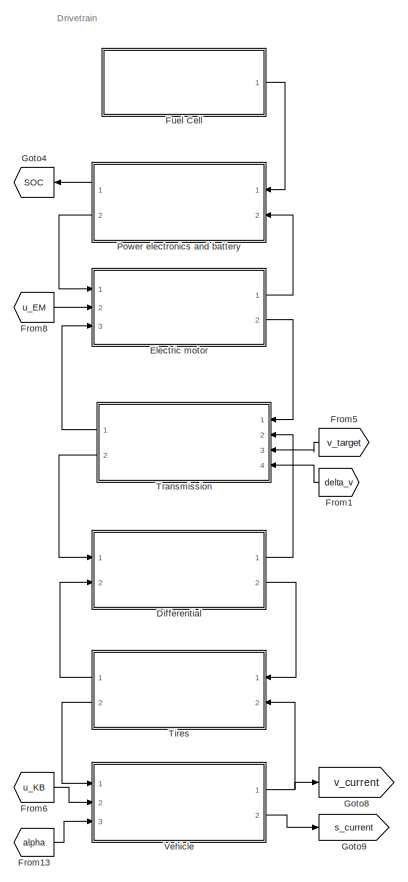
[diagram: root canvas - part 1/2, right side, full height]
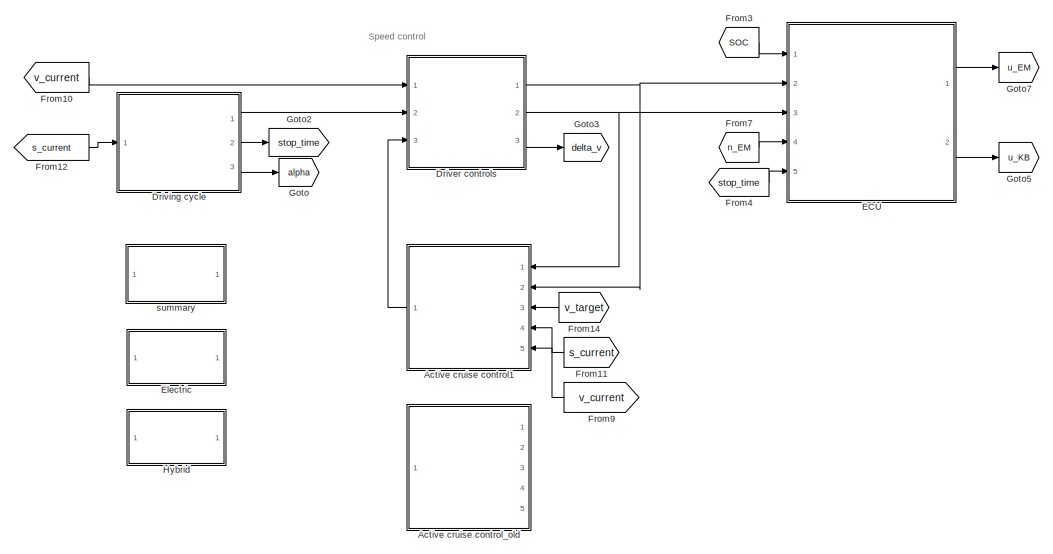
[diagram: root canvas - part 2/2, central region]
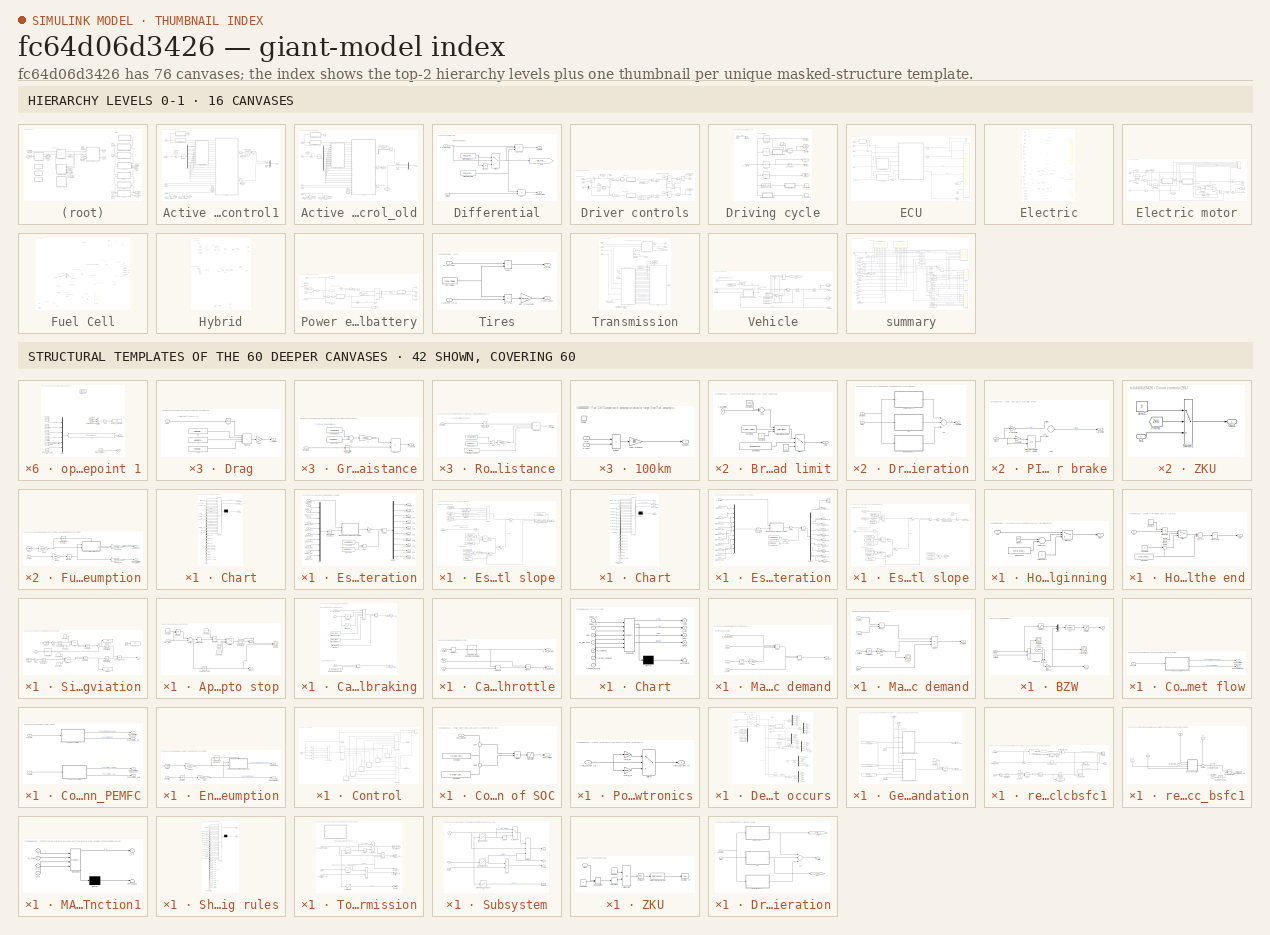
[diagram: thumbnail index - top-2 hierarchy levels (16 canvases) + 42 structural-template representatives of the remaining 60 canvases]
MODEL slx_fc64d06d3426
KIND model
CONFIG AbsTol = auto
CONFIG EnableMultiTasking = on
CONFIG FixedStep = sample_time
CONFIG MaxStep = 0.1
CONFIG MinStep = auto
CONFIG RelTol = 1e-3
CONFIG SampleTimeConstraint = Unconstrained
CONFIG Solver = ode23s
CONFIG SolverName = ode23s
CONFIG StartTime = 0.0
CONFIG StopTime = inf
WORKSPACE source: mxarray member
WORKSPACE Anschaffungskosten = [3707764736 2 1 1 1 1]
WORKSPACE Bat: object (value not decoded)
WORKSPACE DrvTrn = 14
WORKSPACE Eigenschaften = [3707764736 2 1 1 2 2]
WORKSPACE Electric_Truck = 1
WORKSPACE Elektro_LKW = 1
WORKSPACE Factor_EM = 0.2
WORKSPACE Fahrzyklus = 2
WORKSPACE FuelCell: object (value not decoded)
WORKSPACE Fueltype = 13
WORKSPACE Gasart = ''
WORKSPACE Gewichte = [3707764736 2 1 1 3 3]
WORKSPACE Hybrid_LKW = 1
WORKSPACE Hybrid_Truck = 1
WORKSPACE IZ12 = 3600
WORKSPACE Kosten: object (value not decoded)
WORKSPACE Kraftstoff = 13
WORKSPACE M_el = 1000
WORKSPACE Opt_groessen = []
WORKSPACE Parallel = 'no'
WORKSPACE SOC_T_EM_completely_available = 0.5
WORKSPACE SOC_addition = 0.4
WORKSPACE SOC_el = 0.8
WORKSPACE SOC_soll = 0.5
WORKSPACE SOC_target = 0.85
WORKSPACE Sailing_without_drag_torque = 1
WORKSPACE TCO = []
WORKSPACE TCO_Anhaenger = 1
WORKSPACE TCO_Trailer = 1
WORKSPACE T_distance_LPS_down = 250
WORKSPACE T_distance_LPS_up = 250
WORKSPACE Temp1 = [1000 1100 1200 1300 1400 1500 1600 1700 1800 1900 2000 2100 ... (41 elements, 1x41)]
WORKSPACE VSim: object (value not decoded)
WORKSPACE Vehicle = 'FCEV'
WORKSPACE WPT: object (value not decoded)
WORKSPACE acquisitionCosts = []
WORKSPACE acquisition_costs = [3707764736 2 1 1 3 3]
WORKSPACE addition_for_critical_slope = 0.01
WORKSPACE ambient: object (value not decoded)
WORKSPACE auxiliary_consumers: object (value not decoded)
WORKSPACE critical_altitude_difference = 50
WORKSPACE cycle: object (value not decoded)
WORKSPACE dcycle = 21
WORKSPACE distance_1_PPC = 175
WORKSPACE distance_2_PPC = 200
WORKSPACE distance_PPC_altitude_difference = 10000
WORKSPACE driver: object (value not decoded)
WORKSPACE em: object (value not decoded)
WORKSPACE em_M_max = 1563
WORKSPACE engine: object (value not decoded)
WORKSPACE final_drive: object (value not decoded)
WORKSPACE ifElectric = 1
WORKSPACE ifOptimized = 1
WORKSPACE look_ahead_PPC = 250
WORKSPACE max_distance = 100185
WORKSPACE name = 'HDVSim_FCEV_Truck'
WORKSPACE preditiveCruiseControl = 1
WORKSPACE propertie = [3707764736 2 1 1 4 4]
WORKSPACE prospective_cruise_control = 1
WORKSPACE sample_time = 0.1
WORKSPACE tank: object (value not decoded)
WORKSPACE tires: object (value not decoded)
WORKSPACE transmission: object (value not decoded)
WORKSPACE v_PPC_delta = 2.77777777778
WORKSPACE v_max_electrical_drive_only = 13.8888888889
WORKSPACE vehicle: object (value not decoded)
WORKSPACE vehicleProperties = []
WORKSPACE vehicle_F_brake_max = 309890.14
WORKSPACE weights = []
WORKSPACE x = [1600 19 0.1 87.5 10 3.0257 4 0 0 1024 1354 2 ... (14 elements, 1x14)]
BLOCK [SubSystem] Active cruise control1
  Ports = [5, 1]
  RequestExecContextInheritance = off
BLOCK [SubSystem] Active cruise control1/Braking from upper speed limit
  Ports = [1, 1]
  RequestExecContextInheritance = off
BLOCK [Sum] Active cruise control1/Braking from upper speed limit/Add3
  InputSameDT = off
  Inputs = +-
  OutDataTypeStr = Inherit: Inherit via internal rule
  Ports = [2, 1]
  SaturateOnIntegerOverflow = off
BLOCK [Constant] Active cruise control1/Braking from upper speed limit/Constant1
  Value = 90/3.6
BLOCK [Constant] Active cruise control1/Braking from upper speed limit/Constant10
  Value = prospective_cruise_control
BLOCK [Constant] Active cruise control1/Braking from upper speed limit/Constant6
  Value = v_PPC_delta
BLOCK [Constant] Active cruise control1/Braking from upper speed limit/Constant7
  Value = 0
BLOCK [Constant] Active cruise control1/Braking from upper speed limit/Constant8
  Value = 0
BLOCK [Outport] Active cruise control1/Braking from upper speed limit/Out1
  IconDisplay = Port number
  VectorParamsAs1DForOutWhenUnconnected = off
BLOCK [Reference] Active cruise control1/Braking from upper speed limit/Saturation Dynamic  REF=simulink/Discontinuities/Saturation
Dynamic
  Ports = [3, 1]
  SourceBlock = simulink/Discontinuities/Saturation\nDynamic
  SourceProductBaseCode = SL
  SourceType = Saturation Dynamic
BLOCK [Switch] Active cruise control1/Braking from upper speed limit/Switch3
  Criteria = u2 > Threshold
  InputSameDT = off
  SaturateOnIntegerOverflow = off
BLOCK [Inport] Active cruise control1/Braking from upper speed limit/v_target [m//s]
  IconDisplay = Port number
BLOCK [SubSystem] Active cruise control1/Chart
  ErrorFcn = Stateflow.Translate.translate
  PermitHierarchicalResolution = ExplicitOnly
  Ports = [24, 2]
  RequestExecContextInheritance = off
  SFBlockType = Chart
  TreatAsAtomicUnit = on
BLOCK [Demux] Active cruise control1/Chart/ Demux 
  DisplayOption = bar
  Outputs = 1
  Ports = [1, 1]
BLOCK [S-Function] Active cruise control1/Chart/ SFunction 
  EnableBusSupport = off
  FunctionName = sf_sfun
  PortCounts = [24 3]
  Ports = [24, 3]
  SFcnIsStateOwnerBlock = off
  SFunctionDeploymentMode = off
  Tag = Stateflow S-Function 7
BLOCK [Terminator] Active cruise control1/Chart/ Terminator 
BLOCK [Inport] Active cruise control1/Chart/Acceleration_0
  IconDisplay = Port number
  Port = 2
BLOCK [Inport] Active cruise control1/Chart/Acceleration_100
  IconDisplay = Port number
  Port = 4
BLOCK [Inport] Active cruise control1/Chart/Acceleration_150
  IconDisplay = Port number
  Port = 5
BLOCK [Inport] Active cruise control1/Chart/Acceleration_200
  IconDisplay = Port number
  Port = 6
BLOCK [Inport] Active cruise control1/Chart/Acceleration_250
  IconDisplay = Port number
  Port = 7
BLOCK [Inport] Active cruise control1/Chart/Acceleration_300
  IconDisplay = Port number
  Port = 8
BLOCK [Inport] Active cruise control1/Chart/Acceleration_350
  IconDisplay = Port number
  Port = 9
BLOCK [Inport] Active cruise control1/Chart/Acceleration_400
  IconDisplay = Port number
  Port = 10
BLOCK [Inport] Active cruise control1/Chart/Acceleration_450
  IconDisplay = Port number
  Port = 11
BLOCK [Inport] Active cruise control1/Chart/Acceleration_50
  IconDisplay = Port number
  Port = 3
BLOCK [Inport] Active cruise control1/Chart/Distance_covered
  IconDisplay = Port number
  Port = 22
BLOCK [Inport] Active cruise control1/Chart/Distance_covered_2
  IconDisplay = Port number
  Port = 23
BLOCK [Inport] Active cruise control1/Chart/Driver_B
  IconDisplay = Port number
  Port = 21
BLOCK [Inport] Active cruise control1/Chart/Driver_M
  IconDisplay = Port number
  Port = 20
BLOCK [Outport] Active cruise control1/Chart/Signal_decline
  IconDisplay = Port number
  Port = 2
  VectorParamsAs1DForOutWhenUnconnected = off
BLOCK [Outport] Active cruise control1/Chart/Signal_incline
  IconDisplay = Port number
  VectorParamsAs1DForOutWhenUnconnected = off
BLOCK [Inport] Active cruise control1/Chart/critical_incline
  IconDisplay = Port number
BLOCK [Inport] Active cruise control1/Chart/incline_0
  IconDisplay = Port number
  Port = 12
BLOCK [Inport] Active cruise control1/Chart/incline_100
  IconDisplay = Port number
  Port = 13
BLOCK [Inport] Active cruise control1/Chart/incline_200
  IconDisplay = Port number
  Port = 14
BLOCK [Inport] Active cruise control1/Chart/incline_300
  IconDisplay = Port number
  Port = 15
BLOCK [Inport] Active cruise control1/Chart/incline_400
  IconDisplay = Port number
  Port = 16
BLOCK [Inport] Active cruise control1/Chart/incline_500
  IconDisplay = Port number
  Port = 17
BLOCK [Inport] Active cruise control1/Chart/incline_distance_look_ahead_max
  IconDisplay = Port number
  Port = 19
BLOCK [Inport] Active cruise control1/Chart/incline_distance_look_ahead_min
  IconDisplay = Port number
  Port = 18
BLOCK [Inport] Active cruise control1/Chart/v_current
  IconDisplay = Port number
  Port = 24
BLOCK [Constant] Active cruise control1/Constant1
  Value = v_PPC_delta
BLOCK [Constant] Active cruise control1/Constant2
  Value = 0
BLOCK [Constant] Active cruise control1/Constant9
  Value = [0 distance_1_PPC/5 2*distance_1_PPC/5 3*distance_1_PPC/5 4*distance_1_PPC/5 distance_1_PPC 6*distance_1_PPC/5 7*distance_1_PPC/5 8*distance_1_PPC/5 9*distance_1_PPC/5 10*distance_1_PPC/5 look_ahead_PPC look_ahead_PPC+distance_1_PPC]
BLOCK [Demux] Active cruise control1/Demux
  DisplayOption = bar
  Outputs = 13
  Ports = [1, 13]
BLOCK [Inport] Active cruise control1/Driver_B
  IconDisplay = Port number
BLOCK [Inport] Active cruise control1/Driver_M
  IconDisplay = Port number
  Port = 2
BLOCK [SubSystem] Active cruise control1/Estimate acceleration
  Ports = [11, 10]
  RequestExecContextInheritance = off
BLOCK [Outport] Active cruise control1/Estimate acceleration/Acceleration_0
  IconDisplay = Port number
  VectorParamsAs1DForOutWhenUnconnected = off
BLOCK [Outport] Active cruise control1/Estimate acceleration/Acceleration_100
  IconDisplay = Port number
  Port = 3
  VectorParamsAs1DForOutWhenUnconnected = off
BLOCK [Outport] Active cruise control1/Estimate acceleration/Acceleration_150
  IconDisplay = Port number
  Port = 4
  VectorParamsAs1DForOutWhenUnconnected = off
BLOCK [Outport] Active cruise control1/Estimate acceleration/Acceleration_200
  IconDisplay = Port number
  Port = 5
  VectorParamsAs1DForOutWhenUnconnected = off
BLOCK [Outport] Active cruise control1/Estimate acceleration/Acceleration_250
  IconDisplay = Port number
  Port = 6
  VectorParamsAs1DForOutWhenUnconnected = off
BLOCK [Outport] Active cruise control1/Estimate acceleration/Acceleration_300
  IconDisplay = Port number
  Port = 7
  VectorParamsAs1DForOutWhenUnconnected = off
BLOCK [Outport] Active cruise control1/Estimate acceleration/Acceleration_350
  IconDisplay = Port number
  Port = 8
  VectorParamsAs1DForOutWhenUnconnected = off
BLOCK [Outport] Active cruise control1/Estimate acceleration/Acceleration_400
  IconDisplay = Port number
  Port = 9
  VectorParamsAs1DForOutWhenUnconnected = off
BLOCK [Outport] Active cruise control1/Estimate acceleration/Acceleration_450
  IconDisplay = Port number
  Port = 10
  VectorParamsAs1DForOutWhenUnconnected = off
BLOCK [Outport] Active cruise control1/Estimate acceleration/Acceleration_50
  IconDisplay = Port number
  Port = 2
  VectorParamsAs1DForOutWhenUnconnected = off
BLOCK [Sum] Active cruise control1/Estimate acceleration/Add4
  InputSameDT = off
  OutDataTypeStr = Inherit: Inherit via internal rule
  Ports = [2, 1]
  SaturateOnIntegerOverflow = off
BLOCK [Constant] Active cruise control1/Estimate acceleration/Constant4
  Value = vehicle.payload
BLOCK [Constant] Active cruise control1/Estimate acceleration/Constant9
  Value = vehicle.mass
BLOCK [Demux] Active cruise control1/Estimate acceleration/Demux
  DisplayOption = bar
  Outputs = 10
  Ports = [1, 10]
BLOCK [Product] Active cruise control1/Estimate acceleration/Divide1
  InputSameDT = off
  Inputs = */
  OutDataTypeStr = Inherit: Inherit via internal rule
  Ports = [2, 1]
  RndMeth = Floor
  SaturateOnIntegerOverflow = off
BLOCK [SubSystem] Active cruise control1/Estimate acceleration/Driving resistance without acceleration
  Ports = [2, 1]
  RequestExecContextInheritance = off
BLOCK [Sum] Active cruise control1/Estimate acceleration/Driving resistance without acceleration/Add
  InputSameDT = off
  Inputs = +++
  OutDataTypeStr = Inherit: Inherit via internal rule
  Ports = [3, 1]
  SaturateOnIntegerOverflow = off
BLOCK [SubSystem] Active cruise control1/Estimate acceleration/Driving resistance without acceleration/Drag 
  Ports = [1, 1]
  RequestExecContextInheritance = off
BLOCK [Constant] Active cruise control1/Estimate acceleration/Driving resistance without acceleration/Drag /A
  Value = vehicle.frontal_area
BLOCK [Outport] Active cruise control1/Estimate acceleration/Driving resistance without acceleration/Drag /F_drag [N]
  IconDisplay = Port number
  VectorParamsAs1DForOutWhenUnconnected = off
BLOCK [Product] Active cruise control1/Estimate acceleration/Driving resistance without acceleration/Drag /Product2
  InputSameDT = off
  Inputs = 4
  OutDataTypeStr = Inherit: Inherit via internal rule
  Ports = [4, 1]
  SaturateOnIntegerOverflow = off
BLOCK [Constant] Active cruise control1/Estimate acceleration/Driving resistance without acceleration/Drag /c_d
  Value = vehicle.air_drag_coeff(end)
BLOCK [Gain] Active cruise control1/Estimate acceleration/Driving resistance without acceleration/Drag /gain2
  Gain = 0.5
  OutDataTypeStr = Inherit: Inherit via internal rule
  ParamDataTypeStr = Inherit: Inherit via internal rule
  SaturateOnIntegerOverflow = off
BLOCK [Constant] Active cruise control1/Estimate acceleration/Driving resistance without acceleration/Drag /rho
  Value = ambient.air_density
BLOCK [Inport] Active cruise control1/Estimate acceleration/Driving resistance without acceleration/Drag /v [m//s]
  IconDisplay = Port number
BLOCK [Math] Active cruise control1/Estimate acceleration/Driving resistance without acceleration/Drag /v²
  Operator = square
  Ports = [1, 1]
BLOCK [Outport] Active cruise control1/Estimate acceleration/Driving resistance without acceleration/F_x (resist) [N]
  IconDisplay = Port number
  VectorParamsAs1DForOutWhenUnconnected = off
BLOCK [SubSystem] Active cruise control1/Estimate acceleration/Driving resistance without acceleration/Gradient resistance
  Ports = [1, 1]
  RequestExecContextInheritance = off
BLOCK [Sum] Active cruise control1/Estimate acceleration/Driving resistance without acceleration/Gradient resistance/Add
  InputSameDT = off
  OutDataTypeStr = Inherit: Inherit via internal rule
  Ports = [2, 1]
  SaturateOnIntegerOverflow = off
BLOCK [Constant] Active cruise control1/Estimate acceleration/Driving resistance without acceleration/Gradient resistance/Constant1
  Value = vehicle.payload
BLOCK [Constant] Active cruise control1/Estimate acceleration/Driving resistance without acceleration/Gradient resistance/Constant2
  Value = vehicle.mass
BLOCK [Outport] Active cruise control1/Estimate acceleration/Driving resistance without acceleration/Gradient resistance/F_slope [N]
  IconDisplay = Port number
  VectorParamsAs1DForOutWhenUnconnected = off
BLOCK [Product] Active cruise control1/Estimate acceleration/Driving resistance without acceleration/Gradient resistance/Product7
  InputSameDT = off
  OutDataTypeStr = Inherit: Inherit via internal rule
  Ports = [2, 1]
  SaturateOnIntegerOverflow = off
BLOCK [Trigonometry] Active cruise control1/Estimate acceleration/Driving resistance without acceleration/Gradient resistance/Trigonometric Function
  Ports = [1, 1]
BLOCK [Inport] Active cruise control1/Estimate acceleration/Driving resistance without acceleration/Gradient resistance/alpha [rad]
  IconDisplay = Port number
BLOCK [Gain] Active cruise control1/Estimate acceleration/Driving resistance without acceleration/Gradient resistance/g
  Gain = ambient.gravity
  OutDataTypeStr = Inherit: Inherit via internal rule
  ParamDataTypeStr = Inherit: Inherit via internal rule
  SaturateOnIntegerOverflow = off
BLOCK [SubSystem] Active cruise control1/Estimate acceleration/Driving resistance without acceleration/Rolling resistance
  Ports = [1, 1]
  RequestExecContextInheritance = off
BLOCK [Sum] Active cruise control1/Estimate acceleration/Driving resistance without acceleration/Rolling resistance/Add1
  InputSameDT = off
  OutDataTypeStr = Inherit: Inherit via internal rule
  Ports = [2, 1]
  SaturateOnIntegerOverflow = off
BLOCK [Constant] Active cruise control1/Estimate acceleration/Driving resistance without acceleration/Rolling resistance/Constant1
  Value = vehicle.payload
BLOCK [Constant] Active cruise control1/Estimate acceleration/Driving resistance without acceleration/Rolling resistance/Constant5
  Value = tires.roll_drag_coeff.total
BLOCK [Constant] Active cruise control1/Estimate acceleration/Driving resistance without acceleration/Rolling resistance/Constant8
  Value = vehicle.mass
BLOCK [Outport] Active cruise control1/Estimate acceleration/Driving resistance without acceleration/Rolling resistance/F_Roll [N]
  IconDisplay = Port number
  VectorParamsAs1DForOutWhenUnconnected = off
BLOCK [Product] Active cruise control1/Estimate acceleration/Driving resistance without acceleration/Rolling resistance/Product7
  InputSameDT = off
  Inputs = 3
  OutDataTypeStr = Inherit: Inherit via internal rule
  Ports = [3, 1]
  SaturateOnIntegerOverflow = off
BLOCK [Trigonometry] Active cruise control1/Estimate acceleration/Driving resistance without acceleration/Rolling resistance/Trigonometric Function
  Operator = cos
  Ports = [1, 1]
BLOCK [Inport] Active cruise control1/Estimate acceleration/Driving resistance without acceleration/Rolling resistance/alpha [rad]
  IconDisplay = Port number
BLOCK [Gain] Active cruise control1/Estimate acceleration/Driving resistance without acceleration/Rolling resistance/g
  Gain = ambient.gravity
  OutDataTypeStr = Inherit: Inherit via internal rule
  ParamDataTypeStr = Inherit: Inherit via internal rule
  SaturateOnIntegerOverflow = off
BLOCK [Inport] Active cruise control1/Estimate acceleration/Driving resistance without acceleration/alpha [rad]
  IconDisplay = Port number
  Port = 2
BLOCK [Inport] Active cruise control1/Estimate acceleration/Driving resistance without acceleration/v [m//s]
  IconDisplay = Port number
BLOCK [Gain] Active cruise control1/Estimate acceleration/Gain1
  Gain = -1
  OutDataTypeStr = Inherit: Inherit via internal rule
  ParamDataTypeStr = Inherit: Inherit via internal rule
  SaturateOnIntegerOverflow = off
BLOCK [Mux] Active cruise control1/Estimate acceleration/Mux
  DisplayOption = bar
  Inputs = 10
  Ports = [10, 1]
BLOCK [Inport] Active cruise control1/Estimate acceleration/Slope_0
  IconDisplay = Port number
  Port = 2
BLOCK [Inport] Active cruise control1/Estimate acceleration/Slope_100
  IconDisplay = Port number
  Port = 4
BLOCK [Inport] Active cruise control1/Estimate acceleration/Slope_150
  IconDisplay = Port number
  Port = 5
BLOCK [Inport] Active cruise control1/Estimate acceleration/Slope_200
  IconDisplay = Port number
  Port = 6
BLOCK [Inport] Active cruise control1/Estimate acceleration/Slope_250 
  IconDisplay = Port number
  Port = 7
BLOCK [Inport] Active cruise control1/Estimate acceleration/Slope_300
  IconDisplay = Port number
  Port = 8
BLOCK [Inport] Active cruise control1/Estimate acceleration/Slope_350
  IconDisplay = Port number
  Port = 9
BLOCK [Inport] Active cruise control1/Estimate acceleration/Slope_400
  IconDisplay = Port number
  Port = 10
BLOCK [Inport] Active cruise control1/Estimate acceleration/Slope_450
  IconDisplay = Port number
  Port = 11
BLOCK [Inport] Active cruise control1/Estimate acceleration/Slope_50
  IconDisplay = Port number
  Port = 3
BLOCK [Trigonometry] Active cruise control1/Estimate acceleration/Trigonometric Function2
  Operator = atan
  Ports = [1, 1]
BLOCK [Inport] Active cruise control1/Estimate acceleration/v_target [m//s]
  IconDisplay = Port number
BLOCK [SubSystem] Active cruise control1/Estimate critical slope
  Ports = [1, 1]
  RequestExecContextInheritance = off
BLOCK [Constant] Active cruise control1/Estimate critical slope/A
  Value = vehicle.frontal_area
BLOCK [Sum] Active cruise control1/Estimate critical slope/Add
  InputSameDT = off
  OutDataTypeStr = Inherit: Inherit via internal rule
  Ports = [2, 1]
  SaturateOnIntegerOverflow = off
BLOCK [Sum] Active cruise control1/Estimate critical slope/Add1
  InputSameDT = off
  OutDataTypeStr = Inherit: Inherit via internal rule
  Ports = [2, 1]
  SaturateOnIntegerOverflow = off
BLOCK [Constant] Active cruise control1/Estimate critical slope/Constant1
  Value = vehicle.payload
BLOCK [Constant] Active cruise control1/Estimate critical slope/Constant4
  Value = addition_for_critical_slope
BLOCK [Constant] Active cruise control1/Estimate critical slope/Constant5
  Value = tires.roll_drag_coeff.total
BLOCK [Constant] Active cruise control1/Estimate critical slope/Constant8
  Value = vehicle.mass
BLOCK [Constant] Active cruise control1/Estimate critical slope/Differential gear ratio
  Value = final_drive.ratio
BLOCK [Product] Active cruise control1/Estimate critical slope/Divide
  InputSameDT = off
  Inputs = ***/**
  OutDataTypeStr = Inherit: Inherit via internal rule
  Ports = [6, 1]
  RndMeth = Floor
  SaturateOnIntegerOverflow = off
BLOCK [Product] Active cruise control1/Estimate critical slope/Divide1
  InputSameDT = off
  Inputs = */
  OutDataTypeStr = Inherit: Inherit via internal rule
  Ports = [2, 1]
  RndMeth = Floor
  SaturateOnIntegerOverflow = off
BLOCK [From] Active cruise control1/Estimate critical slope/From1
  GotoTag = i_gearbox
  TagVisibility = global
BLOCK [From] Active cruise control1/Estimate critical slope/From2
  GotoTag = Eta_Gear
  TagVisibility = global
BLOCK [From] Active cruise control1/Estimate critical slope/From3
  GotoTag = Eta_axle_drive
  TagVisibility = global
BLOCK [From] Active cruise control1/Estimate critical slope/From4
  GotoTag = M_EM_max
  TagVisibility = global
BLOCK [Product] Active cruise control1/Estimate critical slope/Product
  InputSameDT = off
  OutDataTypeStr = Inherit: Inherit via internal rule
  Ports = [2, 1]
  RndMeth = Floor
  SaturateOnIntegerOverflow = off
BLOCK [Product] Active cruise control1/Estimate critical slope/Product2
  InputSameDT = off
  Inputs = 4
  OutDataTypeStr = Inherit: Inherit via internal rule
  Ports = [4, 1]
  SaturateOnIntegerOverflow = off
BLOCK [Sum] Active cruise control1/Estimate critical slope/Subtract
  InputSameDT = off
  Inputs = +-
  OutDataTypeStr = Inherit: Inherit via internal rule
  Ports = [2, 1]
  SaturateOnIntegerOverflow = off
BLOCK [Sum] Active cruise control1/Estimate critical slope/Sum3
  IconShape = round
  InputSameDT = off
  Inputs = ++|
  OutDataTypeStr = Inherit: Inherit via internal rule
  Ports = [2, 1]
  SaturateOnIntegerOverflow = off
BLOCK [Constant] Active cruise control1/Estimate critical slope/Tire radius
  Value = tires.radius
BLOCK [Trigonometry] Active cruise control1/Estimate critical slope/Trigonometric Function
  Operator = asin
  Ports = [1, 1]
BLOCK [Trigonometry] Active cruise control1/Estimate critical slope/Trigonometric Function1
  Operator = tan
  Ports = [1, 1]
BLOCK [Constant] Active cruise control1/Estimate critical slope/c_d
  Value = vehicle.air_drag_coeff(end)
BLOCK [Outport] Active cruise control1/Estimate critical slope/critical_slope
  IconDisplay = Port number
  VectorParamsAs1DForOutWhenUnconnected = off
BLOCK [Gain] Active cruise control1/Estimate critical slope/g
  Gain = ambient.gravity
  OutDataTypeStr = Inherit: Inherit via internal rule
  ParamDataTypeStr = Inherit: Inherit via internal rule
  SaturateOnIntegerOverflow = off
BLOCK [Gain] Active cruise control1/Estimate critical slope/gain2
  Gain = 0.5
  OutDataTypeStr = Inherit: Inherit via internal rule
  ParamDataTypeStr = Inherit: Inherit via internal rule
  SaturateOnIntegerOverflow = off
BLOCK [Constant] Active cruise control1/Estimate critical slope/rho
  Value = ambient.air_density
BLOCK [Inport] Active cruise control1/Estimate critical slope/v_target [m//s]
  IconDisplay = Port number
BLOCK [Math] Active cruise control1/Estimate critical slope/v²
  Operator = square
  Ports = [1, 1]
BLOCK [From] Active cruise control1/From
  GotoTag = Out1
BLOCK [From] Active cruise control1/From1
  GotoTag = Signal_decline
BLOCK [From] Active cruise control1/From2
  GotoTag = Signal_incline
BLOCK [From] Active cruise control1/From4
  GotoTag = Course
BLOCK [From] Active cruise control1/From5
  GotoTag = Course2
BLOCK [Goto] Active cruise control1/Goto
  GotoTag = Out1
BLOCK [Goto] Active cruise control1/Goto1
  GotoTag = Signal_decline
BLOCK [Goto] Active cruise control1/Goto2
  GotoTag = Signal_incline
BLOCK [Goto] Active cruise control1/Goto4
  GotoTag = Course
BLOCK [Goto] Active cruise control1/Goto5
  GotoTag = Course2
BLOCK [Integrator] Active cruise control1/Integrator
  ExternalReset = rising
  Ports = [2, 1]
BLOCK [Integrator] Active cruise control1/Integrator1
  ExternalReset = rising
  Ports = [2, 1]
BLOCK [Memory] Active cruise control1/Memory
BLOCK [Memory] Active cruise control1/Memory1
BLOCK [Memory] Active cruise control1/Memory2
BLOCK [Mux] Active cruise control1/Mux1
  DisplayOption = bar
  Inputs = 3
  Ports = [3, 1]
BLOCK [Sum] Active cruise control1/Sum3
  IconShape = round
  InputSameDT = off
  Inputs = ++|
  OutDataTypeStr = Inherit: Inherit via internal rule
  Ports = [2, 1]
  SaturateOnIntegerOverflow = off
BLOCK [Switch] Active cruise control1/Switch1
  InputSameDT = off
  SaturateOnIntegerOverflow = off
  Threshold = 1
BLOCK [Inport] Active cruise control1/s_current [m]
  IconDisplay = Port number
  Port = 3
BLOCK [Lookup] Active cruise control1/slope = q(x)
  InputValues = cycle.distance
  LookUpMeth = Interpolation-Use End Values
  SaturateOnIntegerOverflow = off
  Table = cycle.slope
BLOCK [Inport] Active cruise control1/v_current [m//s]
  IconDisplay = Port number
  Port = 4
BLOCK [Inport] Active cruise control1/v_target [m//s]
  IconDisplay = Port number
  Port = 5
BLOCK [Outport] Active cruise control1/v_vT
  IconDisplay = Port number
  VectorParamsAs1DForOutWhenUnconnected = off
BLOCK [SubSystem] Active cruise control_old
  Commented = on
  Ports = [5, 1]
  RequestExecContextInheritance = off
BLOCK [SubSystem] Active cruise control_old/Braking from upper speed limit
  Ports = [1, 1]
  RequestExecContextInheritance = off
BLOCK [Sum] Active cruise control_old/Braking from upper speed limit/Add3
  InputSameDT = off
  Inputs = +-
  OutDataTypeStr = Inherit: Inherit via internal rule
  Ports = [2, 1]
  SaturateOnIntegerOverflow = off
BLOCK [Constant] Active cruise control_old/Braking from upper speed limit/Constant1
  Value = 90/3.6
BLOCK [Constant] Active cruise control_old/Braking from upper speed limit/Constant10
  Value = Vorausschauender_Tempomat
BLOCK [Constant] Active cruise control_old/Braking from upper speed limit/Constant6
  Value = 6/3.6
BLOCK [Constant] Active cruise control_old/Braking from upper speed limit/Constant7
  Value = 0
BLOCK [Constant] Active cruise control_old/Braking from upper speed limit/Constant8
  Value = 0
BLOCK [Outport] Active cruise control_old/Braking from upper speed limit/Out1
  IconDisplay = Port number
  VectorParamsAs1DForOutWhenUnconnected = off
BLOCK [Reference] Active cruise control_old/Braking from upper speed limit/Saturation Dynamic  REF=simulink/Discontinuities/Saturation
Dynamic
  Ports = [3, 1]
  SourceBlock = simulink/Discontinuities/Saturation\nDynamic
  SourceProductBaseCode = SL
  SourceType = Saturation Dynamic
BLOCK [Switch] Active cruise control_old/Braking from upper speed limit/Switch3
  Criteria = u2 > Threshold
  InputSameDT = off
  SaturateOnIntegerOverflow = off
BLOCK [Inport] Active cruise control_old/Braking from upper speed limit/v_soll [m//s]
  IconDisplay = Port number
BLOCK [SubSystem] Active cruise control_old/Chart
  ErrorFcn = Stateflow.Translate.translate
  PermitHierarchicalResolution = ExplicitOnly
  Ports = [22, 3]
  RequestExecContextInheritance = off
  SFBlockType = Chart
  TreatAsAtomicUnit = on
BLOCK [Demux] Active cruise control_old/Chart/ Demux 
  DisplayOption = bar
  Outputs = 1
  Ports = [1, 1]
BLOCK [S-Function] Active cruise control_old/Chart/ SFunction 
  EnableBusSupport = off
  FunctionName = sf_sfun
  Parameters = prospective_cruise_control
  PortCounts = [22 4]
  Ports = [22, 4]
  SFcnIsStateOwnerBlock = off
  SFunctionDeploymentMode = off
  Tag = Stateflow S-Function 2
BLOCK [Terminator] Active cruise control_old/Chart/ Terminator 
BLOCK [Inport] Active cruise control_old/Chart/Beschleunigung_0
  IconDisplay = Port number
  Port = 2
BLOCK [Inport] Active cruise control_old/Chart/Beschleunigung_100
  IconDisplay = Port number
  Port = 4
BLOCK [Inport] Active cruise control_old/Chart/Beschleunigung_150
  IconDisplay = Port number
  Port = 5
BLOCK [Inport] Active cruise control_old/Chart/Beschleunigung_200
  IconDisplay = Port number
  Port = 6
BLOCK [Inport] Active cruise control_old/Chart/Beschleunigung_250
  IconDisplay = Port number
  Port = 7
BLOCK [Inport] Active cruise control_old/Chart/Beschleunigung_300
  IconDisplay = Port number
  Port = 8
BLOCK [Inport] Active cruise control_old/Chart/Beschleunigung_350
  IconDisplay = Port number
  Port = 9
BLOCK [Inport] Active cruise control_old/Chart/Beschleunigung_400
  IconDisplay = Port number
  Port = 10
BLOCK [Inport] Active cruise control_old/Chart/Beschleunigung_450
  IconDisplay = Port number
  Port = 11
BLOCK [Inport] Active cruise control_old/Chart/Beschleunigung_50
  IconDisplay = Port number
  Port = 3
BLOCK [Inport] Active cruise control_old/Chart/Fahrer_B
  IconDisplay = Port number
  Port = 20
BLOCK [Inport] Active cruise control_old/Chart/Fahrer_M
  IconDisplay = Port number
  Port = 19
BLOCK [Inport] Active cruise control_old/Chart/Kritische_Steigung
  IconDisplay = Port number
BLOCK [Outport] Active cruise control_old/Chart/Signal_Gefaelle
  IconDisplay = Port number
  Port = 3
  VectorParamsAs1DForOutWhenUnconnected = off
BLOCK [Outport] Active cruise control_old/Chart/Signal_Steigung
  IconDisplay = Port number
  Port = 2
  VectorParamsAs1DForOutWhenUnconnected = off
BLOCK [Inport] Active cruise control_old/Chart/Steigung_0
  IconDisplay = Port number
  Port = 12
BLOCK [Inport] Active cruise control_old/Chart/Steigung_100
  IconDisplay = Port number
  Port = 14
BLOCK [Inport] Active cruise control_old/Chart/Steigung_250
  IconDisplay = Port number
  Port = 15
BLOCK [Inport] Active cruise control_old/Chart/Steigung_350
  IconDisplay = Port number
  Port = 16
BLOCK [Inport] Active cruise control_old/Chart/Steigung_50
  IconDisplay = Port number
  Port = 13
BLOCK [Inport] Active cruise control_old/Chart/Steigung_500
  IconDisplay = Port number
  Port = 17
BLOCK [Inport] Active cruise control_old/Chart/Steigung_700
  IconDisplay = Port number
  Port = 18
BLOCK [Inport] Active cruise control_old/Chart/Zurueckgelegte_Strecke
  IconDisplay = Port number
  Port = 21
BLOCK [Inport] Active cruise control_old/Chart/Zurueckgelegte_Strecke_2
  IconDisplay = Port number
  Port = 22
BLOCK [Outport] Active cruise control_old/Chart/v_vT
  IconDisplay = Port number
  VectorParamsAs1DForOutWhenUnconnected = off
BLOCK [Constant] Active cruise control_old/Constant9
  Value = [0 50 100 150 200 250 300 350 400 450 500 700]
BLOCK [Demux] Active cruise control_old/Demux
  DisplayOption = bar
  Outputs = 12
  Ports = [1, 12]
BLOCK [SubSystem] Active cruise control_old/Estimate acceleration
  Ports = [11, 10]
  RequestExecContextInheritance = off
BLOCK [Sum] Active cruise control_old/Estimate acceleration/Add4
  InputSameDT = off
  OutDataTypeStr = Inherit: Inherit via internal rule
  Ports = [2, 1]
  SaturateOnIntegerOverflow = off
BLOCK [Outport] Active cruise control_old/Estimate acceleration/Beschleunigung_0
  IconDisplay = Port number
  VectorParamsAs1DForOutWhenUnconnected = off
BLOCK [Outport] Active cruise control_old/Estimate acceleration/Beschleunigung_100
  IconDisplay = Port number
  Port = 3
  VectorParamsAs1DForOutWhenUnconnected = off
BLOCK [Outport] Active cruise control_old/Estimate acceleration/Beschleunigung_150
  IconDisplay = Port number
  Port = 4
  VectorParamsAs1DForOutWhenUnconnected = off
BLOCK [Outport] Active cruise control_old/Estimate acceleration/Beschleunigung_200
  IconDisplay = Port number
  Port = 5
  VectorParamsAs1DForOutWhenUnconnected = off
BLOCK [Outport] Active cruise control_old/Estimate acceleration/Beschleunigung_250
  IconDisplay = Port number
  Port = 6
  VectorParamsAs1DForOutWhenUnconnected = off
BLOCK [Outport] Active cruise control_old/Estimate acceleration/Beschleunigung_300
  IconDisplay = Port number
  Port = 7
  VectorParamsAs1DForOutWhenUnconnected = off
BLOCK [Outport] Active cruise control_old/Estimate acceleration/Beschleunigung_350
  IconDisplay = Port number
  Port = 8
  VectorParamsAs1DForOutWhenUnconnected = off
BLOCK [Outport] Active cruise control_old/Estimate acceleration/Beschleunigung_400
  IconDisplay = Port number
  Port = 9
  VectorParamsAs1DForOutWhenUnconnected = off
BLOCK [Outport] Active cruise control_old/Estimate acceleration/Beschleunigung_450
  IconDisplay = Port number
  Port = 10
  VectorParamsAs1DForOutWhenUnconnected = off
BLOCK [Outport] Active cruise control_old/Estimate acceleration/Beschleunigung_50
  IconDisplay = Port number
  Port = 2
  VectorParamsAs1DForOutWhenUnconnected = off
BLOCK [Constant] Active cruise control_old/Estimate acceleration/Constant4
  Value = vehicle.payload
BLOCK [Constant] Active cruise control_old/Estimate acceleration/Constant9
  Value = vehicle.mass
BLOCK [Demux] Active cruise control_old/Estimate acceleration/Demux
  DisplayOption = bar
  Outputs = 10
  Ports = [1, 10]
BLOCK [Product] Active cruise control_old/Estimate acceleration/Divide1
  InputSameDT = off
  Inputs = */
  OutDataTypeStr = Inherit: Inherit via internal rule
  Ports = [2, 1]
  RndMeth = Floor
  SaturateOnIntegerOverflow = off
BLOCK [SubSystem] Active cruise control_old/Estimate acceleration/Driving resistance without acceleration
  Ports = [2, 1]
  RequestExecContextInheritance = off
BLOCK [Sum] Active cruise control_old/Estimate acceleration/Driving resistance without acceleration/Add
  InputSameDT = off
  Inputs = +++
  OutDataTypeStr = Inherit: Inherit via internal rule
  Ports = [3, 1]
  SaturateOnIntegerOverflow = off
BLOCK [SubSystem] Active cruise control_old/Estimate acceleration/Driving resistance without acceleration/Drag 
  Ports = [1, 1]
  RequestExecContextInheritance = off
BLOCK [Constant] Active cruise control_old/Estimate acceleration/Driving resistance without acceleration/Drag /A
  Value = vehicle.frontal_area
BLOCK [Outport] Active cruise control_old/Estimate acceleration/Driving resistance without acceleration/Drag /F_Luft [N]
  IconDisplay = Port number
  VectorParamsAs1DForOutWhenUnconnected = off
BLOCK [Product] Active cruise control_old/Estimate acceleration/Driving resistance without acceleration/Drag /Product2
  InputSameDT = off
  Inputs = 4
  OutDataTypeStr = Inherit: Inherit via internal rule
  Ports = [4, 1]
  SaturateOnIntegerOverflow = off
BLOCK [Constant] Active cruise control_old/Estimate acceleration/Driving resistance without acceleration/Drag /cW
  Value = vehicle.air_drag_coeff
BLOCK [Gain] Active cruise control_old/Estimate acceleration/Driving resistance without acceleration/Drag /gain2
  Gain = 0.5
  OutDataTypeStr = Inherit: Inherit via internal rule
  ParamDataTypeStr = Inherit: Inherit via internal rule
  SaturateOnIntegerOverflow = off
BLOCK [Constant] Active cruise control_old/Estimate acceleration/Driving resistance without acceleration/Drag /rho
  Value = ambient.air_density
BLOCK [Inport] Active cruise control_old/Estimate acceleration/Driving resistance without acceleration/Drag /v [m//s]
  IconDisplay = Port number
BLOCK [Math] Active cruise control_old/Estimate acceleration/Driving resistance without acceleration/Drag /v²
  Operator = square
  Ports = [1, 1]
BLOCK [Outport] Active cruise control_old/Estimate acceleration/Driving resistance without acceleration/F_x (Widerstand) [N]
  IconDisplay = Port number
  VectorParamsAs1DForOutWhenUnconnected = off
BLOCK [SubSystem] Active cruise control_old/Estimate acceleration/Driving resistance without acceleration/Gradient resistance
  Ports = [1, 1]
  RequestExecContextInheritance = off
BLOCK [Sum] Active cruise control_old/Estimate acceleration/Driving resistance without acceleration/Gradient resistance/Add
  InputSameDT = off
  OutDataTypeStr = Inherit: Inherit via internal rule
  Ports = [2, 1]
  SaturateOnIntegerOverflow = off
BLOCK [Constant] Active cruise control_old/Estimate acceleration/Driving resistance without acceleration/Gradient resistance/Constant1
  Value = vehicle.payload
BLOCK [Constant] Active cruise control_old/Estimate acceleration/Driving resistance without acceleration/Gradient resistance/Constant2
  Value = vehicle.mass
BLOCK [Outport] Active cruise control_old/Estimate acceleration/Driving resistance without acceleration/Gradient resistance/F_Steig [N]
  IconDisplay = Port number
  VectorParamsAs1DForOutWhenUnconnected = off
BLOCK [Product] Active cruise control_old/Estimate acceleration/Driving resistance without acceleration/Gradient resistance/Product7
  InputSameDT = off
  OutDataTypeStr = Inherit: Inherit via internal rule
  Ports = [2, 1]
  SaturateOnIntegerOverflow = off
BLOCK [Trigonometry] Active cruise control_old/Estimate acceleration/Driving resistance without acceleration/Gradient resistance/Trigonometric Function
  Ports = [1, 1]
BLOCK [Inport] Active cruise control_old/Estimate acceleration/Driving resistance without acceleration/Gradient resistance/alpha [rad]
  IconDisplay = Port number
BLOCK [Gain] Active cruise control_old/Estimate acceleration/Driving resistance without acceleration/Gradient resistance/g
  Gain = ambient.gravity
  OutDataTypeStr = Inherit: Inherit via internal rule
  ParamDataTypeStr = Inherit: Inherit via internal rule
  SaturateOnIntegerOverflow = off
BLOCK [SubSystem] Active cruise control_old/Estimate acceleration/Driving resistance without acceleration/Rolling resistance
  Ports = [1, 1]
  RequestExecContextInheritance = off
BLOCK [Sum] Active cruise control_old/Estimate acceleration/Driving resistance without acceleration/Rolling resistance/Add1
  InputSameDT = off
  OutDataTypeStr = Inherit: Inherit via internal rule
  Ports = [2, 1]
  SaturateOnIntegerOverflow = off
BLOCK [Constant] Active cruise control_old/Estimate acceleration/Driving resistance without acceleration/Rolling resistance/Constant1
  Value = vehicle.payload
BLOCK [Constant] Active cruise control_old/Estimate acceleration/Driving resistance without acceleration/Rolling resistance/Constant5
  Value = tires.roll_drag_coeff.total
BLOCK [Constant] Active cruise control_old/Estimate acceleration/Driving resistance without acceleration/Rolling resistance/Constant8
  Value = vehicle.mass
BLOCK [Outport] Active cruise control_old/Estimate acceleration/Driving resistance without acceleration/Rolling resistance/F_Roll [N]
  IconDisplay = Port number
  VectorParamsAs1DForOutWhenUnconnected = off
BLOCK [Product] Active cruise control_old/Estimate acceleration/Driving resistance without acceleration/Rolling resistance/Product7
  InputSameDT = off
  Inputs = 3
  OutDataTypeStr = Inherit: Inherit via internal rule
  Ports = [3, 1]
  SaturateOnIntegerOverflow = off
BLOCK [Trigonometry] Active cruise control_old/Estimate acceleration/Driving resistance without acceleration/Rolling resistance/Trigonometric Function
  Operator = cos
  Ports = [1, 1]
BLOCK [Inport] Active cruise control_old/Estimate acceleration/Driving resistance without acceleration/Rolling resistance/alpha [rad]
  IconDisplay = Port number
BLOCK [Gain] Active cruise control_old/Estimate acceleration/Driving resistance without acceleration/Rolling resistance/g
  Gain = ambient.gravity
  OutDataTypeStr = Inherit: Inherit via internal rule
  ParamDataTypeStr = Inherit: Inherit via internal rule
  SaturateOnIntegerOverflow = off
BLOCK [Inport] Active cruise control_old/Estimate acceleration/Driving resistance without acceleration/alpha [rad]
  IconDisplay = Port number
  Port = 2
BLOCK [Inport] Active cruise control_old/Estimate acceleration/Driving resistance without acceleration/v [m//s]
  IconDisplay = Port number
BLOCK [Gain] Active cruise control_old/Estimate acceleration/Gain1
  Gain = -1
  OutDataTypeStr = Inherit: Inherit via internal rule
  ParamDataTypeStr = Inherit: Inherit via internal rule
  SaturateOnIntegerOverflow = off
BLOCK [Mux] Active cruise control_old/Estimate acceleration/Mux
  DisplayOption = bar
  Inputs = 10
  Ports = [10, 1]
BLOCK [Scope] Active cruise control_old/Estimate acceleration/Scope
  Floating = off
  NumInputPorts = 1
  Ports = [1]
  ScopeSpecificationString = Simulink.scopes.TimeScopeBlockCfg('CurrentConfiguration', extmgr.ConfigurationSet(extmgr.Configuration('Core','General UI',true),extmgr.Configuration('Core','Source UI',true),extmgr.Configuration('Sources','WiredSimulink',true,'DataLoggingVariableName','ScopeData2','DataLoggingSaveFormat','Array','DataLoggingDecimation','1','DataLoggingDecimateData',true),extmgr.Configuration('Visuals','Time Domai...<+1631ch>
BLOCK [Inport] Active cruise control_old/Estimate acceleration/Steigung_0
  IconDisplay = Port number
  Port = 2
BLOCK [Inport] Active cruise control_old/Estimate acceleration/Steigung_100
  IconDisplay = Port number
  Port = 4
BLOCK [Inport] Active cruise control_old/Estimate acceleration/Steigung_150
  IconDisplay = Port number
  Port = 5
BLOCK [Inport] Active cruise control_old/Estimate acceleration/Steigung_200
  IconDisplay = Port number
  Port = 6
BLOCK [Inport] Active cruise control_old/Estimate acceleration/Steigung_250 
  IconDisplay = Port number
  Port = 7
BLOCK [Inport] Active cruise control_old/Estimate acceleration/Steigung_300
  IconDisplay = Port number
  Port = 8
BLOCK [Inport] Active cruise control_old/Estimate acceleration/Steigung_350
  IconDisplay = Port number
  Port = 9
BLOCK [Inport] Active cruise control_old/Estimate acceleration/Steigung_400
  IconDisplay = Port number
  Port = 10
BLOCK [Inport] Active cruise control_old/Estimate acceleration/Steigung_450
  IconDisplay = Port number
  Port = 11
BLOCK [Inport] Active cruise control_old/Estimate acceleration/Steigung_50
  IconDisplay = Port number
  Port = 3
BLOCK [Trigonometry] Active cruise control_old/Estimate acceleration/Trigonometric Function2
  Operator = atan
  Ports = [1, 1]
BLOCK [Inport] Active cruise control_old/Estimate acceleration/v_soll [m//s]
  IconDisplay = Port number
BLOCK [SubSystem] Active cruise control_old/Estimate critical slope
  Ports = [1, 1]
  RequestExecContextInheritance = off
BLOCK [Constant] Active cruise control_old/Estimate critical slope/A
  Value = vehicle.frontal_area
BLOCK [Sum] Active cruise control_old/Estimate critical slope/Add1
  InputSameDT = off
  OutDataTypeStr = Inherit: Inherit via internal rule
  Ports = [2, 1]
  SaturateOnIntegerOverflow = off
BLOCK [Sum] Active cruise control_old/Estimate critical slope/Add2
  Commented = on
  InputSameDT = off
  OutDataTypeStr = Inherit: Inherit via internal rule
  Ports = [2, 1]
  SaturateOnIntegerOverflow = off
BLOCK [Sum] Active cruise control_old/Estimate critical slope/Add3
  InputSameDT = off
  OutDataTypeStr = Inherit: Inherit via internal rule
  Ports = [2, 1]
  SaturateOnIntegerOverflow = off
BLOCK [Constant] Active cruise control_old/Estimate critical slope/Constant1
  Value = vehicle.payload
BLOCK [Constant] Active cruise control_old/Estimate critical slope/Constant2
  Commented = on
  Value = vehicle.payload
BLOCK [Constant] Active cruise control_old/Estimate critical slope/Constant3
  Commented = on
  Value = vehicle.mass
BLOCK [Constant] Active cruise control_old/Estimate critical slope/Constant4
  Value = 0.01
BLOCK [Constant] Active cruise control_old/Estimate critical slope/Constant5
  Value = tires.roll_drag_coeff.total
BLOCK [Constant] Active cruise control_old/Estimate critical slope/Constant8
  Value = vehicle.mass
BLOCK [Constant] Active cruise control_old/Estimate critical slope/Differential gear ratio
  Value = final_drive.ratio
BLOCK [Product] Active cruise control_old/Estimate critical slope/Divide
  InputSameDT = off
  Inputs = ***/
  OutDataTypeStr = Inherit: Inherit via internal rule
  Ports = [4, 1]
  RndMeth = Floor
  SaturateOnIntegerOverflow = off
BLOCK [Product] Active cruise control_old/Estimate critical slope/Divide1
  InputSameDT = off
  Inputs = */
  OutDataTypeStr = Inherit: Inherit via internal rule
  Ports = [2, 1]
  RndMeth = Floor
  SaturateOnIntegerOverflow = off
BLOCK [From] Active cruise control_old/Estimate critical slope/From
  GotoTag = M_EM_max
  TagVisibility = global
BLOCK [From] Active cruise control_old/Estimate critical slope/From1
  GotoTag = i_gearbox
  TagVisibility = global
BLOCK [Gain] Active cruise control_old/Estimate critical slope/Gain
  Gain = 0.95
  OutDataTypeStr = Inherit: Inherit via internal rule
  ParamDataTypeStr = Inherit: Inherit via internal rule
  SaturateOnIntegerOverflow = off
BLOCK [Outport] Active cruise control_old/Estimate critical slope/Kritische Steigung
  IconDisplay = Port number
  VectorParamsAs1DForOutWhenUnconnected = off
BLOCK [Product] Active cruise control_old/Estimate critical slope/Product
  InputSameDT = off
  OutDataTypeStr = Inherit: Inherit via internal rule
  Ports = [2, 1]
  RndMeth = Floor
  SaturateOnIntegerOverflow = off
BLOCK [Product] Active cruise control_old/Estimate critical slope/Product2
  InputSameDT = off
  Inputs = 4
  OutDataTypeStr = Inherit: Inherit via internal rule
  Ports = [4, 1]
  SaturateOnIntegerOverflow = off
BLOCK [Saturate] Active cruise control_old/Estimate critical slope/Saturation
  InputPortMap = u0
  LowerLimit = -1
  Ports = [1, 1]
  UpperLimit = 1
BLOCK [Sum] Active cruise control_old/Estimate critical slope/Subtract
  InputSameDT = off
  Inputs = +-
  OutDataTypeStr = Inherit: Inherit via internal rule
  Ports = [2, 1]
  SaturateOnIntegerOverflow = off
BLOCK [Sum] Active cruise control_old/Estimate critical slope/Sum3
  IconShape = round
  InputSameDT = off
  Inputs = ++|
  OutDataTypeStr = Inherit: Inherit via internal rule
  Ports = [2, 1]
  SaturateOnIntegerOverflow = off
BLOCK [Constant] Active cruise control_old/Estimate critical slope/Tire radius
  Value = tires.radius
BLOCK [Trigonometry] Active cruise control_old/Estimate critical slope/Trigonometric Function
  Operator = asin
  Ports = [1, 1]
BLOCK [Trigonometry] Active cruise control_old/Estimate critical slope/Trigonometric Function1
  Operator = tan
  Ports = [1, 1]
BLOCK [Constant] Active cruise control_old/Estimate critical slope/cW
  Value = vehicle.air_drag_coeff
BLOCK [Gain] Active cruise control_old/Estimate critical slope/g
  Gain = ambient.gravity
  OutDataTypeStr = Inherit: Inherit via internal rule
  ParamDataTypeStr = Inherit: Inherit via internal rule
  SaturateOnIntegerOverflow = off
BLOCK [Gain] Active cruise control_old/Estimate critical slope/g1
  Commented = on
  Gain = ambient.gravity
  OutDataTypeStr = Inherit: Inherit via internal rule
  ParamDataTypeStr = Inherit: Inherit via internal rule
  SaturateOnIntegerOverflow = off
BLOCK [Gain] Active cruise control_old/Estimate critical slope/gain2
  Gain = 0.5
  OutDataTypeStr = Inherit: Inherit via internal rule
  ParamDataTypeStr = Inherit: Inherit via internal rule
  SaturateOnIntegerOverflow = off
BLOCK [Constant] Active cruise control_old/Estimate critical slope/rho
  Value = ambient.air_density
BLOCK [Inport] Active cruise control_old/Estimate critical slope/v_soll [m//s]
  IconDisplay = Port number
BLOCK [Math] Active cruise control_old/Estimate critical slope/v²
  Operator = square
  Ports = [1, 1]
BLOCK [Inport] Active cruise control_old/Fahrer_B
  IconDisplay = Port number
BLOCK [Inport] Active cruise control_old/Fahrer_M
  IconDisplay = Port number
  Port = 2
BLOCK [From] Active cruise control_old/From
  GotoTag = Out1
BLOCK [From] Active cruise control_old/From2
  GotoTag = Signal_Steigung
BLOCK [From] Active cruise control_old/From4
  GotoTag = Strecke
BLOCK [From] Active cruise control_old/From5
  GotoTag = Strecke2
BLOCK [From] Active cruise control_old/From7
  GotoTag = Signal_Gefaelle
BLOCK [Goto] Active cruise control_old/Goto
  GotoTag = Out1
BLOCK [Goto] Active cruise control_old/Goto1
  GotoTag = Signal_Gefaelle
BLOCK [Goto] Active cruise control_old/Goto2
  GotoTag = Signal_Steigung
BLOCK [Goto] Active cruise control_old/Goto4
  GotoTag = Strecke
BLOCK [Goto] Active cruise control_old/Goto5
  GotoTag = Strecke2
BLOCK [Integrator] Active cruise control_old/Integrator
  ExternalReset = rising
  Ports = [2, 1]
BLOCK [Integrator] Active cruise control_old/Integrator1
  ExternalReset = rising
  Ports = [2, 1]
BLOCK [Memory] Active cruise control_old/Memory
BLOCK [Memory] Active cruise control_old/Memory1
BLOCK [Memory] Active cruise control_old/Memory2
BLOCK [Mux] Active cruise control_old/Mux1
  DisplayOption = bar
  Inputs = 3
  Ports = [3, 1]
BLOCK [Sum] Active cruise control_old/Sum3
  IconShape = round
  InputSameDT = off
  Inputs = ++|
  OutDataTypeStr = Inherit: Inherit via internal rule
  Ports = [2, 1]
  SaturateOnIntegerOverflow = off
BLOCK [Switch] Active cruise control_old/Switch
  Criteria = u2 > Threshold
  InputSameDT = off
  SaturateOnIntegerOverflow = off
BLOCK [TransferFcn] Active cruise control_old/Transfer Fcn
  Denominator = [0.25 5 1]
BLOCK [Inport] Active cruise control_old/s_ist [m]
  IconDisplay = Port number
  Port = 5
BLOCK [Lookup] Active cruise control_old/slope = q(x)
  InputValues = cycle.distance
  LookUpMeth = Interpolation-Use End Values
  SaturateOnIntegerOverflow = off
  Table = cycle.slope
BLOCK [Inport] Active cruise control_old/v_ist [m//s]
  IconDisplay = Port number
  Port = 4
BLOCK [Inport] Active cruise control_old/v_soll [m//s]
  IconDisplay = Port number
  Port = 3
BLOCK [Outport] Active cruise control_old/v_vT
  IconDisplay = Port number
  VectorParamsAs1DForOutWhenUnconnected = off
BLOCK [SubSystem] Differential
  Ports = [2, 2]
  RequestExecContextInheritance = off
BLOCK [Constant] Differential/Differential efficiency
  Value = final_drive.trq_eff
BLOCK [Constant] Differential/Differential gear ratio
  Value = final_drive.ratio
BLOCK [Goto] Differential/Goto
  GotoTag = Eta_axle_drive
  TagVisibility = global
BLOCK [Product] Differential/M' = M*i*eta
  InputSameDT = off
  Inputs = ***
  OutDataTypeStr = Inherit: Inherit via internal rule
  Ports = [3, 1]
  RndMeth = Floor
  SaturateOnIntegerOverflow = off
BLOCK [Inport] Differential/M_Gearbox [Nm]
  IconDisplay = Port number
BLOCK [Outport] Differential/M_tire [Nm]
  IconDisplay = Port number
  Port = 2
  VectorParamsAs1DForOutWhenUnconnected = off
BLOCK [Product] Differential/Product
  InputSameDT = off
  Inputs = /
  OutDataTypeStr = Inherit: Inherit via internal rule
  Ports = [1, 1]
  SaturateOnIntegerOverflow = off
BLOCK [Switch] Differential/Switch
  InputSameDT = off
  SaturateOnIntegerOverflow = off
  ZeroCross = off
BLOCK [Product] Differential/n' *i = n
  InputSameDT = off
  OutDataTypeStr = Inherit: Inherit via internal rule
  Ports = [2, 1]
  SaturateOnIntegerOverflow = off
BLOCK [Outport] Differential/n_Gearbox [rpm]
  IconDisplay = Port number
  VectorParamsAs1DForOutWhenUnconnected = off
BLOCK [Inport] Differential/n_tire [rpm]
  IconDisplay = Port number
  Port = 2
BLOCK [SubSystem] Driver controls
  Ports = [3, 3]
  RequestExecContextInheritance = off
BLOCK [Sum] Driver controls/Add2
  InputSameDT = off
  OutDataTypeStr = Inherit: Inherit via internal rule
  Ports = [2, 1]
  SaturateOnIntegerOverflow = off
BLOCK [Saturate] Driver controls/Brake signal
  InputPortMap = u0
  LowerLimit = 0
  Ports = [1, 1]
  UpperLimit = 1
  ZeroCross = off
BLOCK [Constant] Driver controls/Constant2
  Value = 0
BLOCK [Constant] Driver controls/Constant3
  Value = 0
BLOCK [Constant] Driver controls/Constant4
  Value = 7/3.6
BLOCK [Constant] Driver controls/Constant5
  Value = 0
BLOCK [DeadZone] Driver controls/Dead Zone
  LowerValue = -0.1/3.6
  UpperValue = 0.1/3.6
  ZeroCross = off
BLOCK [DeadZone] Driver controls/Dead Zone1
  LowerValue = -0.1/3.6
  UpperValue = 0
  ZeroCross = off
BLOCK [Demux] Driver controls/Demux
  DisplayOption = bar
  Outputs = 3
  Ports = [1, 3]
BLOCK [Product] Driver controls/Divide
  InputSameDT = off
  Inputs = */
  OutDataTypeStr = Inherit: Inherit via internal rule
  Ports = [2, 1]
  RndMeth = Floor
  SaturateOnIntegerOverflow = off
BLOCK [Product] Driver controls/Divide1
  InputSameDT = off
  Inputs = */
  OutDataTypeStr = Inherit: Inherit via internal rule
  Ports = [2, 1]
  RndMeth = Floor
  SaturateOnIntegerOverflow = off
BLOCK [Outport] Driver controls/Driver_B
  IconDisplay = Port number
  Port = 2
  VectorParamsAs1DForOutWhenUnconnected = off
BLOCK [Outport] Driver controls/Driver_M
  IconDisplay = Port number
  VectorParamsAs1DForOutWhenUnconnected = off
BLOCK [Constant] Driver controls/F_break_max
  Value = vehicle.F_brake_max
BLOCK [Constant] Driver controls/Fx_max
  Value = vehicle.Fx_max
BLOCK [Goto] Driver controls/Goto3
  GotoTag = Driver_M
  TagVisibility = global
BLOCK [Goto] Driver controls/Goto4
  GotoTag = Driver_B
  TagVisibility = global
BLOCK [Goto] Driver controls/Goto5
  GotoTag = delta_v
  TagVisibility = global
BLOCK [Memory] Driver controls/Memory
BLOCK [Memory] Driver controls/Memory1
BLOCK [SubSystem] Driver controls/PI controller brake
  Ports = [1, 1]
  RequestExecContextInheritance = off
BLOCK [Sum] Driver controls/PI controller brake/Add
  InputSameDT = off
  OutDataTypeStr = Inherit: Inherit via internal rule
  Ports = [2, 1]
  SaturateOnIntegerOverflow = off
BLOCK [Outport] Driver controls/PI controller brake/F_target [N]
  IconDisplay = Port number
  VectorParamsAs1DForOutWhenUnconnected = off
BLOCK [Gain] Driver controls/PI controller brake/I - controller 
  Gain = driver.controller_integral_gain
  OutDataTypeStr = Inherit: Inherit via internal rule
  ParamDataTypeStr = Inherit: Inherit via internal rule
  SaturateOnIntegerOverflow = off
BLOCK [Integrator] Driver controls/PI controller brake/Integrator, reset for sign change of delta v
  ExternalReset = either
  Ports = [2, 1]
  ZeroCross = off
BLOCK [Gain] Driver controls/PI controller brake/P - controller 
  Gain = driver.controller_proportional_gain
  OutDataTypeStr = Inherit: Inherit via internal rule
  ParamDataTypeStr = Inherit: Inherit via internal rule
  SaturateOnIntegerOverflow = off
BLOCK [Inport] Driver controls/PI controller brake/delta_v
  IconDisplay = Port number
BLOCK [SubSystem] Driver controls/PI controller throttle1
  Ports = [1, 1]
  RequestExecContextInheritance = off
BLOCK [Sum] Driver controls/PI controller throttle1/Add
  InputSameDT = off
  OutDataTypeStr = Inherit: Inherit via internal rule
  Ports = [2, 1]
  SaturateOnIntegerOverflow = off
BLOCK [Outport] Driver controls/PI controller throttle1/F_target [N]
  IconDisplay = Port number
  VectorParamsAs1DForOutWhenUnconnected = off
BLOCK [Gain] Driver controls/PI controller throttle1/I - controller 
  Gain = driver.controller_integral_gain
  OutDataTypeStr = Inherit: Inherit via internal rule
  ParamDataTypeStr = Inherit: Inherit via internal rule
  SaturateOnIntegerOverflow = off
BLOCK [Integrator] Driver controls/PI controller throttle1/Integrator, reset for sign change of delta v
  ExternalReset = either
  Ports = [2, 1]
  ZeroCross = off
BLOCK [Gain] Driver controls/PI controller throttle1/P - controller 
  Gain = driver.controller_proportional_gain
  OutDataTypeStr = Inherit: Inherit via internal rule
  ParamDataTypeStr = Inherit: Inherit via internal rule
  SaturateOnIntegerOverflow = off
BLOCK [Inport] Driver controls/PI controller throttle1/delta_v
  IconDisplay = Port number
BLOCK [RateLimiter] Driver controls/Rate Limiter
  FallingSlewLimit = driver.slew_rate_throttle_out
  RisingSlewLimit = driver.slew_rate_throttle_in
  SampleTimeMode = inherited
BLOCK [RateLimiter] Driver controls/Rate Limiter1
  FallingSlewLimit = driver.slew_rate_brake_out*100
  RisingSlewLimit = driver.slew_rate_brake_in*100
  SampleTimeMode = inherited
BLOCK [Sum] Driver controls/Subtract
  InputSameDT = off
  Inputs = +-
  OutDataTypeStr = Inherit: Inherit via internal rule
  Ports = [2, 1]
  SaturateOnIntegerOverflow = off
BLOCK [Sum] Driver controls/Sum
  IconShape = round
  InputSameDT = off
  Inputs = |-+
  OutDataTypeStr = Inherit: Inherit via internal rule
  Ports = [2, 1]
  SaturateOnIntegerOverflow = off
BLOCK [Sum] Driver controls/Sum1
  IconShape = round
  InputSameDT = off
  Inputs = |++
  OutDataTypeStr = Inherit: Inherit via internal rule
  Ports = [2, 1]
  SaturateOnIntegerOverflow = off
BLOCK [Switch] Driver controls/Switch
  Criteria = u2 > Threshold
  InputSameDT = off
  SaturateOnIntegerOverflow = off
BLOCK [Switch] Driver controls/Switch1
  Criteria = u2 > Threshold
  InputSameDT = off
  SaturateOnIntegerOverflow = off
BLOCK [Switch] Driver controls/Switch2
  Criteria = u2 > Threshold
  InputSameDT = off
  SaturateOnIntegerOverflow = off
BLOCK [Saturate] Driver controls/Throttle signal
  InputPortMap = u0
  LowerLimit = 0
  Ports = [1, 1]
  UpperLimit = 1
  ZeroCross = off
BLOCK [SubSystem] Driver controls/ZKU
  Ports = [1, 1]
  RequestExecContextInheritance = off
BLOCK [From] Driver controls/ZKU/From1
  CloseFcn = tagdialog Close
  GotoTag = ZKU
  TagVisibility = global
BLOCK [Inport] Driver controls/ZKU/In1
  IconDisplay = Port number
BLOCK [Outport] Driver controls/ZKU/Out1
  IconDisplay = Port number
  VectorParamsAs1DForOutWhenUnconnected = off
BLOCK [Switch] Driver controls/ZKU/Switch1
  InputSameDT = off
  SaturateOnIntegerOverflow = off
  Threshold = 1
BLOCK [Constant] Driver controls/ZKU/zero1
  Value = 0
BLOCK [SubSystem] Driver controls/ZKU1
  Ports = [1, 1]
  RequestExecContextInheritance = off
BLOCK [From] Driver controls/ZKU1/From1
  CloseFcn = tagdialog Close
  GotoTag = ZKU
  TagVisibility = global
BLOCK [Inport] Driver controls/ZKU1/In1
  IconDisplay = Port number
BLOCK [Outport] Driver controls/ZKU1/Out1
  IconDisplay = Port number
  VectorParamsAs1DForOutWhenUnconnected = off
BLOCK [Switch] Driver controls/ZKU1/Switch1
  InputSameDT = off
  SaturateOnIntegerOverflow = off
  Threshold = 1
BLOCK [Constant] Driver controls/ZKU1/zero1
  Value = 0
BLOCK [Outport] Driver controls/delta_v
  IconDisplay = Port number
  Port = 3
  VectorParamsAs1DForOutWhenUnconnected = off
BLOCK [Gain] Driver controls/neg.B
  Gain = -1
  OutDataTypeStr = Inherit: Inherit via internal rule
  ParamDataTypeStr = Inherit: Inherit via internal rule
  SaturateOnIntegerOverflow = off
BLOCK [Inport] Driver controls/v_current [m//s]
  IconDisplay = Port number
BLOCK [Inport] Driver controls/v_target [m//s]
  IconDisplay = Port number
  Port = 2
BLOCK [Inport] Driver controls/v_vT
  IconDisplay = Port number
  Port = 3
BLOCK [SubSystem] Driving cycle
  Ports = [1, 3]
  RequestExecContextInheritance = off
BLOCK [Clock] Driving cycle/Clock
BLOCK [Reference] Driving cycle/Compare To Constant  REF=simulink/Logic and Bit
Operations/Compare
To Constant
  Ports = [1, 1]
  SourceBlock = simulink/Logic and Bit\nOperations/Compare\nTo Constant
  SourceProductBaseCode = SL
  SourceType = Compare To Constant
BLOCK [Constant] Driving cycle/Constant
  Value = 0
BLOCK [Goto] Driving cycle/Goto1
  GotoTag = slope_q
  TagVisibility = global
BLOCK [Goto] Driving cycle/Goto2
  GotoTag = v_target
  TagVisibility = global
BLOCK [Goto] Driving cycle/Goto3
  GotoTag = altitude
  TagVisibility = global
BLOCK [SubSystem] Driving cycle/Holding time at the beginning
  Ports = [1, 1]
  RequestExecContextInheritance = off
BLOCK [Clock] Driving cycle/Holding time at the beginning/Clock2
BLOCK [Constant] Driving cycle/Holding time at the beginning/Constant3
  Value = cycle.stop_start
BLOCK [Constant] Driving cycle/Holding time at the beginning/Constant4
  Value = 0
BLOCK [Inport] Driving cycle/Holding time at the beginning/In1
  IconDisplay = Port number
BLOCK [Outport] Driving cycle/Holding time at the beginning/Out1
  IconDisplay = Port number
  VectorParamsAs1DForOutWhenUnconnected = off
BLOCK [Sum] Driving cycle/Holding time at the beginning/Subtract1
  InputSameDT = off
  Inputs = +-
  OutDataTypeStr = Inherit: Inherit via internal rule
  Ports = [2, 1]
  SaturateOnIntegerOverflow = off
BLOCK [Switch] Driving cycle/Holding time at the beginning/Switch1
  InputSameDT = off
  SaturateOnIntegerOverflow = off
BLOCK [SubSystem] Driving cycle/Holding time at the end
  Ports = [1, 1]
  RequestExecContextInheritance = off
BLOCK [Clock] Driving cycle/Holding time at the end/Clock1
BLOCK [Constant] Driving cycle/Holding time at the end/Constant
BLOCK [Constant] Driving cycle/Holding time at the end/Constant1
  Value = cycle.stop_end
BLOCK [Constant] Driving cycle/Holding time at the end/Constant2
BLOCK [HitCross] Driving cycle/Holding time at the end/Hit Crossing
  HitCrossingDirection = rising
  Ports = [1, 1]
BLOCK [Inport] Driving cycle/Holding time at the end/In1
  IconDisplay = Port number
BLOCK [Integrator] Driving cycle/Holding time at the end/Integrator
  ExternalReset = rising
  Ports = [2, 1]
BLOCK [Outport] Driving cycle/Holding time at the end/Out1
  IconDisplay = Port number
  VectorParamsAs1DForOutWhenUnconnected = off
BLOCK [Sum] Driving cycle/Holding time at the end/Subtract
  InputSameDT = off
  Inputs = +-
  OutDataTypeStr = Inherit: Inherit via internal rule
  Ports = [2, 1]
  SaturateOnIntegerOverflow = off
BLOCK [Sum] Driving cycle/Holding time at the end/Sum1
  IconShape = round
  InputSameDT = off
  Inputs = |++
  OutDataTypeStr = Inherit: Inherit via internal rule
  Ports = [2, 1]
  SaturateOnIntegerOverflow = off
BLOCK [Switch] Driving cycle/Holding time at the end/Switch
  Criteria = u2 > Threshold
  InputSameDT = off
  SaturateOnIntegerOverflow = off
  Threshold = cycle.stop_end
BLOCK [SubSystem] Driving cycle/Significant speed deviation
  Ports = [1, 1]
  RequestExecContextInheritance = off
BLOCK [Clock] Driving cycle/Significant speed deviation/Clock
BLOCK [Reference] Driving cycle/Significant speed deviation/Compare To Constant  REF=simulink/Logic and Bit
Operations/Compare
To Constant
  Ports = [1, 1]
  SourceBlock = simulink/Logic and Bit\nOperations/Compare\nTo Constant
  SourceProductBaseCode = SL
  SourceType = Compare To Constant
BLOCK [Reference] Driving cycle/Significant speed deviation/Compare To Constant1  REF=simulink/Logic and Bit
Operations/Compare
To Constant
  Ports = [1, 1]
  SourceBlock = simulink/Logic and Bit\nOperations/Compare\nTo Constant
  SourceProductBaseCode = SL
  SourceType = Compare To Constant
BLOCK [Reference] Driving cycle/Significant speed deviation/Compare To Constant2  REF=simulink/Logic and Bit
Operations/Compare
To Constant
  Ports = [1, 1]
  SourceBlock = simulink/Logic and Bit\nOperations/Compare\nTo Constant
  SourceProductBaseCode = SL
  SourceType = Compare To Constant
BLOCK [Reference] Driving cycle/Significant speed deviation/Compare To Constant3  REF=simulink/Logic and Bit
Operations/Compare
To Constant
  Ports = [1, 1]
  SourceBlock = simulink/Logic and Bit\nOperations/Compare\nTo Constant
  SourceProductBaseCode = SL
  SourceType = Compare To Constant
BLOCK [Constant] Driving cycle/Significant speed deviation/Constant
BLOCK [Constant] Driving cycle/Significant speed deviation/Constant1
  Value = 0
BLOCK [Constant] Driving cycle/Significant speed deviation/Constant2
BLOCK [Constant] Driving cycle/Significant speed deviation/Constant3
  Value = 0
BLOCK [Display] Driving cycle/Significant speed deviation/Display
  Decimation = 1
  Ports = [1]
BLOCK [Display] Driving cycle/Significant speed deviation/Display1
  Decimation = 1
  Ports = [1]
BLOCK [Display] Driving cycle/Significant speed deviation/Display2
  Decimation = 1
  Ports = [1]
BLOCK [From] Driving cycle/Significant speed deviation/From
  GotoTag = delta_v
  TagVisibility = global
BLOCK [From] Driving cycle/Significant speed deviation/From1
  GotoTag = v_current1
  TagVisibility = global
BLOCK [Gain] Driving cycle/Significant speed deviation/Gain
  Gain = 3.6
  OutDataTypeStr = Inherit: Inherit via internal rule
  ParamDataTypeStr = Inherit: Inherit via internal rule
  SaturateOnIntegerOverflow = off
BLOCK [Gain] Driving cycle/Significant speed deviation/Gain1
  Gain = 3.6
  OutDataTypeStr = Inherit: Inherit via internal rule
  ParamDataTypeStr = Inherit: Inherit via internal rule
  SaturateOnIntegerOverflow = off
BLOCK [Inport] Driving cycle/Significant speed deviation/In1
  IconDisplay = Port number
BLOCK [Integrator] Driving cycle/Significant speed deviation/Integrator1
  ExternalReset = either
  Ports = [2, 1]
BLOCK [Integrator] Driving cycle/Significant speed deviation/Integrator2
  ExternalReset = either
  Ports = [2, 1]
BLOCK [Logic] Driving cycle/Significant speed deviation/Logical Operator
  AllPortsSameDT = off
  Operator = OR
  OutDataTypeStr = boolean
  Ports = [2, 1]
BLOCK [Outport] Driving cycle/Significant speed deviation/Out1
  IconDisplay = Port number
  VectorParamsAs1DForOutWhenUnconnected = off
BLOCK [Sum] Driving cycle/Significant speed deviation/Sum
  IconShape = round
  InputSameDT = off
  Inputs = |+-
  OutDataTypeStr = Inherit: Inherit via internal rule
  Ports = [2, 1]
  SaturateOnIntegerOverflow = off
BLOCK [Switch] Driving cycle/Significant speed deviation/Switch
  Criteria = u2 > Threshold
  InputSameDT = off
  SaturateOnIntegerOverflow = off
BLOCK [Switch] Driving cycle/Significant speed deviation/Switch1
  Criteria = u2 > Threshold
  InputSameDT = off
  SaturateOnIntegerOverflow = off
BLOCK [Lookup_n-D] Driving cycle/Significant speed deviation/stop_time
  BreakpointsForDimension1 = cycle.distance
  InterpMethod = Flat
  NumberOfTableDimensions = 1
  Ports = [1, 1]
  RndMeth = Simplest
  Table = cycle.stop_time
BLOCK [Stop] Driving cycle/Stop Simulation
BLOCK [Stop] Driving cycle/Stop Simulation 2
BLOCK [Switch] Driving cycle/Switch
  Criteria = u2 > Threshold
  InputSameDT = off
  SaturateOnIntegerOverflow = off
BLOCK [Terminator] Driving cycle/Terminator
BLOCK [Outport] Driving cycle/alpha [rad]
  IconDisplay = Port number
  Port = 3
  VectorParamsAs1DForOutWhenUnconnected = off
BLOCK [Lookup_n-D] Driving cycle/altitude
  BreakpointsForDimension1 = cycle.distance
  InterpMethod = Flat
  NumberOfTableDimensions = 1
  Ports = [1, 1]
  RndMeth = Simplest
  Table = cycle.altitude
BLOCK [Inport] Driving cycle/s_current [m]
  IconDisplay = Port number
BLOCK [Lookup_n-D] Driving cycle/slope
  BreakpointsForDimension1 = cycle.distance
  InterpMethod = Flat
  NumberOfTableDimensions = 1
  Ports = [1, 1]
  RndMeth = Simplest
  Table = cycle.slope
BLOCK [Trigonometry] Driving cycle/slope-> angle
  Operator = atan
  Ports = [1, 1]
BLOCK [Lookup_n-D] Driving cycle/speed
  BreakpointsForDimension1 = cycle.distance
  InterpMethod = Flat
  NumberOfTableDimensions = 1
  Ports = [1, 1]
  RndMeth = Simplest
  Table = cycle.speed
BLOCK [Lookup_n-D] Driving cycle/stop_time
  BreakpointsForDimension1 = cycle.distance
  InterpMethod = Flat
  NumberOfTableDimensions = 1
  Ports = [1, 1]
  RndMeth = Simplest
  Table = cycle.stop_time
BLOCK [Outport] Driving cycle/stop_time [s]
  IconDisplay = Port number
  Port = 2
  VectorParamsAs1DForOutWhenUnconnected = off
BLOCK [Outport] Driving cycle/v_target [m//s]
  IconDisplay = Port number
  VectorParamsAs1DForOutWhenUnconnected = off
BLOCK [SubSystem] ECU
  Ports = [5, 2]
  RequestExecContextInheritance = off
BLOCK [SubSystem] ECU/Approach to stop
  Ports = [1, 2]
  RequestExecContextInheritance = off
BLOCK [Clock] ECU/Approach to stop/Clock
BLOCK [Reference] ECU/Approach to stop/Compare To Constant1  REF=simulink/Logic and Bit
Operations/Compare
To Constant
  Ports = [1, 1]
  SourceBlock = simulink/Logic and Bit\nOperations/Compare\nTo Constant
  SourceProductBaseCode = SL
  SourceType = Compare To Constant
BLOCK [Reference] ECU/Approach to stop/Compare To Zero  REF=simulink/Logic and Bit
Operations/Compare
To Zero
  Ports = [1, 1]
  SourceBlock = simulink/Logic and Bit\nOperations/Compare\nTo Zero
  SourceProductBaseCode = SL
  SourceType = Compare To Zero
BLOCK [Constant] ECU/Approach to stop/Constant
BLOCK [Constant] ECU/Approach to stop/Constant1
  Value = 3.1
BLOCK [Constant] ECU/Approach to stop/Constant2
BLOCK [Outport] ECU/Approach to stop/Driver_B
  IconDisplay = Port number
  Port = 2
  VectorParamsAs1DForOutWhenUnconnected = off
BLOCK [Outport] ECU/Approach to stop/Driver_M
  IconDisplay = Port number
  VectorParamsAs1DForOutWhenUnconnected = off
BLOCK [HitCross] ECU/Approach to stop/Hit Crossing
  HitCrossingDirection = rising
  Ports = [1, 1]
BLOCK [Integrator] ECU/Approach to stop/Integrator
  ExternalReset = rising
  InitialCondition = 0.001
  Ports = [2, 1]
BLOCK [Integrator] ECU/Approach to stop/Integrator1
  ExternalReset = rising
  Ports = [2, 1]
BLOCK [Scope] ECU/Approach to stop/Scope
  Floating = off
  NumInputPorts = 2
  Ports = [2]
  ScopeSpecificationString = Simulink.scopes.TimeScopeBlockCfg('CurrentConfiguration', extmgr.ConfigurationSet(extmgr.Configuration('Core','General UI',true),extmgr.Configuration('Core','Source UI',true),extmgr.Configuration('Sources','WiredSimulink',true,'DataLoggingVariableName','ScopeData27','DataLoggingSaveFormat','Array','DataLoggingDecimation','1','DataLoggingDecimateData',true),extmgr.Configuration('Visuals','Time Doma...<+2355ch>
BLOCK [Sum] ECU/Approach to stop/Subtract
  InputSameDT = off
  Inputs = +-
  OutDataTypeStr = Inherit: Inherit via internal rule
  Ports = [2, 1]
  SaturateOnIntegerOverflow = off
BLOCK [Switch] ECU/Approach to stop/Switch
  Criteria = u2 > Threshold
  InputSameDT = off
  SaturateOnIntegerOverflow = off
  Threshold = 3
BLOCK [Inport] ECU/Approach to stop/stop_time [s]
  IconDisplay = Port number
BLOCK [SubSystem] ECU/Calculations for braking
  Ports = [3, 2]
  RequestExecContextInheritance = off
BLOCK [Constant] ECU/Calculations for braking/Differential efficiency
  Value = final_drive.trq_eff
BLOCK [Constant] ECU/Calculations for braking/Differential gear ratio
  Value = final_drive.ratio
BLOCK [Product] ECU/Calculations for braking/Divide
  InputSameDT = off
  Inputs = */
  OutDataTypeStr = Inherit: Inherit via internal rule
  Ports = [2, 1]
  RndMeth = Floor
  SaturateOnIntegerOverflow = off
BLOCK [Product] ECU/Calculations for braking/Divide1
  InputSameDT = off
  Inputs = **/*/
  OutDataTypeStr = Inherit: Inherit via internal rule
  Ports = [5, 1]
  RndMeth = Floor
  SaturateOnIntegerOverflow = off
BLOCK [Inport] ECU/Calculations for braking/Driver_B
  IconDisplay = Port number
  Port = 2
BLOCK [Lookup] ECU/Calculations for braking/Efficiencies
  InputValues = [1:length(transmission.ratios)]
  LookUpMeth = Use Input Nearest
  SaturateOnIntegerOverflow = off
  Table = transmission.trq_eff
BLOCK [Outport] ECU/Calculations for braking/F_brake_elec_max [N]
  IconDisplay = Port number
  Port = 2
  VectorParamsAs1DForOutWhenUnconnected = off
BLOCK [Outport] ECU/Calculations for braking/F_brake_required [N]
  IconDisplay = Port number
  VectorParamsAs1DForOutWhenUnconnected = off
BLOCK [Inport] ECU/Calculations for braking/Gear
  IconDisplay = Port number
  Port = 3
BLOCK [Lookup] ECU/Calculations for braking/Gearing
  InputValues = [1:length(transmission.ratios)]
  LookUpMeth = Use Input Nearest
  SaturateOnIntegerOverflow = off
  Table = transmission.ratios
BLOCK [Inport] ECU/Calculations for braking/M_EM_max [Nm]
  IconDisplay = Port number
BLOCK [Constant] ECU/Calculations for braking/Maximum breaking force [N]
  Value = vehicle.F_brake_max
BLOCK [Product] ECU/Calculations for braking/Product
  InputSameDT = off
  OutDataTypeStr = Inherit: Inherit via internal rule
  Ports = [2, 1]
  RndMeth = Floor
  SaturateOnIntegerOverflow = off
BLOCK [Constant] ECU/Calculations for braking/Tire radius
  Value = tires.radius
BLOCK [SubSystem] ECU/Calculations for throttle
  Ports = [3, 2]
  RequestExecContextInheritance = off
BLOCK [Inport] ECU/Calculations for throttle/Driver_M
  IconDisplay = Port number
BLOCK [Lookup_n-D] ECU/Calculations for throttle/Electrical machine speed-torque characteristics
  BreakpointsForDimension1 = em.speed
  ExtrapMethod = Clip
  NumberOfTableDimensions = 1
  Ports = [1, 1]
  RndMeth = Simplest
  Table = em.trq
BLOCK [Outport] ECU/Calculations for throttle/M_EM_max [Nm]
  IconDisplay = Port number
  VectorParamsAs1DForOutWhenUnconnected = off
BLOCK [Outport] ECU/Calculations for throttle/M_Required [Nm]
  IconDisplay = Port number
  Port = 2
  VectorParamsAs1DForOutWhenUnconnected = off
BLOCK [Memory] ECU/Calculations for throttle/Memory1
BLOCK [Product] ECU/Calculations for throttle/Product
  InputSameDT = off
  OutDataTypeStr = Inherit: Inherit via internal rule
  Ports = [2, 1]
  RndMeth = Floor
  SaturateOnIntegerOverflow = off
BLOCK [Product] ECU/Calculations for throttle/Product1
  InputSameDT = off
  OutDataTypeStr = Inherit: Inherit via internal rule
  Ports = [2, 1]
  RndMeth = Floor
  SaturateOnIntegerOverflow = off
BLOCK [Inport] ECU/Calculations for throttle/SOC
  IconDisplay = Port number
  Port = 2
BLOCK [Inport] ECU/Calculations for throttle/n_EM [rpm]
  IconDisplay = Port number
  Port = 3
BLOCK [SubSystem] ECU/Chart
  ErrorFcn = Stateflow.Translate.translate
  PermitHierarchicalResolution = ExplicitOnly
  Ports = [7, 4]
  RequestExecContextInheritance = off
  SFBlockType = Chart
  TreatAsAtomicUnit = on
BLOCK [Demux] ECU/Chart/ Demux 
  DisplayOption = bar
  Outputs = 1
  Ports = [1, 1]
BLOCK [S-Function] ECU/Chart/ SFunction 
  EnableBusSupport = off
  FunctionName = sf_sfun
  Parameters = Factor_EM,Hybrid_Truck,SOC_target,em.M_max
  PortCounts = [7 5]
  Ports = [7, 5]
  SFcnIsStateOwnerBlock = off
  SFunctionDeploymentMode = off
  Tag = Stateflow S-Function 1
BLOCK [Terminator] ECU/Chart/ Terminator 
BLOCK [Inport] ECU/Chart/Driver_B
  IconDisplay = Port number
  Port = 2
BLOCK [Inport] ECU/Chart/Driver_M
  IconDisplay = Port number
BLOCK [Inport] ECU/Chart/F_brake_el_max
  IconDisplay = Port number
  Port = 7
BLOCK [Inport] ECU/Chart/F_brake_required
  IconDisplay = Port number
  Port = 6
BLOCK [Inport] ECU/Chart/M_EM_max
  IconDisplay = Port number
  Port = 4
BLOCK [Inport] ECU/Chart/M_required
  IconDisplay = Port number
  Port = 5
BLOCK [Outport] ECU/Chart/REKUP
  IconDisplay = Port number
  Port = 4
  VectorParamsAs1DForOutWhenUnconnected = off
BLOCK [Outport] ECU/Chart/ROLL
  IconDisplay = Port number
  Port = 3
  VectorParamsAs1DForOutWhenUnconnected = off
BLOCK [Inport] ECU/Chart/SOC
  IconDisplay = Port number
  Port = 3
BLOCK [Outport] ECU/Chart/u_EM
  IconDisplay = Port number
  VectorParamsAs1DForOutWhenUnconnected = off
BLOCK [Outport] ECU/Chart/u_KB
  IconDisplay = Port number
  Port = 2
  VectorParamsAs1DForOutWhenUnconnected = off
BLOCK [Inport] ECU/Driver_B
  IconDisplay = Port number
  Port = 3
BLOCK [Inport] ECU/Driver_M
  IconDisplay = Port number
  Port = 2
BLOCK [From] ECU/From2
  GotoTag = SOC
  TagVisibility = global
BLOCK [From] ECU/From6
  GotoTag = slope_q
  TagVisibility = global
BLOCK [From] ECU/Gear
  GotoTag = gear
  TagVisibility = global
BLOCK [Goto] ECU/Goto2
  GotoTag = REKUP
  TagVisibility = global
BLOCK [Inport] ECU/SOC
  IconDisplay = Port number
BLOCK [Saturate] ECU/Saturation
  InputPortMap = u0
  LowerLimit = -1
  Ports = [1, 1]
  UpperLimit = 1
BLOCK [Saturate] ECU/Saturation1
  InputPortMap = u0
  LowerLimit = -vehicle.Fx_max
  Ports = [1, 1]
  UpperLimit = vehicle.Fx_max
BLOCK [Saturate] ECU/Saturation2
  InputPortMap = u0
  LowerLimit = 0
  Ports = [1, 1]
  UpperLimit = 1
BLOCK [Scope] ECU/Scope
  Floating = off
  NumInputPorts = 6
  Ports = [6]
  ScopeSpecificationString = Simulink.scopes.TimeScopeBlockCfg('CurrentConfiguration', extmgr.ConfigurationSet(extmgr.Configuration('Core','General UI',true),extmgr.Configuration('Core','Source UI',true),extmgr.Configuration('Sources','WiredSimulink',true,'DataLoggingVariableName','ScopeData10','DataLoggingSaveFormat','StructureWithTime','DataLoggingDecimation','1','DataLoggingDecimateData',true),extmgr.Configuration('Visuals...<+6361ch>
BLOCK [Sum] ECU/Sum
  IconShape = round
  InputSameDT = off
  Inputs = ++|
  OutDataTypeStr = Inherit: Inherit via internal rule
  Ports = [2, 1]
  SaturateOnIntegerOverflow = off
BLOCK [Sum] ECU/Sum1
  IconShape = round
  InputSameDT = off
  Inputs = ++|
  OutDataTypeStr = Inherit: Inherit via internal rule
  Ports = [2, 1]
  SaturateOnIntegerOverflow = off
BLOCK [Inport] ECU/n_EM [rpm]
  IconDisplay = Port number
  Port = 4
BLOCK [Inport] ECU/stop_time [s]
  IconDisplay = Port number
  Port = 5
BLOCK [Outport] ECU/u_EM
  IconDisplay = Port number
  VectorParamsAs1DForOutWhenUnconnected = off
BLOCK [Outport] ECU/u_KB
  IconDisplay = Port number
  Port = 2
  VectorParamsAs1DForOutWhenUnconnected = off
BLOCK [SubSystem] Electric
  Ports = []
  RequestExecContextInheritance = off
BLOCK [SubSystem] Electric motor
  Ports = [3, 2]
  RequestExecContextInheritance = off
BLOCK [Abs] Electric motor/Abs
  SaturateOnIntegerOverflow = off
BLOCK [Abs] Electric motor/Abs1
  SaturateOnIntegerOverflow = off
BLOCK [Product] Electric motor/Divide
  InputSameDT = off
  Inputs = */
  OutDataTypeStr = Inherit: Inherit via internal rule
  Ports = [2, 1]
  RndMeth = Floor
  SaturateOnIntegerOverflow = off
BLOCK [Scope] Electric motor/E Maschine
  Floating = off
  NumInputPorts = 6
  Ports = [6]
  ScopeSpecificationString = Simulink.scopes.TimeScopeBlockCfg('CurrentConfiguration', extmgr.ConfigurationSet(extmgr.Configuration('Core','General UI',true),extmgr.Configuration('Core','Source UI',true),extmgr.Configuration('Sources','WiredSimulink',true,'DataLoggingSaveFormat','StructureWithTime','DataLoggingDecimation','1','DataLoggingDecimateData',true,'DataLogging',true,'DataLoggingVariableName','EM_summary'),extmgr.Conf...<+5204ch>
BLOCK [Lookup_n-D] Electric motor/Electric machine efficiency mapping
  BreakpointsForDimension1 = em.efficiency.torque
  BreakpointsForDimension2 = em. efficiency.speed
  Ports = [2, 1]
  RndMeth = Simplest
  Table = em.efficiency.characteristic_map
BLOCK [Lookup_n-D] Electric motor/Electric machine efficiency mapping2
  BeginIndexSearchUsingPreviousIndexResult = on
  BreakpointsForDimension1 = em.efficiency.torque
  BreakpointsForDimension2 = em. efficiency.speed
  ExtrapMethod = Clip
  Ports = [2, 1]
  RndMeth = Simplest
  Table = em.efficiency.characteristic_map
  UseLastTableValue = on
BLOCK [Gain] Electric motor/Gain
  Gain = 2*pi/60
  OutDataTypeStr = Inherit: Inherit via internal rule
  ParamDataTypeStr = Inherit: Inherit via internal rule
  SaturateOnIntegerOverflow = off
BLOCK [Goto] Electric motor/Goto
  GotoTag = M_EM
  TagVisibility = global
BLOCK [Goto] Electric motor/Goto1
  GotoTag = n_EM
  TagVisibility = global
BLOCK [Goto] Electric motor/Goto2
  GotoTag = u_EM
  TagVisibility = global
BLOCK [Goto] Electric motor/Goto3
  GotoTag = M_EM_max
  TagVisibility = global
BLOCK [Goto] Electric motor/Goto4
  GotoTag = ETA_EM
  TagVisibility = global
BLOCK [Goto] Electric motor/Goto5
  GotoTag = I_EM_current
  TagVisibility = global
BLOCK [Outport] Electric motor/I_EM_current [A]
  IconDisplay = Port number
  VectorParamsAs1DForOutWhenUnconnected = off
BLOCK [Outport] Electric motor/M_EM [Nm]
  IconDisplay = Port number
  Port = 2
  VectorParamsAs1DForOutWhenUnconnected = off
BLOCK [SubSystem] Electric motor/Machine current demand
  Ports = [4, 1]
  RequestExecContextInheritance = off
BLOCK [Product] Electric motor/Machine current demand/Divide
  InputSameDT = off
  Inputs = */*
  OutDataTypeStr = Inherit: Inherit via internal rule
  Ports = [3, 1]
  RndMeth = Floor
  SaturateOnIntegerOverflow = off
BLOCK [Product] Electric motor/Machine current demand/Divide1
  InputSameDT = off
  Inputs = */
  OutDataTypeStr = Inherit: Inherit via internal rule
  Ports = [2, 1]
  RndMeth = Floor
  SaturateOnIntegerOverflow = off
BLOCK [Inport] Electric motor/Machine current demand/Eff_EM
  IconDisplay = Port number
  Port = 3
BLOCK [Gain] Electric motor/Machine current demand/Gain
  Gain = 2*pi/60
  OutDataTypeStr = Inherit: Inherit via internal rule
  ParamDataTypeStr = Inherit: Inherit via internal rule
  SaturateOnIntegerOverflow = off
BLOCK [Outport] Electric motor/Machine current demand/I_target [A]
  IconDisplay = Port number
  VectorParamsAs1DForOutWhenUnconnected = off
BLOCK [Inport] Electric motor/Machine current demand/M_EM_target [Nm]
  IconDisplay = Port number
  Port = 2
BLOCK [Saturate] Electric motor/Machine current demand/Saturation1
  InputPortMap = u0
  LowerLimit = 1
  Ports = [1, 1]
  UpperLimit = inf
BLOCK [Inport] Electric motor/Machine current demand/U_Bat [V]
  IconDisplay = Port number
  Port = 4
BLOCK [Inport] Electric motor/Machine current demand/n_EM 
  IconDisplay = Port number
BLOCK [SubSystem] Electric motor/Machine torque demand
  Ports = [4, 1]
  RequestExecContextInheritance = off
BLOCK [Product] Electric motor/Machine torque demand/Divide
  InputSameDT = off
  Inputs = */*
  OutDataTypeStr = Inherit: Inherit via internal rule
  Ports = [3, 1]
  RndMeth = Floor
  SaturateOnIntegerOverflow = off
BLOCK [Inport] Electric motor/Machine torque demand/Eff_EM
  IconDisplay = Port number
  Port = 3
BLOCK [Gain] Electric motor/Machine torque demand/Gain
  Gain = 2*pi/60
  OutDataTypeStr = Inherit: Inherit via internal rule
  ParamDataTypeStr = Inherit: Inherit via internal rule
  SaturateOnIntegerOverflow = off
BLOCK [Inport] Electric motor/Machine torque demand/I_current [A]
  IconDisplay = Port number
  Port = 2
BLOCK [Outport] Electric motor/Machine torque demand/M_EM [Nm]
  IconDisplay = Port number
  VectorParamsAs1DForOutWhenUnconnected = off
BLOCK [Product] Electric motor/Machine torque demand/Product
  InputSameDT = off
  OutDataTypeStr = Inherit: Inherit via internal rule
  Ports = [2, 1]
  RndMeth = Floor
  SaturateOnIntegerOverflow = off
BLOCK [Saturate] Electric motor/Machine torque demand/Saturation1
  InputPortMap = u0
  LowerLimit = 1
  Ports = [1, 1]
  UpperLimit = em.n_max
BLOCK [Scope] Electric motor/Machine torque demand/Scope
  Floating = off
  NumInputPorts = 1
  Ports = [1]
  ScopeSpecificationString = Simulink.scopes.TimeScopeBlockCfg('CurrentConfiguration', extmgr.ConfigurationSet(extmgr.Configuration('Core','General UI',true),extmgr.Configuration('Core','Source UI',true),extmgr.Configuration('Sources','WiredSimulink',true,'DataLoggingVariableName','ScopeData1'),extmgr.Configuration('Visuals','Time Domain',true),extmgr.Configuration('Tools','Plot Navigation',true),extmgr.Configuration('Tools',...<+40ch>
BLOCK [Inport] Electric motor/Machine torque demand/U_Bat [V]
  IconDisplay = Port number
  Port = 4
BLOCK [Inport] Electric motor/Machine torque demand/n_EM [rpm]
  IconDisplay = Port number
BLOCK [Math] Electric motor/Math Function
  Operator = reciprocal
  Ports = [1, 1]
BLOCK [Memory] Electric motor/Memory
  InitialCondition = 1.0943*Bat.Voltage
BLOCK [Gain] Electric motor/Multiply1
  Gain = em.noEM
  OutDataTypeStr = Inherit: Inherit via internal rule
  ParamDataTypeStr = Inherit: Inherit via internal rule
  SaturateOnIntegerOverflow = off
BLOCK [Gain] Electric motor/Multiply2
  Gain = em.noEM
  OutDataTypeStr = Inherit: Inherit via internal rule
  ParamDataTypeStr = Inherit: Inherit via internal rule
  SaturateOnIntegerOverflow = off
BLOCK [Gain] Electric motor/Multiply3
  Gain = em.noEM
  OutDataTypeStr = Inherit: Inherit via internal rule
  ParamDataTypeStr = Inherit: Inherit via internal rule
  SaturateOnIntegerOverflow = off
BLOCK [Product] Electric motor/Product1
  InputSameDT = off
  OutDataTypeStr = Inherit: Inherit via internal rule
  Ports = [2, 1]
  RndMeth = Floor
  SaturateOnIntegerOverflow = off
BLOCK [Product] Electric motor/Product2
  InputSameDT = off
  Inputs = 3
  OutDataTypeStr = Inherit: Inherit via internal rule
  Ports = [3, 1]
  RndMeth = Floor
  SaturateOnIntegerOverflow = off
BLOCK [Saturate] Electric motor/Saturation
  InputPortMap = u0
  LowerLimit = -400
  Ports = [1, 1]
  UpperLimit = 400
BLOCK [Saturate] Electric motor/Saturation1
  InputPortMap = u0
  LowerLimit = 1
  Ports = [1, 1]
  UpperLimit = em.n_max
BLOCK [Lookup_n-D] Electric motor/Speed-torrque characteristics
  BeginIndexSearchUsingPreviousIndexResult = on
  BreakpointsForDimension1 = em.speed
  ExtrapMethod = Clip
  NumberOfTableDimensions = 1
  Ports = [1, 1]
  RndMeth = Simplest
  Table = em.trq
  UseLastTableValue = on
BLOCK [Switch] Electric motor/Switch
  InputSameDT = off
  SaturateOnIntegerOverflow = off
BLOCK [Inport] Electric motor/U_Bat [V]
  IconDisplay = Port number
BLOCK [Inport] Electric motor/n_EM [rpm]
  IconDisplay = Port number
  Port = 3
BLOCK [Inport] Electric motor/u_EM
  IconDisplay = Port number
  Port = 2
BLOCK [Abs] Electric/Abs
  SaturateOnIntegerOverflow = off
BLOCK [Abs] Electric/Abs1
  SaturateOnIntegerOverflow = off
BLOCK [Constant] Electric/Constant2
  Value = 0
BLOCK [Product] Electric/Divide
  InputSameDT = off
  Inputs = */
  OutDataTypeStr = Inherit: Inherit via internal rule
  Ports = [2, 1]
  RndMeth = Floor
  SaturateOnIntegerOverflow = off
BLOCK [Scope] Electric/Electric Truck
  Floating = off
  NumInputPorts = 12
  Ports = [12]
  ScopeSpecificationString = Simulink.scopes.TimeScopeBlockCfg('CurrentConfiguration', extmgr.ConfigurationSet(extmgr.Configuration('Core','General UI',true),extmgr.Configuration('Core','Source UI',true),extmgr.Configuration('Sources','WiredSimulink',true,'DataLoggingVariableName','Elektro_LKW','DataLogging',true,'DataLoggingSaveFormat','StructureWithTime'),extmgr.Configuration('Visuals','Time Domain',true,'SerializedDisplays...<+9243ch>
BLOCK [From] Electric/From1
  GotoTag = Driver_M
  TagVisibility = global
BLOCK [From] Electric/From10
  GotoTag = Consumption_absolute
  TagVisibility = global
BLOCK [From] Electric/From11
  GotoTag = Driver_B
  TagVisibility = global
BLOCK [From] Electric/From12
  GotoTag = U_Bat
  TagVisibility = global
BLOCK [From] Electric/From13
  GotoTag = Consumption_kg_100km
  TagVisibility = global
BLOCK [From] Electric/From14
  GotoTag = gear
  TagVisibility = global
BLOCK [From] Electric/From15
  GotoTag = Consumption_FC_kWh
  TagVisibility = global
BLOCK [From] Electric/From16
  GotoTag = ETA_EM
  TagVisibility = global
BLOCK [From] Electric/From17
  GotoTag = M_EM
  TagVisibility = global
BLOCK [From] Electric/From18
  GotoTag = M_EM_max
  TagVisibility = global
BLOCK [From] Electric/From19
  GotoTag = Consumption_FC_kWhkm
  TagVisibility = global
BLOCK [From] Electric/From2
  GotoTag = v_target
  TagVisibility = global
BLOCK [From] Electric/From20
  GotoTag = slope_q
  TagVisibility = global
BLOCK [From] Electric/From21
  GotoTag = C_Rate
  TagVisibility = global
BLOCK [From] Electric/From3
  GotoTag = I_current_BAT
  TagVisibility = global
BLOCK [From] Electric/From4
  GotoTag = U_Bat
  TagVisibility = global
BLOCK [From] Electric/From5
  GotoTag = v_current1
  TagVisibility = global
BLOCK [From] Electric/From6
  GotoTag = SOC
  TagVisibility = global
BLOCK [From] Electric/From7
  GotoTag = I_current_BAT
  TagVisibility = global
BLOCK [From] Electric/From8
  GotoTag = REKUP
  TagVisibility = global
BLOCK [From] Electric/From9
  GotoTag = v_current1
  TagVisibility = global
BLOCK [Scope] Electric/Fuel Cell
  Floating = off
  NumInputPorts = 4
  Ports = [4]
  ScopeSpecificationString = Simulink.scopes.TimeScopeBlockCfg('CurrentConfiguration', extmgr.ConfigurationSet(extmgr.Configuration('Core','General UI',true),extmgr.Configuration('Core','Source UI',true),extmgr.Configuration('Sources','WiredSimulink',true,'DataLoggingVariableName','OUT_FC','DataLogging',true,'DataLoggingSaveFormat','StructureWithTime'),extmgr.Configuration('Visuals','Time Domain',true,'SerializedDisplays',{st...<+3528ch>
BLOCK [Gain] Electric/Gain1
  Gain = 1/1000
  OutDataTypeStr = Inherit: Inherit via internal rule
  ParamDataTypeStr = Inherit: Inherit via internal rule
  SaturateOnIntegerOverflow = off
BLOCK [Gain] Electric/Gain2
  Gain = 3.6
  OutDataTypeStr = Inherit: Inherit via internal rule
  ParamDataTypeStr = Inherit: Inherit via internal rule
  SaturateOnIntegerOverflow = off
BLOCK [Gain] Electric/Gain3
  Gain = 3.6
  OutDataTypeStr = Inherit: Inherit via internal rule
  ParamDataTypeStr = Inherit: Inherit via internal rule
  SaturateOnIntegerOverflow = off
BLOCK [Gain] Electric/Gain4
  Gain = 1/3600000
  OutDataTypeStr = Inherit: Inherit via internal rule
  ParamDataTypeStr = Inherit: Inherit via internal rule
  SaturateOnIntegerOverflow = off
BLOCK [Gain] Electric/Gain6
  Gain = 1/3600000
  OutDataTypeStr = Inherit: Inherit via internal rule
  ParamDataTypeStr = Inherit: Inherit via internal rule
  SaturateOnIntegerOverflow = off
BLOCK [Gain] Electric/Gain8
  Gain = 1/3600000
  OutDataTypeStr = Inherit: Inherit via internal rule
  ParamDataTypeStr = Inherit: Inherit via internal rule
  SaturateOnIntegerOverflow = off
BLOCK [Integrator] Electric/Integrator2
  Ports = [1, 1]
BLOCK [Integrator] Electric/Integrator3
  Ports = [1, 1]
BLOCK [Integrator] Electric/Integrator5
  Ports = [1, 1]
BLOCK [Integrator] Electric/Integrator7
  InitialCondition = 0.00000001
  Ports = [1, 1]
BLOCK [Product] Electric/Product2
  InputSameDT = off
  OutDataTypeStr = Inherit: Inherit via internal rule
  Ports = [2, 1]
  RndMeth = Floor
  SaturateOnIntegerOverflow = off
BLOCK [Product] Electric/Product3
  InputSameDT = off
  OutDataTypeStr = Inherit: Inherit via internal rule
  Ports = [2, 1]
  RndMeth = Floor
  SaturateOnIntegerOverflow = off
BLOCK [Scope] Electric/Rekup
  Floating = off
  NumInputPorts = 3
  Ports = [3]
  ScopeSpecificationString = Simulink.scopes.TimeScopeBlockCfg('CurrentConfiguration', extmgr.ConfigurationSet(extmgr.Configuration('Core','General UI',true),extmgr.Configuration('Core','Source UI',true),extmgr.Configuration('Sources','WiredSimulink',true,'DataLoggingVariableName','ScopeData2'),extmgr.Configuration('Visuals','Time Domain',true,'SerializedDisplays',{struct('MinYLimReal','349.18283','MaxYLimReal','590.38887','Y...<+3026ch>
BLOCK [Switch] Electric/Switch2
  InputSameDT = off
  SaturateOnIntegerOverflow = off
  Threshold = 1
BLOCK [From] From1
  GotoTag = delta_v
BLOCK [From] From10
  GotoTag = v_current
BLOCK [From] From11
  GotoTag = s_current
BLOCK [From] From12
  GotoTag = s_current
BLOCK [From] From13
  GotoTag = alpha
BLOCK [From] From14
  GotoTag = v_target
  TagVisibility = global
BLOCK [From] From3
  GotoTag = SOC
BLOCK [From] From4
  GotoTag = stop_time
BLOCK [From] From5
  GotoTag = v_target
  TagVisibility = global
BLOCK [From] From6
  GotoTag = u_KB
BLOCK [From] From7
  GotoTag = n_EM
  TagVisibility = global
BLOCK [From] From8
  GotoTag = u_EM
BLOCK [From] From9
  GotoTag = v_current
BLOCK [SubSystem] Fuel Cell
  Ports = [0, 1]
  RequestExecContextInheritance = off
BLOCK [SubSystem] Fuel Cell/BZW
  Ports = [2, 2]
  RequestExecContextInheritance = off
BLOCK [Inport] Fuel Cell/BZW/Current
  IconDisplay = Port number
BLOCK [Outport] Fuel Cell/BZW/DC
  IconDisplay = Port number
  Port = 2
  VectorParamsAs1DForOutWhenUnconnected = off
BLOCK [Fcn] Fuel Cell/BZW/Fcn
  Expr = 1-u(2)/u(1)
BLOCK [From] Fuel Cell/BZW/From2
  GotoTag = U_Bat
  TagVisibility = global
BLOCK [Outport] Fuel Cell/BZW/I_bat
  IconDisplay = Port number
  VectorParamsAs1DForOutWhenUnconnected = off
BLOCK [Mux] Fuel Cell/BZW/Mux
  DisplayOption = bar
  Inputs = 2
  Ports = [2, 1]
BLOCK [Scope] Fuel Cell/BZW/Output current
  Floating = off
  NumInputPorts = 1
  Ports = [1]
  ScopeSpecificationString = Simulink.scopes.TimeScopeBlockCfg('CurrentConfiguration', extmgr.ConfigurationSet(extmgr.Configuration('Core','General UI',true),extmgr.Configuration('Core','Source UI',true),extmgr.Configuration('Sources','WiredSimulink',true,'DataLoggingVariableName','ScopeData3'),extmgr.Configuration('Visuals','Time Domain',true,'SerializedDisplays',{struct('MinYLimReal','-3.67486','MaxYLimReal','534.25805','YL...<+1451ch>
BLOCK [Product] Fuel Cell/BZW/P_FC
  InputSameDT = off
  OutDataTypeStr = Inherit: Inherit via internal rule
  Ports = [2, 1]
  RndMeth = Floor
  SaturateOnIntegerOverflow = off
BLOCK [Scope] Fuel Cell/BZW/Power FC
  Floating = off
  NumInputPorts = 1
  Ports = [1]
  ScopeSpecificationString = Simulink.scopes.TimeScopeBlockCfg('CurrentConfiguration', extmgr.ConfigurationSet(extmgr.Configuration('Core','General UI',true),extmgr.Configuration('Core','Source UI',true),extmgr.Configuration('Sources','WiredSimulink',true,'DataLoggingVariableName','ScopeData2'),extmgr.Configuration('Visuals','Time Domain',true,'SerializedDisplays',{struct('MinYLimReal','-63274.48298','MaxYLimReal','569373.012...<+1441ch>
BLOCK [Saturate] Fuel Cell/BZW/Saturation
  InputPortMap = u0
  LowerLimit = -0.95
  Ports = [1, 1]
  UpperLimit = 0.95
BLOCK [Saturate] Fuel Cell/BZW/Saturation1
  InputPortMap = u0
  LowerLimit = 0.0001
  Ports = [1, 1]
  UpperLimit = inf
BLOCK [Product] Fuel Cell/BZW/Target I_bat
  InputSameDT = off
  Inputs = */
  OutDataTypeStr = Inherit: Inherit via internal rule
  Ports = [2, 1]
  RndMeth = Floor
  SaturateOnIntegerOverflow = off
BLOCK [Inport] Fuel Cell/BZW/Voltage
  IconDisplay = Port number
  Port = 2
BLOCK [Gain] Fuel Cell/BZW/efficiency
  Gain = 0.98
  OutDataTypeStr = Inherit: Inherit via internal rule
  ParamDataTypeStr = Inherit: Inherit via internal rule
  SaturateOnIntegerOverflow = off
BLOCK [BusSelector] Fuel Cell/Bus Selector
  OutputAsBus = off
  OutputSignals = Current,Voltage
  Ports = [1, 2]
BLOCK [BusSelector] Fuel Cell/Bus Selector1
  OutputAsBus = off
  OutputSignals = Stack consumption (lpm) [Air(Yellow); Fuel(Magenta)],Stack Efficiency (%),Utilization (%) [O2(Yellow); H2(Magenta)]
  Ports = [1, 3]
BLOCK [SubSystem] Fuel Cell/Comparison of consumption values for target flow
  Ports = [1, 2]
  RequestExecContextInheritance = off
BLOCK [Outport] Fuel Cell/Comparison of consumption values for target flow/Consumption [kg//100km]
  IconDisplay = Port number
  VectorParamsAs1DForOutWhenUnconnected = off
BLOCK [Outport] Fuel Cell/Comparison of consumption values for target flow/Consumption [kg]
  IconDisplay = Port number
  Port = 2
  VectorParamsAs1DForOutWhenUnconnected = off
BLOCK [SubSystem] Fuel Cell/Comparison of consumption values for target flow/Fuel consumption
  Ports = [1, 2]
  RequestExecContextInheritance = off
BLOCK [Reference] Fuel Cell/Comparison of consumption values for target flow/Fuel consumption/Compare To Constant  REF=simulink/Logic and Bit
Operations/Compare
To Constant
  Ports = [1, 1]
  SourceBlock = simulink/Logic and Bit\nOperations/Compare\nTo Constant
  SourceProductBaseCode = SL
  SourceType = Compare To Constant
BLOCK [SubSystem] Fuel Cell/Comparison of consumption values for target flow/Fuel consumption/Consumption Liter//100km
  Ports = [2, 1, 1]
  RequestExecContextInheritance = off
BLOCK [Inport] Fuel Cell/Comparison of consumption values for target flow/Fuel consumption/Consumption Liter//100km/B [l]
  IconDisplay = Port number
BLOCK [Product] Fuel Cell/Comparison of consumption values for target flow/Fuel consumption/Consumption Liter//100km/Divide1
  InputSameDT = off
  Inputs = */
  OutDataTypeStr = Inherit: Inherit via internal rule
  Ports = [2, 1]
  RndMeth = Floor
  SaturateOnIntegerOverflow = off
BLOCK [EnablePort] Fuel Cell/Comparison of consumption values for target flow/Fuel consumption/Consumption Liter//100km/Enable
  Ports = []
BLOCK [Outport] Fuel Cell/Comparison of consumption values for target flow/Fuel consumption/Consumption Liter//100km/l//100km
  IconDisplay = Port number
  VectorParamsAs1DForOutWhenUnconnected = off
BLOCK [Gain] Fuel Cell/Comparison of consumption values for target flow/Fuel consumption/Consumption Liter//100km/l//km->l//100km
  Gain = 100
  OutDataTypeStr = Inherit: Inherit via internal rule
  ParamDataTypeStr = Inherit: Inherit via internal rule
  SaturateOnIntegerOverflow = off
BLOCK [Inport] Fuel Cell/Comparison of consumption values for target flow/Fuel consumption/Consumption Liter//100km/s [km]
  IconDisplay = Port number
  Port = 2
BLOCK [Outport] Fuel Cell/Comparison of consumption values for target flow/Fuel consumption/Consumption absolute [kg]
  IconDisplay = Port number
  Port = 2
  VectorParamsAs1DForOutWhenUnconnected = off
BLOCK [Gain] Fuel Cell/Comparison of consumption values for target flow/Fuel consumption/Density H1
  Gain = 8.99e-5
  OutDataTypeStr = Inherit: Inherit via internal rule
  ParamDataTypeStr = Inherit: Inherit via internal rule
  SaturateOnIntegerOverflow = off
BLOCK [Gain] Fuel Cell/Comparison of consumption values for target flow/Fuel consumption/Density H2
  Gain = 8.99e-5
  OutDataTypeStr = Inherit: Inherit via internal rule
  ParamDataTypeStr = Inherit: Inherit via internal rule
  SaturateOnIntegerOverflow = off
BLOCK [From] Fuel Cell/Comparison of consumption values for target flow/Fuel consumption/From
  CloseFcn = tagdialog Close
  GotoTag = s_current1
  TagVisibility = global
BLOCK [Inport] Fuel Cell/Comparison of consumption values for target flow/Fuel consumption/Fuel lpm
  IconDisplay = Port number
BLOCK [Integrator] Fuel Cell/Comparison of consumption values for target flow/Fuel consumption/Integrator
  Ports = [1, 1]
BLOCK [Outport] Fuel Cell/Comparison of consumption values for target flow/Fuel consumption/kg//100km
  IconDisplay = Port number
  VectorParamsAs1DForOutWhenUnconnected = off
BLOCK [Gain] Fuel Cell/Comparison of consumption values for target flow/Fuel consumption/l//min -> l//s
  Gain = 1/60
  OutDataTypeStr = Inherit: Inherit via internal rule
  ParamDataTypeStr = Inherit: Inherit via internal rule
  SaturateOnIntegerOverflow = off
BLOCK [Gain] Fuel Cell/Comparison of consumption values for target flow/Fuel consumption/m->km
  Gain = 1/1000
  OutDataTypeStr = Inherit: Inherit via internal rule
  ParamDataTypeStr = Inherit: Inherit via internal rule
  SaturateOnIntegerOverflow = off
BLOCK [Inport] Fuel Cell/Comparison of consumption values for target flow/Fuel_lpm
  IconDisplay = Port number
BLOCK [SubSystem] Fuel Cell/Consumption_PEMFC
  Ports = [2, 4]
  RequestExecContextInheritance = off
BLOCK [Outport] Fuel Cell/Consumption_PEMFC/Consumption_kWh
  IconDisplay = Port number
  Port = 3
  VectorParamsAs1DForOutWhenUnconnected = off
BLOCK [Outport] Fuel Cell/Consumption_PEMFC/Consumption_kWh100km
  IconDisplay = Port number
  Port = 4
  VectorParamsAs1DForOutWhenUnconnected = off
BLOCK [Outport] Fuel Cell/Consumption_PEMFC/Consumption_kg
  IconDisplay = Port number
  Port = 2
  VectorParamsAs1DForOutWhenUnconnected = off
BLOCK [Outport] Fuel Cell/Consumption_PEMFC/Consumption_kg100km
  IconDisplay = Port number
  VectorParamsAs1DForOutWhenUnconnected = off
BLOCK [SubSystem] Fuel Cell/Consumption_PEMFC/Energy Consumption
  Ports = [1, 2]
  RequestExecContextInheritance = off
BLOCK [Reference] Fuel Cell/Consumption_PEMFC/Energy Consumption/Compare To Constant  REF=simulink/Logic and Bit
Operations/Compare
To Constant
  Ports = [1, 1]
  SourceBlock = simulink/Logic and Bit\nOperations/Compare\nTo Constant
  SourceProductBaseCode = SL
  SourceType = Compare To Constant
BLOCK [Outport] Fuel Cell/Consumption_PEMFC/Energy Consumption/Consumption absolute [kWh]
  IconDisplay = Port number
  Port = 2
  VectorParamsAs1DForOutWhenUnconnected = off
BLOCK [SubSystem] Fuel Cell/Consumption_PEMFC/Energy Consumption/Energy Consumption kWh//100km
  Ports = [2, 1, 1]
  RequestExecContextInheritance = off
BLOCK [Product] Fuel Cell/Consumption_PEMFC/Energy Consumption/Energy Consumption kWh//100km/Divide1
  InputSameDT = off
  Inputs = */
  OutDataTypeStr = Inherit: Inherit via internal rule
  Ports = [2, 1]
  RndMeth = Floor
  SaturateOnIntegerOverflow = off
BLOCK [Inport] Fuel Cell/Consumption_PEMFC/Energy Consumption/Energy Consumption kWh//100km/E [kWh]
  IconDisplay = Port number
BLOCK [EnablePort] Fuel Cell/Consumption_PEMFC/Energy Consumption/Energy Consumption kWh//100km/Enable
  Ports = []
BLOCK [Gain] Fuel Cell/Consumption_PEMFC/Energy Consumption/Energy Consumption kWh//100km/Gain
  Gain = 100
  OutDataTypeStr = Inherit: Inherit via internal rule
  ParamDataTypeStr = Inherit: Inherit via internal rule
  SaturateOnIntegerOverflow = off
BLOCK [Outport] Fuel Cell/Consumption_PEMFC/Energy Consumption/Energy Consumption kWh//100km/kWh//100km
  IconDisplay = Port number
  VectorParamsAs1DForOutWhenUnconnected = off
BLOCK [Inport] Fuel Cell/Consumption_PEMFC/Energy Consumption/Energy Consumption kWh//100km/s [km]
  IconDisplay = Port number
  Port = 2
BLOCK [From] Fuel Cell/Consumption_PEMFC/Energy Consumption/From
  CloseFcn = tagdialog Close
  GotoTag = s_current1
  TagVisibility = global
BLOCK [Gain] Fuel Cell/Consumption_PEMFC/Energy Consumption/Gain2
  Gain = 1/3600000
  OutDataTypeStr = Inherit: Inherit via internal rule
  ParamDataTypeStr = Inherit: Inherit via internal rule
  SaturateOnIntegerOverflow = off
BLOCK [Integrator] Fuel Cell/Consumption_PEMFC/Energy Consumption/Integrator
  InitialCondition = 1
  Ports = [1, 1]
BLOCK [Inport] Fuel Cell/Consumption_PEMFC/Energy Consumption/Power [W]
  IconDisplay = Port number
BLOCK [Outport] Fuel Cell/Consumption_PEMFC/Energy Consumption/kWh//100km
  IconDisplay = Port number
  VectorParamsAs1DForOutWhenUnconnected = off
BLOCK [Gain] Fuel Cell/Consumption_PEMFC/Energy Consumption/m->km
  Gain = 1/1000
  OutDataTypeStr = Inherit: Inherit via internal rule
  ParamDataTypeStr = Inherit: Inherit via internal rule
  SaturateOnIntegerOverflow = off
BLOCK [SubSystem] Fuel Cell/Consumption_PEMFC/Fuel Consumption
  Ports = [1, 2]
  RequestExecContextInheritance = off
BLOCK [Reference] Fuel Cell/Consumption_PEMFC/Fuel Consumption/Compare To Constant  REF=simulink/Logic and Bit
Operations/Compare
To Constant
  Ports = [1, 1]
  SourceBlock = simulink/Logic and Bit\nOperations/Compare\nTo Constant
  SourceProductBaseCode = SL
  SourceType = Compare To Constant
BLOCK [SubSystem] Fuel Cell/Consumption_PEMFC/Fuel Consumption/Consumption Liter//100km
  Ports = [2, 1, 1]
  RequestExecContextInheritance = off
BLOCK [Inport] Fuel Cell/Consumption_PEMFC/Fuel Consumption/Consumption Liter//100km/B [l]
  IconDisplay = Port number
BLOCK [Product] Fuel Cell/Consumption_PEMFC/Fuel Consumption/Consumption Liter//100km/Divide1
  InputSameDT = off
  Inputs = */
  OutDataTypeStr = Inherit: Inherit via internal rule
  Ports = [2, 1]
  RndMeth = Floor
  SaturateOnIntegerOverflow = off
BLOCK [EnablePort] Fuel Cell/Consumption_PEMFC/Fuel Consumption/Consumption Liter//100km/Enable
  Ports = []
BLOCK [Outport] Fuel Cell/Consumption_PEMFC/Fuel Consumption/Consumption Liter//100km/l//100km
  IconDisplay = Port number
  VectorParamsAs1DForOutWhenUnconnected = off
BLOCK [Gain] Fuel Cell/Consumption_PEMFC/Fuel Consumption/Consumption Liter//100km/l//km->l//100km
  Gain = 100
  OutDataTypeStr = Inherit: Inherit via internal rule
  ParamDataTypeStr = Inherit: Inherit via internal rule
  SaturateOnIntegerOverflow = off
BLOCK [Inport] Fuel Cell/Consumption_PEMFC/Fuel Consumption/Consumption Liter//100km/s [km]
  IconDisplay = Port number
  Port = 2
BLOCK [Outport] Fuel Cell/Consumption_PEMFC/Fuel Consumption/Consumption absolut [kg]
  IconDisplay = Port number
  Port = 2
  VectorParamsAs1DForOutWhenUnconnected = off
BLOCK [Gain] Fuel Cell/Consumption_PEMFC/Fuel Consumption/Density H1
  Gain = 8.99e-5
  OutDataTypeStr = Inherit: Inherit via internal rule
  ParamDataTypeStr = Inherit: Inherit via internal rule
  SaturateOnIntegerOverflow = off
BLOCK [Gain] Fuel Cell/Consumption_PEMFC/Fuel Consumption/Density H2
  Gain = 8.99e-5
  OutDataTypeStr = Inherit: Inherit via internal rule
  ParamDataTypeStr = Inherit: Inherit via internal rule
  SaturateOnIntegerOverflow = off
BLOCK [From] Fuel Cell/Consumption_PEMFC/Fuel Consumption/From
  CloseFcn = tagdialog Close
  GotoTag = s_current1
  TagVisibility = global
BLOCK [Inport] Fuel Cell/Consumption_PEMFC/Fuel Consumption/Fuel lpm
  IconDisplay = Port number
BLOCK [Integrator] Fuel Cell/Consumption_PEMFC/Fuel Consumption/Integrator
  Ports = [1, 1]
BLOCK [Outport] Fuel Cell/Consumption_PEMFC/Fuel Consumption/kg//100km
  IconDisplay = Port number
  VectorParamsAs1DForOutWhenUnconnected = off
BLOCK [Gain] Fuel Cell/Consumption_PEMFC/Fuel Consumption/l//min -> l//s
  Gain = 1/60
  OutDataTypeStr = Inherit: Inherit via internal rule
  ParamDataTypeStr = Inherit: Inherit via internal rule
  SaturateOnIntegerOverflow = off
BLOCK [Gain] Fuel Cell/Consumption_PEMFC/Fuel Consumption/m->km
  Gain = 1/1000
  OutDataTypeStr = Inherit: Inherit via internal rule
  ParamDataTypeStr = Inherit: Inherit via internal rule
  SaturateOnIntegerOverflow = off
BLOCK [Inport] Fuel Cell/Consumption_PEMFC/Fuel_lpm
  IconDisplay = Port number
BLOCK [Inport] Fuel Cell/Consumption_PEMFC/Power [W]
  IconDisplay = Port number
  Port = 2
BLOCK [SubSystem] Fuel Cell/Control
  Ports = [0, 2]
  RequestExecContextInheritance = off
BLOCK [Relay] Fuel Cell/Control/1
  OffSwitchValue = FuelCell.Hysterese1(2)
  OnSwitchValue = FuelCell.Hysterese1(1)
BLOCK [Relay] Fuel Cell/Control/2
  OffSwitchValue = FuelCell.Hysterese2(2)
  OnOutputValue = 2
  OnSwitchValue = FuelCell.Hysterese2(1)
BLOCK [Relay] Fuel Cell/Control/3
  OffSwitchValue = FuelCell.Hysterese3(2)
  OnOutputValue = 3
  OnSwitchValue = FuelCell.Hysterese3(1)
BLOCK [Relay] Fuel Cell/Control/4
  OffSwitchValue = FuelCell.Hysterese4(2)
  OnOutputValue = 4
  OnSwitchValue = FuelCell.Hysterese4(1)
BLOCK [Relay] Fuel Cell/Control/5
  OffSwitchValue = FuelCell.Hysterese5(2)
  OnOutputValue = 5
  OnSwitchValue = FuelCell.Hysterese5(1)
BLOCK [From] Fuel Cell/Control/From1
  GotoTag = SOC
  TagVisibility = global
BLOCK [Outport] Fuel Cell/Control/Fuel Flow
  IconDisplay = Port number
  VectorParamsAs1DForOutWhenUnconnected = off
BLOCK [Outport] Fuel Cell/Control/PEM-Voltage target
  IconDisplay = Port number
  Port = 2
  VectorParamsAs1DForOutWhenUnconnected = off
BLOCK [Scope] Fuel Cell/Control/Scope2
  Floating = off
  NumInputPorts = 2
  Ports = [2]
  ScopeSpecificationString = Simulink.scopes.TimeScopeBlockCfg('CurrentConfiguration', extmgr.ConfigurationSet(extmgr.Configuration('Core','General UI',true),extmgr.Configuration('Core','Source UI',true),extmgr.Configuration('Sources','WiredSimulink',true,'DataLoggingVariableName','ScopeData2'),extmgr.Configuration('Visuals','Time Domain',true,'SerializedDisplays',{struct('MinYLimReal','0.47349','MaxYLimReal','0.7386','YLabel...<+2065ch>
BLOCK [SwitchCase] Fuel Cell/Control/Switch Case
  CaseConditions = {5,4,3,2,1}
  Ports = [1, 6]
BLOCK [Merge] Fuel Cell/Control/Target_Voltage
  Inputs = 6
  Ports = [6, 1]
BLOCK [Scope] Fuel Cell/Control/Target_values
  Floating = off
  NumInputPorts = 3
  Ports = [3]
  ScopeSpecificationString = Simulink.scopes.TimeScopeBlockCfg('CurrentConfiguration', extmgr.ConfigurationSet(extmgr.Configuration('Core','General UI',true),extmgr.Configuration('Core','Source UI',true),extmgr.Configuration('Sources','WiredSimulink',true,'DataLoggingVariableName','ScopeData3'),extmgr.Configuration('Visuals','Time Domain',true,'SerializedDisplays',{struct('MinYLimReal','163.6918','MaxYLimReal','1145.8426','YL...<+2803ch>
BLOCK [Merge] Fuel Cell/Control/Target_volume_flow
  Inputs = 6
  Ports = [6, 1]
BLOCK [SubSystem] Fuel Cell/Control/operating point 1
  Ports = [0, 2, 0, 0, 0, 0, 0, 1]
  RequestExecContextInheritance = off
  TreatAsAtomicUnit = on
BLOCK [ActionPort] Fuel Cell/Control/operating point 1/Action Port
  ActionPortLabel = case [ 1 ]:
BLOCK [Fcn] Fuel Cell/Control/operating point 1/Fcn
  Expr = (60000*8.31448*(273.15+u(1))*u(2)*u(3))/(2*2*96485.3329*(u(4)*101325)*u(5)/100*u(6)/100)
BLOCK [Constant] Fuel Cell/Control/operating point 1/Fuel Composition x_H2 [%]
  Value = FuelCell.Composition(1)
BLOCK [Outport] Fuel Cell/Control/operating point 1/Fuel Flow 1
  IconDisplay = Port number
  InitialOutput = [0]
  VectorParamsAs1DForOutWhenUnconnected = off
BLOCK [Constant] Fuel Cell/Control/operating point 1/Fuel_use U_fH2 [%]
  Value = 99.56
BLOCK [Gain] Fuel Cell/Control/operating point 1/Gain
  Gain = 0.001
  OutDataTypeStr = Inherit: Inherit via internal rule
  ParamDataTypeStr = Inherit: Inherit via internal rule
  SaturateOnIntegerOverflow = off
BLOCK [Constant] Fuel Cell/Control/operating point 1/I_nom [A]
  Value = FuelCell.regI(1)
BLOCK [Constant] Fuel Cell/Control/operating point 1/I_nom [A]1
  Value = FuelCell.regI(1)
BLOCK [Product] Fuel Cell/Control/operating point 1/Multiply
  InputSameDT = off
  OutDataTypeStr = Inherit: Inherit via internal rule
  Ports = [2, 1]
  RndMeth = Floor
  SaturateOnIntegerOverflow = off
BLOCK [Mux] Fuel Cell/Control/operating point 1/Mux
  DisplayOption = bar
  Inputs = 6
  Ports = [6, 1]
BLOCK [Constant] Fuel Cell/Control/operating point 1/NoCells [-]
  Value = FuelCell.NoCells
BLOCK [Display] Fuel Cell/Control/operating point 1/Power_output [kW]
  Decimation = 1
  Ports = [1]
BLOCK [Constant] Fuel Cell/Control/operating point 1/SollSpannung2
  Value = FuelCell.regV(1)
BLOCK [Constant] Fuel Cell/Control/operating point 1/Target_voltage_1
  Value = FuelCell.regV(1)
BLOCK [Constant] Fuel Cell/Control/operating point 1/Temp [°C]
  Value = FuelCell.OperatingTemp
BLOCK [Outport] Fuel Cell/Control/operating point 1/U_1
  IconDisplay = Port number
  InitialOutput = [FuelCell.NernstVoltage(1)]
  Port = 2
  VectorParamsAs1DForOutWhenUnconnected = off
BLOCK [Constant] Fuel Cell/Control/operating point 1/p_fuel [atm]
  Value = FuelCell.Pressure(1)
BLOCK [SubSystem] Fuel Cell/Control/operating point 2
  Ports = [0, 2, 0, 0, 0, 0, 0, 1]
  RequestExecContextInheritance = off
  TreatAsAtomicUnit = on
BLOCK [ActionPort] Fuel Cell/Control/operating point 2/Action Port
  ActionPortLabel = case [ 2 ]:
BLOCK [Fcn] Fuel Cell/Control/operating point 2/Fcn
  Expr = (60000*8.31448*(273.15+u(1))*u(2)*u(3))/(2*2*96485.3329*(u(4)*101325)*u(5)/100*u(6)/100)
BLOCK [Constant] Fuel Cell/Control/operating point 2/Fuel Composition x_H2 [%]
  Value = FuelCell.Composition(1)
BLOCK [Outport] Fuel Cell/Control/operating point 2/Fuel Flow 2
  IconDisplay = Port number
  InitialOutput = [0]
  VectorParamsAs1DForOutWhenUnconnected = off
BLOCK [Constant] Fuel Cell/Control/operating point 2/Fuel_use U_fH2 [%]
  Value = 99.56
BLOCK [Gain] Fuel Cell/Control/operating point 2/Gain
  Gain = 0.001
  OutDataTypeStr = Inherit: Inherit via internal rule
  ParamDataTypeStr = Inherit: Inherit via internal rule
  SaturateOnIntegerOverflow = off
BLOCK [Constant] Fuel Cell/Control/operating point 2/I_nom [A]
  Value = FuelCell.regI(2)
BLOCK [Constant] Fuel Cell/Control/operating point 2/I_nom [A]1
  Value = FuelCell.regI(2)
BLOCK [Product] Fuel Cell/Control/operating point 2/Multiply
  InputSameDT = off
  OutDataTypeStr = Inherit: Inherit via internal rule
  Ports = [2, 1]
  RndMeth = Floor
  SaturateOnIntegerOverflow = off
BLOCK [Mux] Fuel Cell/Control/operating point 2/Mux
  DisplayOption = bar
  Inputs = 6
  Ports = [6, 1]
BLOCK [Constant] Fuel Cell/Control/operating point 2/NoCells [-]
  Value = FuelCell.NoCells
BLOCK [Display] Fuel Cell/Control/operating point 2/Power_output [kW]
  Decimation = 1
  Ports = [1]
BLOCK [Constant] Fuel Cell/Control/operating point 2/SollSpannung1
  Value = FuelCell.regV(2)
BLOCK [Constant] Fuel Cell/Control/operating point 2/Target_voltage_2
  Value = FuelCell.regV(2)
BLOCK [Constant] Fuel Cell/Control/operating point 2/Temp [°C]
  Value = FuelCell.OperatingTemp
BLOCK [Outport] Fuel Cell/Control/operating point 2/U_2
  IconDisplay = Port number
  InitialOutput = [FuelCell.NernstVoltage(1)]
  Port = 2
  VectorParamsAs1DForOutWhenUnconnected = off
BLOCK [Constant] Fuel Cell/Control/operating point 2/p_fuel [atm]
  Value = FuelCell.Pressure(1)
BLOCK [SubSystem] Fuel Cell/Control/operating point 3
  Ports = [0, 2, 0, 0, 0, 0, 0, 1]
  RequestExecContextInheritance = off
  TreatAsAtomicUnit = on
BLOCK [ActionPort] Fuel Cell/Control/operating point 3/Action Port
  ActionPortLabel = case [ 3 ]:
BLOCK [Fcn] Fuel Cell/Control/operating point 3/Fcn
  Expr = (60000*8.31448*(273.15+u(1))*u(2)*u(3))/(2*2*96485.3329*(u(4)*101325)*u(5)/100*u(6)/100)
BLOCK [Constant] Fuel Cell/Control/operating point 3/Fuel Composition x_H2 [%]
  Value = FuelCell.Composition(1)
BLOCK [Outport] Fuel Cell/Control/operating point 3/Fuel Flow 3
  IconDisplay = Port number
  InitialOutput = [0]
  VectorParamsAs1DForOutWhenUnconnected = off
BLOCK [Constant] Fuel Cell/Control/operating point 3/Fuel_use U_fH2 [%]
  Value = 99.56
BLOCK [Gain] Fuel Cell/Control/operating point 3/Gain
  Gain = 0.001
  OutDataTypeStr = Inherit: Inherit via internal rule
  ParamDataTypeStr = Inherit: Inherit via internal rule
  SaturateOnIntegerOverflow = off
BLOCK [Constant] Fuel Cell/Control/operating point 3/I [A]
  Value = FuelCell.regI(3)
BLOCK [Constant] Fuel Cell/Control/operating point 3/I_nom [A]1
  Value = FuelCell.regI(3)
BLOCK [Product] Fuel Cell/Control/operating point 3/Multiply
  InputSameDT = off
  OutDataTypeStr = Inherit: Inherit via internal rule
  Ports = [2, 1]
  RndMeth = Floor
  SaturateOnIntegerOverflow = off
BLOCK [Mux] Fuel Cell/Control/operating point 3/Mux
  DisplayOption = bar
  Inputs = 6
  Ports = [6, 1]
BLOCK [Constant] Fuel Cell/Control/operating point 3/NoCells [-]
  Value = FuelCell.NoCells
BLOCK [Display] Fuel Cell/Control/operating point 3/Poweroutput at Workpoint [kW]
  Decimation = 1
  Ports = [1]
BLOCK [Constant] Fuel Cell/Control/operating point 3/SollSpannung1
  Value = FuelCell.regV(3)
BLOCK [Constant] Fuel Cell/Control/operating point 3/Target_voltage3
  Value = FuelCell.regV(3)
BLOCK [Constant] Fuel Cell/Control/operating point 3/Temp [°C]
  Value = FuelCell.OperatingTemp
BLOCK [Outport] Fuel Cell/Control/operating point 3/U_3
  IconDisplay = Port number
  InitialOutput = [FuelCell.NernstVoltage(1)]
  Port = 2
  VectorParamsAs1DForOutWhenUnconnected = off
BLOCK [Constant] Fuel Cell/Control/operating point 3/p_fuel [atm]
  Value = FuelCell.Pressure(1)
BLOCK [SubSystem] Fuel Cell/Control/operating point 4
  Ports = [0, 2, 0, 0, 0, 0, 0, 1]
  RequestExecContextInheritance = off
  TreatAsAtomicUnit = on
BLOCK [ActionPort] Fuel Cell/Control/operating point 4/Action Port
  ActionPortLabel = case [ 4 ]:
BLOCK [Fcn] Fuel Cell/Control/operating point 4/Fcn
  Expr = (60000*8.31448*(273.15+u(1))*u(2)*u(3))/(2*2*96485.3329*(u(4)*101325)*u(5)/100*u(6)/100)
BLOCK [Constant] Fuel Cell/Control/operating point 4/Fuel Composition x_H2 [%]
  Value = FuelCell.Composition(1)
BLOCK [Outport] Fuel Cell/Control/operating point 4/Fuel Flow 4
  IconDisplay = Port number
  InitialOutput = [0]
  VectorParamsAs1DForOutWhenUnconnected = off
BLOCK [Constant] Fuel Cell/Control/operating point 4/Fuel_use U_fH2 [%]
  Value = 99.56
BLOCK [Gain] Fuel Cell/Control/operating point 4/Gain
  Gain = 0.001
  OutDataTypeStr = Inherit: Inherit via internal rule
  ParamDataTypeStr = Inherit: Inherit via internal rule
  SaturateOnIntegerOverflow = off
BLOCK [Constant] Fuel Cell/Control/operating point 4/I_nom [A]
  Value = FuelCell.regI(4)
BLOCK [Constant] Fuel Cell/Control/operating point 4/I_nom [A]1
  Value = FuelCell.regI(4)
BLOCK [Product] Fuel Cell/Control/operating point 4/Multiply
  InputSameDT = off
  OutDataTypeStr = Inherit: Inherit via internal rule
  Ports = [2, 1]
  RndMeth = Floor
  SaturateOnIntegerOverflow = off
BLOCK [Mux] Fuel Cell/Control/operating point 4/Mux
  DisplayOption = bar
  Inputs = 6
  Ports = [6, 1]
BLOCK [Constant] Fuel Cell/Control/operating point 4/NoCells [-]
  Value = FuelCell.NoCells
BLOCK [Display] Fuel Cell/Control/operating point 4/Power_output [kW]
  Decimation = 1
  Ports = [1]
BLOCK [Constant] Fuel Cell/Control/operating point 4/Sollspannung1
  Value = FuelCell.regV(4)
BLOCK [Constant] Fuel Cell/Control/operating point 4/Target_voltage_4
  Value = FuelCell.regV(4)
BLOCK [Constant] Fuel Cell/Control/operating point 4/Temp [°C]
  Value = FuelCell.OperatingTemp
BLOCK [Outport] Fuel Cell/Control/operating point 4/U_4
  IconDisplay = Port number
  InitialOutput = [FuelCell.NernstVoltage(1)]
  Port = 2
  VectorParamsAs1DForOutWhenUnconnected = off
BLOCK [Constant] Fuel Cell/Control/operating point 4/p_fuel [atm]
  Value = FuelCell.Pressure(1)
BLOCK [SubSystem] Fuel Cell/Control/operating point 5
  Ports = [0, 2, 0, 0, 0, 0, 0, 1]
  RequestExecContextInheritance = off
  TreatAsAtomicUnit = on
BLOCK [ActionPort] Fuel Cell/Control/operating point 5/Action Port
  ActionPortLabel = case [ 5 ]:
BLOCK [Fcn] Fuel Cell/Control/operating point 5/Fcn
  Expr = (60000*8.31448*(273.15+u(1))*u(2)*u(3))/(2*2*96485.3329*(u(4)*101325)*u(5)/100*u(6)/100)
BLOCK [Constant] Fuel Cell/Control/operating point 5/Fuel Composition x_H2 [%]
  Value = FuelCell.Composition(1)
BLOCK [Outport] Fuel Cell/Control/operating point 5/Fuel Flow 5
  IconDisplay = Port number
  InitialOutput = [0]
  VectorParamsAs1DForOutWhenUnconnected = off
BLOCK [Constant] Fuel Cell/Control/operating point 5/Fuel_use U_fH2 [%]
  Value = 99.56
BLOCK [Gain] Fuel Cell/Control/operating point 5/Gain
  Gain = 0.001
  OutDataTypeStr = Inherit: Inherit via internal rule
  ParamDataTypeStr = Inherit: Inherit via internal rule
  SaturateOnIntegerOverflow = off
BLOCK [Constant] Fuel Cell/Control/operating point 5/I_nom [A]
  Value = FuelCell.regI(5)
BLOCK [Constant] Fuel Cell/Control/operating point 5/I_nom [A]1
  Value = FuelCell.regI(5)
BLOCK [Product] Fuel Cell/Control/operating point 5/Multiply
  InputSameDT = off
  OutDataTypeStr = Inherit: Inherit via internal rule
  Ports = [2, 1]
  RndMeth = Floor
  SaturateOnIntegerOverflow = off
BLOCK [Mux] Fuel Cell/Control/operating point 5/Mux
  DisplayOption = bar
  Inputs = 6
  Ports = [6, 1]
BLOCK [Constant] Fuel Cell/Control/operating point 5/NoCells [-]
  Value = FuelCell.NoCells
BLOCK [Display] Fuel Cell/Control/operating point 5/Power output [kW]
  Decimation = 1
  Ports = [1]
BLOCK [Constant] Fuel Cell/Control/operating point 5/SollSpannung neutral1
  Value = FuelCell.regV(5)
BLOCK [Constant] Fuel Cell/Control/operating point 5/Target_voltage neutral
  Value = FuelCell.regV(5)
BLOCK [Constant] Fuel Cell/Control/operating point 5/Temp [°C]
  Value = FuelCell.OperatingTemp
BLOCK [Outport] Fuel Cell/Control/operating point 5/U_5
  IconDisplay = Port number
  InitialOutput = [FuelCell.NernstVoltage(1)]
  Port = 2
  VectorParamsAs1DForOutWhenUnconnected = off
BLOCK [Constant] Fuel Cell/Control/operating point 5/p_fuel [atm]
  Value = FuelCell.Pressure(1)
BLOCK [SubSystem] Fuel Cell/Control/operating point default
  Ports = [0, 2, 0, 0, 0, 0, 0, 1]
  RequestExecContextInheritance = off
  TreatAsAtomicUnit = on
BLOCK [ActionPort] Fuel Cell/Control/operating point default/Action Port
  ActionPortLabel = default:
BLOCK [Fcn] Fuel Cell/Control/operating point default/Fcn
  Expr = (60000*8.31448*(273.15+u(1))*u(2)*u(3))/(2*2*96485.3329*(u(4)*101325)*u(5)/100*u(6)/100)
BLOCK [Constant] Fuel Cell/Control/operating point default/Fuel Composition x_H2 [%]
  Value = FuelCell.Composition(1)
BLOCK [Outport] Fuel Cell/Control/operating point default/Fuel Flow 1
  IconDisplay = Port number
  InitialOutput = [0]
  VectorParamsAs1DForOutWhenUnconnected = off
BLOCK [Constant] Fuel Cell/Control/operating point default/Fuel_use U_fH2 [%]
  Value = 99.56
BLOCK [Gain] Fuel Cell/Control/operating point default/Gain
  Gain = 0.001
  OutDataTypeStr = Inherit: Inherit via internal rule
  ParamDataTypeStr = Inherit: Inherit via internal rule
  SaturateOnIntegerOverflow = off
BLOCK [Constant] Fuel Cell/Control/operating point default/I_nom [A]
  Value = FuelCell.MaximumPoint(1)
BLOCK [Constant] Fuel Cell/Control/operating point default/I_nom [A]1
  Value = FuelCell.MaximumPoint(1)
BLOCK [Product] Fuel Cell/Control/operating point default/Multiply
  InputSameDT = off
  OutDataTypeStr = Inherit: Inherit via internal rule
  Ports = [2, 1]
  RndMeth = Floor
  SaturateOnIntegerOverflow = off
BLOCK [Mux] Fuel Cell/Control/operating point default/Mux
  DisplayOption = bar
  Inputs = 6
  Ports = [6, 1]
BLOCK [Constant] Fuel Cell/Control/operating point default/NoCells [-]
  Value = FuelCell.NoCells
BLOCK [Display] Fuel Cell/Control/operating point default/Power_output [kW]
  Decimation = 1
  Ports = [1]
BLOCK [Constant] Fuel Cell/Control/operating point default/SollSpannung2
  Value = FuelCell.MaximumPoint(2)
BLOCK [Constant] Fuel Cell/Control/operating point default/Target_Voltage1
  Value = FuelCell.MaximumPoint(2)
BLOCK [Constant] Fuel Cell/Control/operating point default/Temp [°C]
  Value = FuelCell.OperatingTemp
BLOCK [Outport] Fuel Cell/Control/operating point default/U_1
  IconDisplay = Port number
  InitialOutput = [FuelCell.NernstVoltage(1)]
  Port = 2
  VectorParamsAs1DForOutWhenUnconnected = off
BLOCK [Constant] Fuel Cell/Control/operating point default/p_fuel [atm]
  Value = FuelCell.Pressure(1)
BLOCK [MinMax] Fuel Cell/Control/signal_comparison
  Function = max
  InputSameDT = off
  Inputs = 5
  Ports = [5, 1]
  SaturateOnIntegerOverflow = off
BLOCK [Reference] Fuel Cell/Control_source   REF=powerlib/Electrical
Sources/Controlled Voltage Source
  Ports = [1, 0, 0, 0, 0, 1, 1]
  SourceBlock = powerlib/Electrical\nSources/Controlled Voltage Source
  SourceProductBaseCode = PS
  SourceType = Controlled Voltage Source
BLOCK [Demux] Fuel Cell/Demux1
  DisplayOption = bar
  Outputs = 2
  Ports = [1, 2]
BLOCK [Demux] Fuel Cell/Demux2
  DisplayOption = bar
  Outputs = 2
  Ports = [1, 2]
BLOCK [Scope] Fuel Cell/Duty_cycle
  Floating = off
  NumInputPorts = 1
  Ports = [1]
  ScopeSpecificationString = Simulink.scopes.TimeScopeBlockCfg('CurrentConfiguration', extmgr.ConfigurationSet(extmgr.Configuration('Core','General UI',true),extmgr.Configuration('Core','Source UI',true),extmgr.Configuration('Sources','WiredSimulink',true,'DataLoggingVariableName','ScopeData5'),extmgr.Configuration('Visuals','Time Domain',true,'SerializedDisplays',{struct('MinYLimReal','0.28293','MaxYLimReal','0.28323','YLabe...<+1464ch>
BLOCK [From] Fuel Cell/From
  GotoTag = SOC
  TagVisibility = global
BLOCK [From] Fuel Cell/From1
  GotoTag = SOC
  TagVisibility = global
BLOCK [From] Fuel Cell/From25
  GotoTag = altitude
  TagVisibility = global
BLOCK [Reference] Fuel Cell/Fuel Cell Stack1  REF=electricdrivelib/Extra Sources/Fuel Cell Stack
  Ports = [0, 1, 0, 0, 0, 0, 2]
  SourceBlock = electricdrivelib/Extra Sources/Fuel Cell Stack
  SourceProductBaseCode = PS
  SourceType = Fuel Cell Stack
BLOCK [Goto] Fuel Cell/Goto4
  GotoTag = Consumption_kg_100km
  TagVisibility = global
BLOCK [Goto] Fuel Cell/Goto5
  GotoTag = Consumption_FC_kWh
  TagVisibility = global
BLOCK [Goto] Fuel Cell/Goto7
  GotoTag = Consumption_absolute
  TagVisibility = global
BLOCK [Goto] Fuel Cell/Goto8
  GotoTag = Consumption_FC_kWhkm
  TagVisibility = global
BLOCK [Outport] Fuel Cell/I_FC
  IconDisplay = Port number
  VectorParamsAs1DForOutWhenUnconnected = off
BLOCK [Scope] Fuel Cell/PEMFC Properties
  Floating = off
  NumInputPorts = 3
  Ports = [3]
  ScopeSpecificationString = Simulink.scopes.TimeScopeBlockCfg('CurrentConfiguration', extmgr.ConfigurationSet(extmgr.Configuration('Core','General UI',true),extmgr.Configuration('Core','Source UI',true),extmgr.Configuration('Sources','WiredSimulink',true,'DataLoggingVariableName','ScopeData1'),extmgr.Configuration('Visuals','Time Domain',true,'SerializedDisplays',{struct('MinYLimReal','-130.44869','MaxYLimReal','1174.03821',...<+2760ch>
BLOCK [Product] Fuel Cell/Power
  InputSameDT = off
  OutDataTypeStr = Inherit: Inherit via internal rule
  Ports = [2, 1]
  RndMeth = Floor
  SaturateOnIntegerOverflow = off
BLOCK [Product] Fuel Cell/Power [W]
  InputSameDT = off
  OutDataTypeStr = Inherit: Inherit via internal rule
  Ports = [2, 1]
  RndMeth = Floor
  SaturateOnIntegerOverflow = off
BLOCK [RateLimiter] Fuel Cell/Rate Limiter
  FallingSlewLimit = -100
  RisingSlewLimit = 100
  SampleTimeMode = inherited
BLOCK [Scope] Fuel Cell/Scope
  Floating = off
  NumInputPorts = 2
  Ports = [2]
  ScopeSpecificationString = Simulink.scopes.TimeScopeBlockCfg('CurrentConfiguration', extmgr.ConfigurationSet(extmgr.Configuration('Core','General UI',true),extmgr.Configuration('Core','Source UI',true),extmgr.Configuration('Sources','WiredSimulink',true,'DataLoggingVariableName','ScopeData1'),extmgr.Configuration('Visuals','Time Domain',true,'SerializedDisplays',{struct('MinYLimReal','630.46803','MaxYLimReal','1325.78776','...<+1563ch>
BLOCK [Scope] Fuel Cell/Scope Control
  Floating = off
  NumInputPorts = 6
  Ports = [6]
  ScopeSpecificationString = Simulink.scopes.TimeScopeBlockCfg('CurrentConfiguration', extmgr.ConfigurationSet(extmgr.Configuration('Core','General UI',true),extmgr.Configuration('Core','Source UI',true),extmgr.Configuration('Sources','WiredSimulink',true,'DataLoggingVariableName','ScopeData5'),extmgr.Configuration('Visuals','Time Domain',true,'SerializedDisplays',{struct('MinYLimReal','818.71301','MaxYLimReal','1355.08877','...<+4872ch>
BLOCK [Scope] Fuel Cell/Scope1
  Floating = off
  NumInputPorts = 4
  Ports = [4]
  ScopeSpecificationString = Simulink.scopes.TimeScopeBlockCfg('CurrentConfiguration', extmgr.ConfigurationSet(extmgr.Configuration('Core','General UI',true),extmgr.Configuration('Core','Source UI',true),extmgr.Configuration('Sources','WiredSimulink',true,'DataLoggingVariableName','ScopeData1'),extmgr.Configuration('Visuals','Time Domain',true,'SerializedDisplays',{struct('MinYLimReal','-0.62083','MaxYLimReal','5.58749','YLab...<+3661ch>
BLOCK [Scope] Fuel Cell/Scope2
  Floating = off
  NumInputPorts = 3
  Ports = [3]
  ScopeSpecificationString = Simulink.scopes.TimeScopeBlockCfg('CurrentConfiguration', extmgr.ConfigurationSet(extmgr.Configuration('Core','General UI',true),extmgr.Configuration('Core','Source UI',true),extmgr.Configuration('Sources','WiredSimulink',true,'DataLoggingVariableName','ScopeData2'),extmgr.Configuration('Visuals','Time Domain',true,'SerializedDisplays',{struct('MinYLimReal','-131.09475','MaxYLimReal','1313.94905',...<+2197ch>
BLOCK [Scope] Fuel Cell/Scope3
  Floating = off
  NumInputPorts = 2
  Ports = [2]
  ScopeSpecificationString = Simulink.scopes.TimeScopeBlockCfg('CurrentConfiguration', extmgr.ConfigurationSet(extmgr.Configuration('Core','General UI',true),extmgr.Configuration('Core','Source UI',true),extmgr.Configuration('Sources','WiredSimulink',true,'DataLoggingVariableName','ScopeData1'),extmgr.Configuration('Visuals','Time Domain',true,'SerializedDisplays',{struct('MinYLimReal','-0.62083','MaxYLimReal','5.58749','YLab...<+3543ch>
BLOCK [Terminator] Fuel Cell/Terminator
BLOCK [Terminator] Fuel Cell/Terminator1
BLOCK [Reference] Fuel Cell/powergui  REF=powerlib/powergui
  Ports = []
  Priority = 1
  SourceBlock = powerlib/powergui
  SourceProductBaseCode = PS
  SourceType = PSB option menu block
BLOCK [Goto] Goto
  GotoTag = alpha
BLOCK [Goto] Goto2
  GotoTag = stop_time
BLOCK [Goto] Goto3
  GotoTag = delta_v
BLOCK [Goto] Goto4
  GotoTag = SOC
BLOCK [Goto] Goto5
  GotoTag = u_KB
BLOCK [Goto] Goto7
  GotoTag = u_EM
BLOCK [Goto] Goto8
  GotoTag = v_current
BLOCK [Goto] Goto9
  GotoTag = s_current
BLOCK [SubSystem] Hybrid
  Ports = []
  RequestExecContextInheritance = off
BLOCK [Abs] Hybrid/Abs
  SaturateOnIntegerOverflow = off
BLOCK [Abs] Hybrid/Abs1
  SaturateOnIntegerOverflow = off
BLOCK [Constant] Hybrid/Constant1
  Value = 0
BLOCK [Display] Hybrid/Display1
  Decimation = 1
  Ports = [1]
BLOCK [Display] Hybrid/Display5
  Decimation = 1
  Ports = [1]
BLOCK [Display] Hybrid/Display6
  Decimation = 1
  Ports = [1]
BLOCK [From] Hybrid/From
  GotoTag = SOC
  TagVisibility = global
BLOCK [From] Hybrid/From1
  GotoTag = I_current_BAT
  TagVisibility = global
BLOCK [From] Hybrid/From10
  GotoTag = REKUP
  TagVisibility = global
BLOCK [From] Hybrid/From11
  GotoTag = U_Bat
  TagVisibility = global
BLOCK [From] Hybrid/From13
  GotoTag = C_Rate
  TagVisibility = global
BLOCK [From] Hybrid/From2
  GotoTag = I_EM_current
  TagVisibility = global
BLOCK [From] Hybrid/From3
  GotoTag = I_current_BAT
  TagVisibility = global
BLOCK [From] Hybrid/From4
  GotoTag = U_Bat
  TagVisibility = global
BLOCK [From] Hybrid/From9
  GotoTag = s_current1
  TagVisibility = global
BLOCK [Gain] Hybrid/Gain1
  Gain = 1/3600000
  OutDataTypeStr = Inherit: Inherit via internal rule
  ParamDataTypeStr = Inherit: Inherit via internal rule
  SaturateOnIntegerOverflow = off
BLOCK [Gain] Hybrid/Gain6
  Gain = 1/3600000
  OutDataTypeStr = Inherit: Inherit via internal rule
  ParamDataTypeStr = Inherit: Inherit via internal rule
  SaturateOnIntegerOverflow = off
BLOCK [Gain] Hybrid/Gain7
  Gain = 1/3600000
  OutDataTypeStr = Inherit: Inherit via internal rule
  ParamDataTypeStr = Inherit: Inherit via internal rule
  SaturateOnIntegerOverflow = off
BLOCK [Integrator] Hybrid/Integrator1
  Ports = [1, 1]
BLOCK [Integrator] Hybrid/Integrator5
  Ports = [1, 1]
BLOCK [Integrator] Hybrid/Integrator6
  Ports = [1, 1]
BLOCK [Scope] Hybrid/Out_Bat
  Floating = off
  NumInputPorts = 4
  Ports = [4]
  ScopeSpecificationString = Simulink.scopes.TimeScopeBlockCfg('CurrentConfiguration', extmgr.ConfigurationSet(extmgr.Configuration('Core','General UI',true),extmgr.Configuration('Core','Source UI',true),extmgr.Configuration('Sources','WiredSimulink',true,'DataLogging',true,'DataLoggingVariableName','OUT_Bat','DataLoggingSaveFormat','StructureWithTime','DataLoggingDecimation','1','DataLoggingDecimateData',true),extmgr.Configu...<+2952ch>
BLOCK [Product] Hybrid/Product1
  InputSameDT = off
  OutDataTypeStr = Inherit: Inherit via internal rule
  Ports = [2, 1]
  RndMeth = Floor
  SaturateOnIntegerOverflow = off
BLOCK [Product] Hybrid/Product3
  InputSameDT = off
  OutDataTypeStr = Inherit: Inherit via internal rule
  Ports = [2, 1]
  RndMeth = Floor
  SaturateOnIntegerOverflow = off
BLOCK [Scope] Hybrid/Scope1
  Floating = off
  NumInputPorts = 1
  Ports = [1]
  ScopeSpecificationString = Simulink.scopes.TimeScopeBlockCfg('CurrentConfiguration', extmgr.ConfigurationSet(extmgr.Configuration('Core','General UI',true),extmgr.Configuration('Core','Source UI',true),extmgr.Configuration('Sources','WiredSimulink',true,'DataLoggingVariableName','ScopeData3','DataLoggingSaveFormat','Array','DataLoggingDecimation','1','DataLoggingDecimateData',true),extmgr.Configuration('Visuals','Time Domai...<+1631ch>
BLOCK [Scope] Hybrid/Scope3
  Floating = off
  NumInputPorts = 1
  Ports = [1]
  ScopeSpecificationString = Simulink.scopes.TimeScopeBlockCfg('CurrentConfiguration', extmgr.ConfigurationSet(extmgr.Configuration('Core','General UI',true),extmgr.Configuration('Core','Source UI',true),extmgr.Configuration('Sources','WiredSimulink',true,'DataLoggingVariableName','ScopeData21','DataLoggingSaveFormat','Array','DataLoggingDecimation','1','DataLoggingDecimateData',true),extmgr.Configuration('Visuals','Time Doma...<+1635ch>
BLOCK [Scope] Hybrid/Scope7
  Floating = off
  NumInputPorts = 2
  Ports = [2]
  ScopeSpecificationString = Simulink.scopes.TimeScopeBlockCfg('CurrentConfiguration', extmgr.ConfigurationSet(extmgr.Configuration('Core','General UI',true),extmgr.Configuration('Core','Source UI',true),extmgr.Configuration('Sources','WiredSimulink',true,'DataLoggingVariableName','ScopeData13','DataLoggingSaveFormat','Array','DataLoggingDecimation','1','DataLoggingDecimateData',true),extmgr.Configuration('Visuals','Time Doma...<+2317ch>
BLOCK [Switch] Hybrid/Switch1
  InputSameDT = off
  SaturateOnIntegerOverflow = off
  Threshold = 1
BLOCK [SubSystem] Power electronics and battery
  Ports = [2, 2]
  RequestExecContextInheritance = off
BLOCK [Reference] Power electronics and battery/Battery1  REF=electricdrivelib/Extra Sources/Battery
  Ports = [0, 1, 0, 0, 0, 2]
  SourceBlock = electricdrivelib/Extra Sources/Battery
  SourceProductBaseCode = PS
  SourceType = Battery
BLOCK [BusSelector] Power electronics and battery/Bus Selector
  OutputAsBus = off
  OutputSignals = SOC (%),Voltage (V)
  Ports = [1, 2]
BLOCK [Reference] Power electronics and battery/Controlled Current Source  REF=powerlib/Electrical
Sources/Controlled Current Source
  Ports = [1, 0, 0, 0, 0, 1, 1]
  SourceBlock = powerlib/Electrical\nSources/Controlled Current Source
  SourceProductBaseCode = PS
  SourceType = Controlled Current Source
BLOCK [SubSystem] Power electronics and battery/Conversion of SOC
  Ports = [1, 1]
  RequestExecContextInheritance = off
BLOCK [Constant] Power electronics and battery/Conversion of SOC/Constant
  Value = 0.5-Bat.Useable_range/2
BLOCK [Constant] Power electronics and battery/Conversion of SOC/Constant1
  Value = 0.5+Bat.Useable_range/2
BLOCK [Product] Power electronics and battery/Conversion of SOC/Divide
  InputSameDT = off
  Inputs = */
  OutDataTypeStr = Inherit: Inherit via internal rule
  Ports = [2, 1]
  RndMeth = Floor
  SaturateOnIntegerOverflow = off
BLOCK [Inport] Power electronics and battery/Conversion of SOC/SOC_absolut
  IconDisplay = Port number
BLOCK [Outport] Power electronics and battery/Conversion of SOC/SOC_relative
  IconDisplay = Port number
  VectorParamsAs1DForOutWhenUnconnected = off
BLOCK [Saturate] Power electronics and battery/Conversion of SOC/Saturation
  InputPortMap = u0
  LowerLimit = 0
  Ports = [1, 1]
  UpperLimit = 1
BLOCK [Sum] Power electronics and battery/Conversion of SOC/Sum
  IconShape = round
  InputSameDT = off
  Inputs = +-
  OutDataTypeStr = Inherit: Inherit via internal rule
  Ports = [2, 1]
  SaturateOnIntegerOverflow = off
BLOCK [Sum] Power electronics and battery/Conversion of SOC/Sum1
  IconShape = round
  InputSameDT = off
  Inputs = -+
  OutDataTypeStr = Inherit: Inherit via internal rule
  Ports = [2, 1]
  SaturateOnIntegerOverflow = off
BLOCK [Product] Power electronics and battery/Divide
  InputSameDT = off
  Inputs = */
  OutDataTypeStr = Inherit: Inherit via internal rule
  Ports = [2, 1]
  RndMeth = Floor
  SaturateOnIntegerOverflow = off
BLOCK [Product] Power electronics and battery/Divide1
  InputSameDT = off
  Inputs = **
  OutDataTypeStr = Inherit: Inherit via internal rule
  Ports = [2, 1]
  RndMeth = Floor
  SaturateOnIntegerOverflow = off
BLOCK [From] Power electronics and battery/From1
  GotoTag = U_Bat
  TagVisibility = global
BLOCK [From] Power electronics and battery/From11
  GotoTag = U_Bat
  TagVisibility = global
BLOCK [Gain] Power electronics and battery/Gain
  Gain = -1
  OutDataTypeStr = Inherit: Inherit via internal rule
  ParamDataTypeStr = Inherit: Inherit via internal rule
  SaturateOnIntegerOverflow = off
BLOCK [Gain] Power electronics and battery/Gain1
  Gain = 1/100
  OutDataTypeStr = Inherit: Inherit via internal rule
  ParamDataTypeStr = Inherit: Inherit via internal rule
  SaturateOnIntegerOverflow = off
BLOCK [Gain] Power electronics and battery/Gain2
  Gain = 1/(Bat.Useable_capacity / Bat.Useable_range)
  OutDataTypeStr = Inherit: Inherit via internal rule
  ParamDataTypeStr = Inherit: Inherit via internal rule
  SaturateOnIntegerOverflow = off
BLOCK [Gain] Power electronics and battery/Gain3
  Gain = 1/1000
  OutDataTypeStr = Inherit: Inherit via internal rule
  ParamDataTypeStr = Inherit: Inherit via internal rule
  SaturateOnIntegerOverflow = off
BLOCK [Goto] Power electronics and battery/Goto
  GotoTag = SOC
  TagVisibility = global
BLOCK [Goto] Power electronics and battery/Goto1
  GotoTag = U_Bat
  TagVisibility = global
BLOCK [Goto] Power electronics and battery/Goto2
  GotoTag = I_current_BAT
  TagVisibility = global
BLOCK [Goto] Power electronics and battery/Goto3
  GotoTag = C_Rate
  TagVisibility = global
BLOCK [Display] Power electronics and battery/I_EM
  Decimation = 1
  Ports = [1]
BLOCK [Inport] Power electronics and battery/I_EM_current [A]
  IconDisplay = Port number
  Port = 2
BLOCK [Display] Power electronics and battery/I_FC
  Decimation = 1
  Ports = [1]
BLOCK [Display] Power electronics and battery/I_NV
  Decimation = 1
  Ports = [1]
BLOCK [Inport] Power electronics and battery/I_PEM
  IconDisplay = Port number
BLOCK [Memory] Power electronics and battery/Memory
BLOCK [Constant] Power electronics and battery/P_aux [W]
  Value = auxiliary_consumers.power
BLOCK [SubSystem] Power electronics and battery/Power electronics
  Ports = [1, 1]
  RequestExecContextInheritance = off
BLOCK [Gain] Power electronics and battery/Power electronics/1//Eta_LE
  Gain = 1/Bat.Efficiency_power_electronics
  OutDataTypeStr = Inherit: Inherit via internal rule
  ParamDataTypeStr = Inherit: Inherit via internal rule
  SaturateOnIntegerOverflow = off
BLOCK [Gain] Power electronics and battery/Power electronics/Eta_LE
  Gain = Bat.Efficiency_power_electronics
  OutDataTypeStr = Inherit: Inherit via internal rule
  ParamDataTypeStr = Inherit: Inherit via internal rule
  SaturateOnIntegerOverflow = off
BLOCK [Outport] Power electronics and battery/Power electronics/I_BAT_current [A]
  IconDisplay = Port number
  VectorParamsAs1DForOutWhenUnconnected = off
BLOCK [Inport] Power electronics and battery/Power electronics/I_PE_current [A]
  IconDisplay = Port number
BLOCK [Switch] Power electronics and battery/Power electronics/Switch
  Criteria = u2 > Threshold
  InputSameDT = off
  SaturateOnIntegerOverflow = off
BLOCK [Outport] Power electronics and battery/SOC
  IconDisplay = Port number
  VectorParamsAs1DForOutWhenUnconnected = off
BLOCK [Scope] Power electronics and battery/Scope5
  Floating = off
  NumInputPorts = 1
  Ports = [1]
  ScopeSpecificationString = Simulink.scopes.TimeScopeBlockCfg('CurrentConfiguration', extmgr.ConfigurationSet(extmgr.Configuration('Core','General UI',true),extmgr.Configuration('Core','Source UI',true),extmgr.Configuration('Sources','WiredSimulink',true,'DataLoggingVariableName','ScopeData1','DataLoggingSaveFormat','StructureWithTime','DataLoggingDecimation','1','DataLoggingDecimateData',true),extmgr.Configuration('Visuals'...<+1707ch>
BLOCK [Sum] Power electronics and battery/Sum
  IconShape = round
  InputSameDT = off
  Inputs = -++
  OutDataTypeStr = Inherit: Inherit via internal rule
  Ports = [3, 1]
  SaturateOnIntegerOverflow = off
BLOCK [Outport] Power electronics and battery/U_Bat [V]
  IconDisplay = Port number
  Port = 2
  VectorParamsAs1DForOutWhenUnconnected = off
BLOCK [Reference] Power electronics and battery/powergui  REF=powerlib/powergui
  Ports = []
  Priority = 1
  SourceBlock = powerlib/powergui
  SourceProductBaseCode = PS
  SourceType = PSB option menu block
BLOCK [SubSystem] Tires
  Ports = [2, 2]
  RequestExecContextInheritance = off
BLOCK [Product] Tires/F=M//r
  InputSameDT = off
  Inputs = */
  OutDataTypeStr = Inherit: Inherit via internal rule
  Ports = [2, 1]
  RndMeth = Floor
  SaturateOnIntegerOverflow = off
BLOCK [Outport] Tires/F_x [N]
  IconDisplay = Port number
  Port = 2
  VectorParamsAs1DForOutWhenUnconnected = off
BLOCK [Inport] Tires/M_tire [Nm]
  IconDisplay = Port number
BLOCK [Constant] Tires/Tire radius
  Value = tires.radius
BLOCK [Outport] Tires/n_tire [rpm]
  IconDisplay = Port number
  VectorParamsAs1DForOutWhenUnconnected = off
BLOCK [Gain] Tires/phi. -> n[1//min]
  Gain = 60/2/pi
  OutDataTypeStr = Inherit: Inherit via internal rule
  ParamDataTypeStr = Inherit: Inherit via internal rule
  SaturateOnIntegerOverflow = off
BLOCK [Product] Tires/phi. = v//r
  InputSameDT = off
  Inputs = /*
  OutDataTypeStr = Inherit: Inherit via internal rule
  Ports = [2, 1]
  RndMeth = Floor
  SaturateOnIntegerOverflow = off
BLOCK [Inport] Tires/v_current [m//s]
  IconDisplay = Port number
  Port = 2
BLOCK [SubSystem] Transmission
  Ports = [4, 2]
  RequestExecContextInheritance = off
BLOCK [Reference] Transmission/Compare To Constant  REF=simulink/Logic and Bit
Operations/Compare
To Constant
  Ports = [1, 1]
  SourceBlock = simulink/Logic and Bit\nOperations/Compare\nTo Constant
  SourceProductBaseCode = SL
  SourceType = Compare To Constant
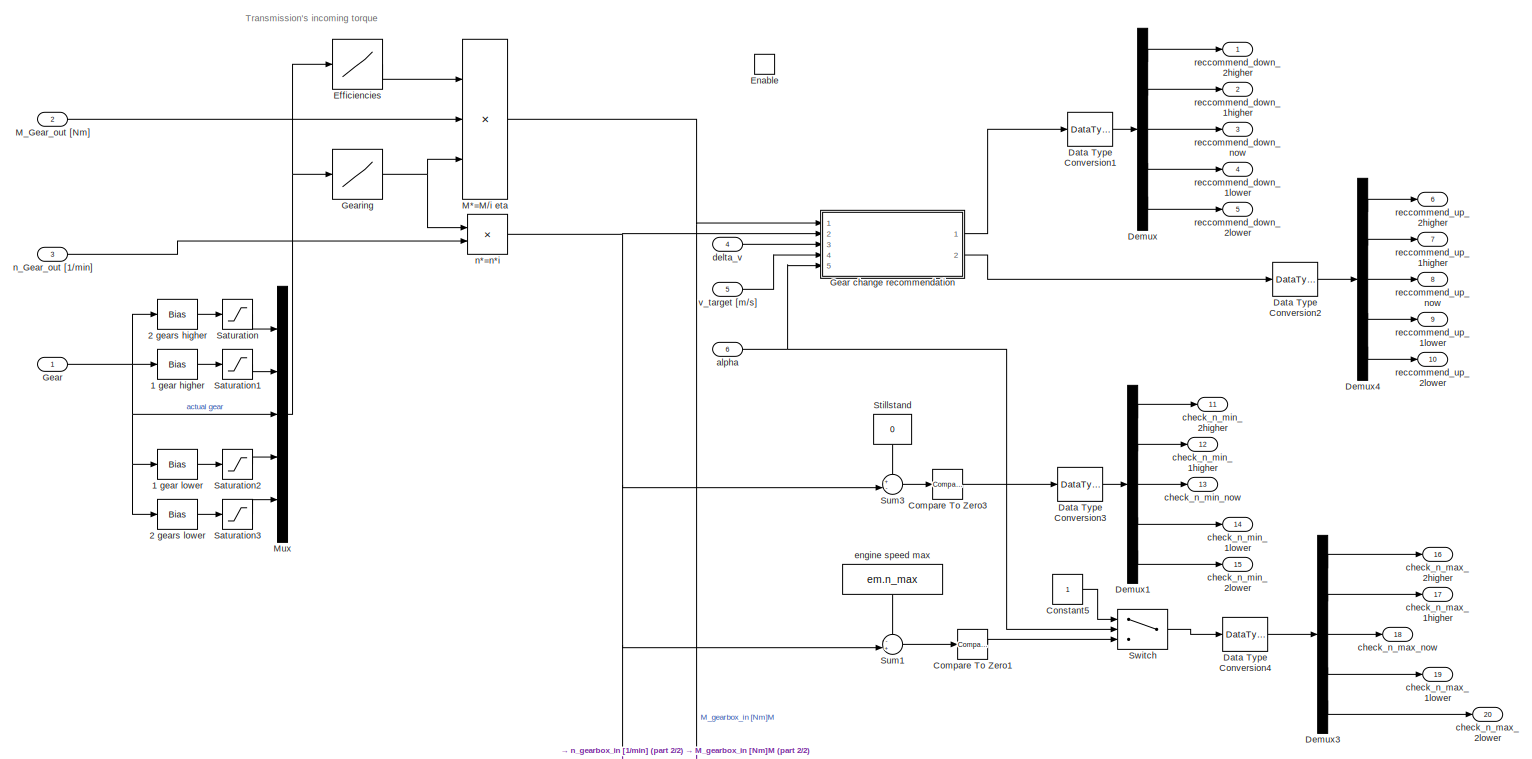
[diagram: Transmission/Determine when shifting occurs - part 1/2, full width, top band]
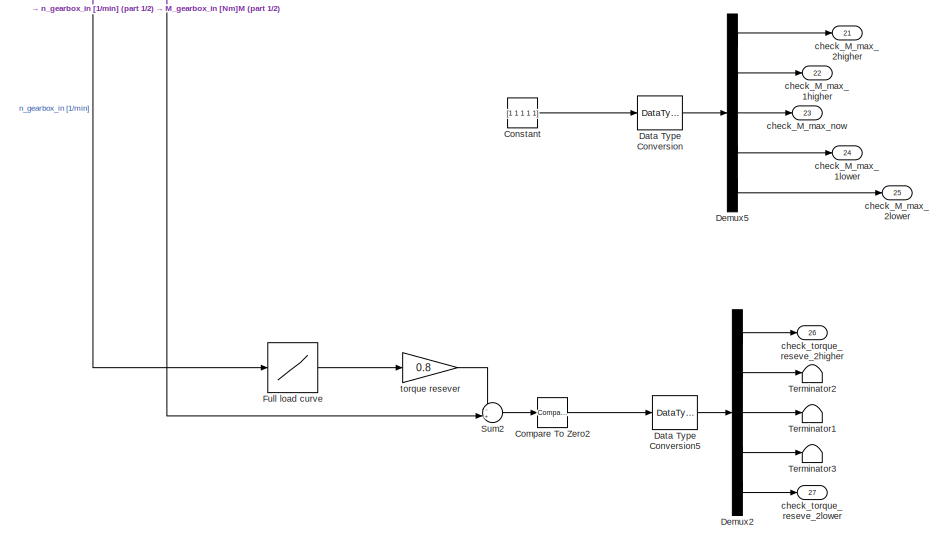
[diagram: Transmission/Determine when shifting occurs - part 2/2, bottom center region]
BLOCK [SubSystem] Transmission/Determine when shifting occurs
  Ports = [6, 27, 1]
  RequestExecContextInheritance = off
  TreatAsAtomicUnit = on
BLOCK [Bias] Transmission/Determine when shifting occurs/1 gear higher
  Bias = 1
  SaturateOnIntegerOverflow = off
BLOCK [Bias] Transmission/Determine when shifting occurs/1 gear lower
  Bias = -1
  SaturateOnIntegerOverflow = off
BLOCK [Bias] Transmission/Determine when shifting occurs/2 gears higher
  Bias = 2
  SaturateOnIntegerOverflow = off
BLOCK [Bias] Transmission/Determine when shifting occurs/2 gears lower
  Bias = -2
  SaturateOnIntegerOverflow = off
BLOCK [Reference] Transmission/Determine when shifting occurs/Compare To Zero1  REF=simulink/Logic and Bit
Operations/Compare
To Zero
  Ports = [1, 1]
  SourceBlock = simulink/Logic and Bit\nOperations/Compare\nTo Zero
  SourceProductBaseCode = SL
  SourceType = Compare To Zero
BLOCK [Reference] Transmission/Determine when shifting occurs/Compare To Zero2  REF=simulink/Logic and Bit
Operations/Compare
To Zero
  Ports = [1, 1]
  SourceBlock = simulink/Logic and Bit\nOperations/Compare\nTo Zero
  SourceProductBaseCode = SL
  SourceType = Compare To Zero
BLOCK [Reference] Transmission/Determine when shifting occurs/Compare To Zero3  REF=simulink/Logic and Bit
Operations/Compare
To Zero
  Ports = [1, 1]
  SourceBlock = simulink/Logic and Bit\nOperations/Compare\nTo Zero
  SourceProductBaseCode = SL
  SourceType = Compare To Zero
BLOCK [Constant] Transmission/Determine when shifting occurs/Constant
  Value = [1 1 1 1 1]
BLOCK [Constant] Transmission/Determine when shifting occurs/Constant5
BLOCK [DataTypeConversion] Transmission/Determine when shifting occurs/Data Type Conversion
  RndMeth = Floor
  SaturateOnIntegerOverflow = off
BLOCK [DataTypeConversion] Transmission/Determine when shifting occurs/Data Type Conversion1
  RndMeth = Floor
  SaturateOnIntegerOverflow = off
BLOCK [DataTypeConversion] Transmission/Determine when shifting occurs/Data Type Conversion2
  RndMeth = Floor
  SaturateOnIntegerOverflow = off
BLOCK [DataTypeConversion] Transmission/Determine when shifting occurs/Data Type Conversion3
  RndMeth = Floor
  SaturateOnIntegerOverflow = off
BLOCK [DataTypeConversion] Transmission/Determine when shifting occurs/Data Type Conversion4
  RndMeth = Floor
  SaturateOnIntegerOverflow = off
BLOCK [DataTypeConversion] Transmission/Determine when shifting occurs/Data Type Conversion5
  RndMeth = Floor
  SaturateOnIntegerOverflow = off
BLOCK [Demux] Transmission/Determine when shifting occurs/Demux
  DisplayOption = bar
  Outputs = 5
  Ports = [1, 5]
BLOCK [Demux] Transmission/Determine when shifting occurs/Demux1
  DisplayOption = bar
  Outputs = 5
  Ports = [1, 5]
BLOCK [Demux] Transmission/Determine when shifting occurs/Demux2
  DisplayOption = bar
  Outputs = 5
  Ports = [1, 5]
BLOCK [Demux] Transmission/Determine when shifting occurs/Demux3
  DisplayOption = bar
  Outputs = 5
  Ports = [1, 5]
BLOCK [Demux] Transmission/Determine when shifting occurs/Demux4
  DisplayOption = bar
  Outputs = 5
  Ports = [1, 5]
BLOCK [Demux] Transmission/Determine when shifting occurs/Demux5
  DisplayOption = bar
  Outputs = 5
  Ports = [1, 5]
BLOCK [Lookup] Transmission/Determine when shifting occurs/Efficiencies
  InputValues = [1:length(transmission.ratios)]
  LookUpMeth = Use Input Nearest
  SaturateOnIntegerOverflow = off
  Table = transmission.trq_eff
BLOCK [EnablePort] Transmission/Determine when shifting occurs/Enable
  Ports = []
BLOCK [Lookup] Transmission/Determine when shifting occurs/Full load curve
  InputValues = em.speed
  LookUpMeth = Interpolation-Use End Values
  SaturateOnIntegerOverflow = off
  Table = em.trq
BLOCK [Inport] Transmission/Determine when shifting occurs/Gear
  IconDisplay = Port number
BLOCK [SubSystem] Transmission/Determine when shifting occurs/Gear change recommendation
  Ports = [5, 2]
  RequestExecContextInheritance = off
BLOCK [Constant] Transmission/Determine when shifting occurs/Gear change recommendation/Constant1
  Value = 0
BLOCK [Constant] Transmission/Determine when shifting occurs/Gear change recommendation/Constant3
  Value = em.shift_parameter.n2
BLOCK [Constant] Transmission/Determine when shifting occurs/Gear change recommendation/Constant5
  Value = em.shift_parameter.n6
BLOCK [Inport] Transmission/Determine when shifting occurs/Gear change recommendation/M_ICE [Nm]
  IconDisplay = Port number
BLOCK [Constant] Transmission/Determine when shifting occurs/Gear change recommendation/M_max [Nm]
  Value = em.shift_parameter.M_max
BLOCK [Switch] Transmission/Determine when shifting occurs/Gear change recommendation/Switch
  Criteria = u2 > Threshold
  InputSameDT = off
  SaturateOnIntegerOverflow = off
  Threshold = 0.06
BLOCK [Inport] Transmission/Determine when shifting occurs/Gear change recommendation/alpha [rad]
  IconDisplay = Port number
  Port = 5
BLOCK [Inport] Transmission/Determine when shifting occurs/Gear change recommendation/delta_v
  IconDisplay = Port number
  Port = 3
BLOCK [Inport] Transmission/Determine when shifting occurs/Gear change recommendation/n_ICE [rpm]
  IconDisplay = Port number
  Port = 2
BLOCK [Outport] Transmission/Determine when shifting occurs/Gear change recommendation/recommend_down
  IconDisplay = Port number
  VectorParamsAs1DForOutWhenUnconnected = off
BLOCK [SubSystem] Transmission/Determine when shifting occurs/Gear change recommendation/recommend_down_calcbsfc1
  Ports = [3, 1]
  RequestExecContextInheritance = off
BLOCK [Reference] Transmission/Determine when shifting occurs/Gear change recommendation/recommend_down_calcbsfc1/Compare To Constant  REF=simulink/Logic and Bit
Operations/Compare
To Constant
  Ports = [1, 1]
  SourceBlock = simulink/Logic and Bit\nOperations/Compare\nTo Constant
  SourceProductBaseCode = SL
  SourceType = Compare To Constant
BLOCK [Reference] Transmission/Determine when shifting occurs/Gear change recommendation/recommend_down_calcbsfc1/Compare To Constant1  REF=simulink/Logic and Bit
Operations/Compare
To Constant
  Ports = [1, 1]
  SourceBlock = simulink/Logic and Bit\nOperations/Compare\nTo Constant
  SourceProductBaseCode = SL
  SourceType = Compare To Constant
BLOCK [Reference] Transmission/Determine when shifting occurs/Gear change recommendation/recommend_down_calcbsfc1/Compare To Zero3  REF=simulink/Logic and Bit
Operations/Compare
To Zero
  Ports = [1, 1]
  SourceBlock = simulink/Logic and Bit\nOperations/Compare\nTo Zero
  SourceProductBaseCode = SL
  SourceType = Compare To Zero
BLOCK [Constant] Transmission/Determine when shifting occurs/Gear change recommendation/recommend_down_calcbsfc1/Constant
  Value = em.n_eck
BLOCK [Constant] Transmission/Determine when shifting occurs/Gear change recommendation/recommend_down_calcbsfc1/Constant2
BLOCK [Constant] Transmission/Determine when shifting occurs/Gear change recommendation/recommend_down_calcbsfc1/Constant3
  Value = 0
BLOCK [Display] Transmission/Determine when shifting occurs/Gear change recommendation/recommend_down_calcbsfc1/Display
  Decimation = 1
  Ports = [1]
BLOCK [Gain] Transmission/Determine when shifting occurs/Gear change recommendation/recommend_down_calcbsfc1/Gain
  Gain = 3.6
  OutDataTypeStr = Inherit: Inherit via internal rule
  ParamDataTypeStr = Inherit: Inherit via internal rule
  SaturateOnIntegerOverflow = off
BLOCK [Gain] Transmission/Determine when shifting occurs/Gear change recommendation/recommend_down_calcbsfc1/Gain1
  Gain = 1.05
  OutDataTypeStr = Inherit: Inherit via internal rule
  ParamDataTypeStr = Inherit: Inherit via internal rule
  SaturateOnIntegerOverflow = off
BLOCK [Integrator] Transmission/Determine when shifting occurs/Gear change recommendation/recommend_down_calcbsfc1/Integrator2
  ExternalReset = either
  Ports = [2, 1]
BLOCK [Logic] Transmission/Determine when shifting occurs/Gear change recommendation/recommend_down_calcbsfc1/Logical Operator
  AllPortsSameDT = off
  Operator = OR
  OutDataTypeStr = boolean
  Ports = [2, 1]
BLOCK [Logic] Transmission/Determine when shifting occurs/Gear change recommendation/recommend_down_calcbsfc1/Logical Operator1
  AllPortsSameDT = off
  OutDataTypeStr = boolean
  Ports = [2, 1]
BLOCK [Outport] Transmission/Determine when shifting occurs/Gear change recommendation/recommend_down_calcbsfc1/Out1
  IconDisplay = Port number
  VectorParamsAs1DForOutWhenUnconnected = off
BLOCK [RelationalOperator] Transmission/Determine when shifting occurs/Gear change recommendation/recommend_down_calcbsfc1/Relational Operator
  InputSameDT = off
  Operator = <=
  OutDataTypeStr = boolean
  Ports = [2, 1]
BLOCK [Scope] Transmission/Determine when shifting occurs/Gear change recommendation/recommend_down_calcbsfc1/Scope
  Floating = off
  NumInputPorts = 3
  Ports = [3]
  ScopeSpecificationString = Simulink.scopes.TimeScopeBlockCfg('CurrentConfiguration', extmgr.ConfigurationSet(extmgr.Configuration('Core','General UI',true),extmgr.Configuration('Core','Source UI',true),extmgr.Configuration('Sources','WiredSimulink',true,'DataLoggingVariableName','ScopeData1'),extmgr.Configuration('Visuals','Time Domain',true,'SerializedDisplays',{struct('MinYLimReal','-0.125','MaxYLimReal','1.125','YLabelRe...<+2951ch>
BLOCK [Gain] Transmission/Determine when shifting occurs/Gear change recommendation/recommend_down_calcbsfc1/Speed jump when downshifiting
  Gain = transmission.ratios(1)/transmission.ratios(2)
  OutDataTypeStr = Inherit: Inherit via internal rule
  ParamDataTypeStr = Inherit: Inherit via internal rule
  SaturateOnIntegerOverflow = off
BLOCK [Sum] Transmission/Determine when shifting occurs/Gear change recommendation/recommend_down_calcbsfc1/Sum1
  IconShape = round
  InputSameDT = off
  Inputs = +-|
  OutDataTypeStr = Inherit: Inherit via internal rule
  Ports = [2, 1]
  SaturateOnIntegerOverflow = off
BLOCK [Switch] Transmission/Determine when shifting occurs/Gear change recommendation/recommend_down_calcbsfc1/Switch1
  Criteria = u2 > Threshold
  InputSameDT = off
  SaturateOnIntegerOverflow = off
BLOCK [Inport] Transmission/Determine when shifting occurs/Gear change recommendation/recommend_down_calcbsfc1/delta_v
  IconDisplay = Port number
  Port = 3
BLOCK [Inport] Transmission/Determine when shifting occurs/Gear change recommendation/recommend_down_calcbsfc1/n_ICE [rpm]
  IconDisplay = Port number
BLOCK [Inport] Transmission/Determine when shifting occurs/Gear change recommendation/recommend_down_calcbsfc1/shift_parameter.n_2
  IconDisplay = Port number
  Port = 2
BLOCK [Outport] Transmission/Determine when shifting occurs/Gear change recommendation/recommend_up
  IconDisplay = Port number
  Port = 2
  VectorParamsAs1DForOutWhenUnconnected = off
BLOCK [SubSystem] Transmission/Determine when shifting occurs/Gear change recommendation/recommend_up_calc_bsfc1
  Ports = [6, 1]
  RequestExecContextInheritance = off
BLOCK [Reference] Transmission/Determine when shifting occurs/Gear change recommendation/recommend_up_calc_bsfc1/Compare To Zero  REF=simulink/Logic and Bit
Operations/Compare
To Zero
  Ports = [1, 1]
  SourceBlock = simulink/Logic and Bit\nOperations/Compare\nTo Zero
  SourceProductBaseCode = SL
  SourceType = Compare To Zero
BLOCK [Reference] Transmission/Determine when shifting occurs/Gear change recommendation/recommend_up_calc_bsfc1/Compare To Zero1  REF=simulink/Logic and Bit
Operations/Compare
To Zero
  Ports = [1, 1]
  SourceBlock = simulink/Logic and Bit\nOperations/Compare\nTo Zero
  SourceProductBaseCode = SL
  SourceType = Compare To Zero
BLOCK [Logic] Transmission/Determine when shifting occurs/Gear change recommendation/recommend_up_calc_bsfc1/Logical Operator
  AllPortsSameDT = off
  OutDataTypeStr = boolean
  Ports = [2, 1]
BLOCK [Inport] Transmission/Determine when shifting occurs/Gear change recommendation/recommend_up_calc_bsfc1/M
  IconDisplay = Port number
BLOCK [SubSystem] Transmission/Determine when shifting occurs/Gear change recommendation/recommend_up_calc_bsfc1/MATLAB Function1
  ErrorFcn = Stateflow.Translate.translate
  PermitHierarchicalResolution = ExplicitOnly
  Ports = [4, 1]
  RequestExecContextInheritance = off
  SFBlockType = MATLAB Function
  TreatAsAtomicUnit = on
BLOCK [Demux] Transmission/Determine when shifting occurs/Gear change recommendation/recommend_up_calc_bsfc1/MATLAB Function1/ Demux 
  DisplayOption = bar
  Outputs = 1
  Ports = [1, 1]
BLOCK [S-Function] Transmission/Determine when shifting occurs/Gear change recommendation/recommend_up_calc_bsfc1/MATLAB Function1/ SFunction 
  EnableBusSupport = off
  FunctionName = sf_sfun
  PortCounts = [4 2]
  Ports = [4, 2]
  SFcnIsStateOwnerBlock = off
  SFunctionDeploymentMode = off
  Tag = Stateflow S-Function 5
BLOCK [Terminator] Transmission/Determine when shifting occurs/Gear change recommendation/recommend_up_calc_bsfc1/MATLAB Function1/ Terminator 
BLOCK [Inport] Transmission/Determine when shifting occurs/Gear change recommendation/recommend_up_calc_bsfc1/MATLAB Function1/M_max
  IconDisplay = Port number
  Port = 2
BLOCK [Outport] Transmission/Determine when shifting occurs/Gear change recommendation/recommend_up_calc_bsfc1/MATLAB Function1/g_2
  IconDisplay = Port number
  VectorParamsAs1DForOutWhenUnconnected = off
BLOCK [Inport] Transmission/Determine when shifting occurs/Gear change recommendation/recommend_up_calc_bsfc1/MATLAB Function1/n
  IconDisplay = Port number
BLOCK [Inport] Transmission/Determine when shifting occurs/Gear change recommendation/recommend_up_calc_bsfc1/MATLAB Function1/n_2
  IconDisplay = Port number
  Port = 4
BLOCK [Inport] Transmission/Determine when shifting occurs/Gear change recommendation/recommend_up_calc_bsfc1/MATLAB Function1/n_6
  IconDisplay = Port number
  Port = 3
BLOCK [Inport] Transmission/Determine when shifting occurs/Gear change recommendation/recommend_up_calc_bsfc1/M_max [Nm]
  IconDisplay = Port number
  Port = 5
BLOCK [Sum] Transmission/Determine when shifting occurs/Gear change recommendation/recommend_up_calc_bsfc1/Sum2
  IconShape = round
  InputSameDT = off
  Inputs = +-|
  OutDataTypeStr = Inherit: Inherit via internal rule
  Ports = [2, 1]
  SaturateOnIntegerOverflow = off
BLOCK [Inport] Transmission/Determine when shifting occurs/Gear change recommendation/recommend_up_calc_bsfc1/n
  IconDisplay = Port number
  Port = 4
BLOCK [Inport] Transmission/Determine when shifting occurs/Gear change recommendation/recommend_up_calc_bsfc1/n_2
  IconDisplay = Port number
  Port = 3
BLOCK [Inport] Transmission/Determine when shifting occurs/Gear change recommendation/recommend_up_calc_bsfc1/n_6
  IconDisplay = Port number
  Port = 2
BLOCK [Outport] Transmission/Determine when shifting occurs/Gear change recommendation/recommend_up_calc_bsfc1/recommend_up
  IconDisplay = Port number
  VectorParamsAs1DForOutWhenUnconnected = off
BLOCK [Inport] Transmission/Determine when shifting occurs/Gear change recommendation/recommend_up_calc_bsfc1/v_target [m//s]
  IconDisplay = Port number
  Port = 6
BLOCK [Inport] Transmission/Determine when shifting occurs/Gear change recommendation/v_target [m//s]
  IconDisplay = Port number
  Port = 4
BLOCK [Lookup] Transmission/Determine when shifting occurs/Gearing
  InputValues = [1:length(transmission.ratios)]
  LookUpMeth = Use Input Nearest
  SaturateOnIntegerOverflow = off
  Table = transmission.ratios
BLOCK [Product] Transmission/Determine when shifting occurs/M*=M//i eta
  InputSameDT = off
  Inputs = /*/
  OutDataTypeStr = Inherit: Inherit via internal rule
  Ports = [3, 1]
  RndMeth = Floor
  SaturateOnIntegerOverflow = off
BLOCK [Inport] Transmission/Determine when shifting occurs/M_Gear_out [Nm]
  IconDisplay = Port number
  Port = 2
BLOCK [Mux] Transmission/Determine when shifting occurs/Mux
  DisplayOption = bar
  Inputs = 5
  Ports = [5, 1]
BLOCK [Saturate] Transmission/Determine when shifting occurs/Saturation
  InputPortMap = u0
  LowerLimit = 0
  Ports = [1, 1]
  UpperLimit = length(transmission.ratios)
BLOCK [Saturate] Transmission/Determine when shifting occurs/Saturation1
  InputPortMap = u0
  LowerLimit = 0
  Ports = [1, 1]
  UpperLimit = length(transmission.ratios)
BLOCK [Saturate] Transmission/Determine when shifting occurs/Saturation2
  InputPortMap = u0
  LowerLimit = 0
  Ports = [1, 1]
  UpperLimit = length(transmission.ratios)
BLOCK [Saturate] Transmission/Determine when shifting occurs/Saturation3
  InputPortMap = u0
  LowerLimit = 0
  Ports = [1, 1]
  UpperLimit = length(transmission.ratios)
BLOCK [Constant] Transmission/Determine when shifting occurs/Stillstand
  Value = 0
BLOCK [Sum] Transmission/Determine when shifting occurs/Sum1
  IconShape = round
  InputSameDT = off
  Inputs = -+|
  OutDataTypeStr = Inherit: Inherit via internal rule
  Ports = [2, 1]
  SaturateOnIntegerOverflow = off
BLOCK [Sum] Transmission/Determine when shifting occurs/Sum2
  IconShape = round
  InputSameDT = off
  Inputs = -+|
  OutDataTypeStr = Inherit: Inherit via internal rule
  Ports = [2, 1]
  SaturateOnIntegerOverflow = off
BLOCK [Sum] Transmission/Determine when shifting occurs/Sum3
  IconShape = round
  InputSameDT = off
  Inputs = +-|
  OutDataTypeStr = Inherit: Inherit via internal rule
  Ports = [2, 1]
  SaturateOnIntegerOverflow = off
BLOCK [Switch] Transmission/Determine when shifting occurs/Switch
  Criteria = u2 > Threshold
  InputSameDT = off
  SaturateOnIntegerOverflow = off
  Threshold = 0.06
BLOCK [Terminator] Transmission/Determine when shifting occurs/Terminator1
BLOCK [Terminator] Transmission/Determine when shifting occurs/Terminator2
BLOCK [Terminator] Transmission/Determine when shifting occurs/Terminator3
BLOCK [Inport] Transmission/Determine when shifting occurs/alpha
  IconDisplay = Port number
  Port = 6
BLOCK [Outport] Transmission/Determine when shifting occurs/check_M_max_1higher
  IconDisplay = Port number
  Port = 22
  VectorParamsAs1DForOutWhenUnconnected = off
BLOCK [Outport] Transmission/Determine when shifting occurs/check_M_max_1lower
  IconDisplay = Port number
  Port = 24
  VectorParamsAs1DForOutWhenUnconnected = off
BLOCK [Outport] Transmission/Determine when shifting occurs/check_M_max_2higher
  IconDisplay = Port number
  Port = 21
  VectorParamsAs1DForOutWhenUnconnected = off
BLOCK [Outport] Transmission/Determine when shifting occurs/check_M_max_2lower
  IconDisplay = Port number
  Port = 25
  VectorParamsAs1DForOutWhenUnconnected = off
BLOCK [Outport] Transmission/Determine when shifting occurs/check_M_max_now
  IconDisplay = Port number
  Port = 23
  VectorParamsAs1DForOutWhenUnconnected = off
BLOCK [Outport] Transmission/Determine when shifting occurs/check_n_max_1higher
  IconDisplay = Port number
  Port = 17
  VectorParamsAs1DForOutWhenUnconnected = off
BLOCK [Outport] Transmission/Determine when shifting occurs/check_n_max_1lower
  IconDisplay = Port number
  Port = 19
  VectorParamsAs1DForOutWhenUnconnected = off
BLOCK [Outport] Transmission/Determine when shifting occurs/check_n_max_2higher
  IconDisplay = Port number
  Port = 16
  VectorParamsAs1DForOutWhenUnconnected = off
BLOCK [Outport] Transmission/Determine when shifting occurs/check_n_max_2lower
  IconDisplay = Port number
  Port = 20
  VectorParamsAs1DForOutWhenUnconnected = off
BLOCK [Outport] Transmission/Determine when shifting occurs/check_n_max_now
  IconDisplay = Port number
  Port = 18
  VectorParamsAs1DForOutWhenUnconnected = off
BLOCK [Outport] Transmission/Determine when shifting occurs/check_n_min_1higher
  IconDisplay = Port number
  Port = 12
  VectorParamsAs1DForOutWhenUnconnected = off
BLOCK [Outport] Transmission/Determine when shifting occurs/check_n_min_1lower
  IconDisplay = Port number
  Port = 14
  VectorParamsAs1DForOutWhenUnconnected = off
BLOCK [Outport] Transmission/Determine when shifting occurs/check_n_min_2higher
  IconDisplay = Port number
  Port = 11
  VectorParamsAs1DForOutWhenUnconnected = off
BLOCK [Outport] Transmission/Determine when shifting occurs/check_n_min_2lower
  IconDisplay = Port number
  Port = 15
  VectorParamsAs1DForOutWhenUnconnected = off
BLOCK [Outport] Transmission/Determine when shifting occurs/check_n_min_now
  IconDisplay = Port number
  Port = 13
  VectorParamsAs1DForOutWhenUnconnected = off
BLOCK [Outport] Transmission/Determine when shifting occurs/check_torque_reseve_2higher
  IconDisplay = Port number
  Port = 26
  VectorParamsAs1DForOutWhenUnconnected = off
BLOCK [Outport] Transmission/Determine when shifting occurs/check_torque_reseve_2lower
  IconDisplay = Port number
  Port = 27
  VectorParamsAs1DForOutWhenUnconnected = off
BLOCK [Inport] Transmission/Determine when shifting occurs/delta_v
  IconDisplay = Port number
  Port = 4
BLOCK [Constant] Transmission/Determine when shifting occurs/engine speed max
  Value = em.n_max
BLOCK [Product] Transmission/Determine when shifting occurs/n*=n*i
  InputSameDT = off
  Inputs = **
  OutDataTypeStr = Inherit: Inherit via internal rule
  Ports = [2, 1]
  RndMeth = Floor
  SaturateOnIntegerOverflow = off
BLOCK [Inport] Transmission/Determine when shifting occurs/n_Gear_out [1//min]
  IconDisplay = Port number
  Port = 3
BLOCK [Outport] Transmission/Determine when shifting occurs/reccommend_down_1higher
  IconDisplay = Port number
  Port = 2
  VectorParamsAs1DForOutWhenUnconnected = off
BLOCK [Outport] Transmission/Determine when shifting occurs/reccommend_down_1lower
  IconDisplay = Port number
  Port = 4
  VectorParamsAs1DForOutWhenUnconnected = off
BLOCK [Outport] Transmission/Determine when shifting occurs/reccommend_down_2higher
  IconDisplay = Port number
  VectorParamsAs1DForOutWhenUnconnected = off
BLOCK [Outport] Transmission/Determine when shifting occurs/reccommend_down_2lower
  IconDisplay = Port number
  Port = 5
  VectorParamsAs1DForOutWhenUnconnected = off
BLOCK [Outport] Transmission/Determine when shifting occurs/reccommend_down_now
  IconDisplay = Port number
  Port = 3
  VectorParamsAs1DForOutWhenUnconnected = off
BLOCK [Outport] Transmission/Determine when shifting occurs/reccommend_up_1higher
  IconDisplay = Port number
  Port = 7
  VectorParamsAs1DForOutWhenUnconnected = off
BLOCK [Outport] Transmission/Determine when shifting occurs/reccommend_up_1lower
  IconDisplay = Port number
  Port = 9
  VectorParamsAs1DForOutWhenUnconnected = off
BLOCK [Outport] Transmission/Determine when shifting occurs/reccommend_up_2higher
  IconDisplay = Port number
  Port = 6
  VectorParamsAs1DForOutWhenUnconnected = off
BLOCK [Outport] Transmission/Determine when shifting occurs/reccommend_up_2lower
  IconDisplay = Port number
  Port = 10
  VectorParamsAs1DForOutWhenUnconnected = off
BLOCK [Outport] Transmission/Determine when shifting occurs/reccommend_up_now
  IconDisplay = Port number
  Port = 8
  VectorParamsAs1DForOutWhenUnconnected = off
BLOCK [Gain] Transmission/Determine when shifting occurs/torque resever
  Gain = 0.8
  OutDataTypeStr = Inherit: Inherit via internal rule
  ParamDataTypeStr = Inherit: Inherit via internal rule
  SaturateOnIntegerOverflow = off
BLOCK [Inport] Transmission/Determine when shifting occurs/v_target [m//s]
  IconDisplay = Port number
  Port = 5
BLOCK [From] Transmission/From
  GotoTag = slope_q
  TagVisibility = global
BLOCK [From] Transmission/From1
  GotoTag = gear
BLOCK [From] Transmission/From2
  GotoTag = M_Gear_out
BLOCK [From] Transmission/From3
  GotoTag = Gear
BLOCK [Goto] Transmission/Goto
  GotoTag = i_gearbox
  TagVisibility = global
BLOCK [Goto] Transmission/Goto1
  GotoTag = recommend_DOWN_now
  TagVisibility = global
BLOCK [Goto] Transmission/Goto2
  GotoTag = gear
  TagVisibility = global
BLOCK [Goto] Transmission/Goto3
  GotoTag = recommend_UP_now
  TagVisibility = global
BLOCK [Goto] Transmission/Goto4
  GotoTag = gear
BLOCK [Goto] Transmission/Goto5
  GotoTag = M_Gear_out
BLOCK [Goto] Transmission/Goto6
  GotoTag = Gear
BLOCK [Inport] Transmission/M_EM [Nm]
  IconDisplay = Port number
BLOCK [Outport] Transmission/M_Gearbox [Nm]
  IconDisplay = Port number
  Port = 2
  VectorParamsAs1DForOutWhenUnconnected = off
BLOCK [Memory] Transmission/Memory1
BLOCK [Constant] Transmission/Number of gears
  Value = transmission.z
  VectorParams1D = off
BLOCK [Saturate] Transmission/Saturation
  InputPortMap = u0
  LowerLimit = 0
  Ports = [1, 1]
  UpperLimit = em.n_max
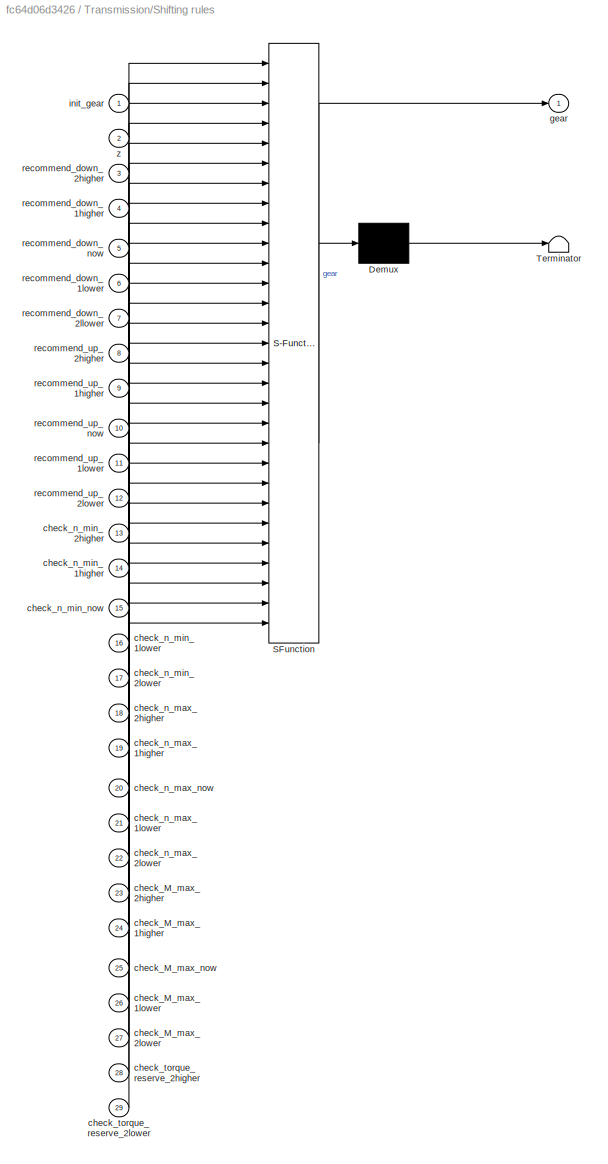
BLOCK [SubSystem] Transmission/Shifting rules
  ErrorFcn = Stateflow.Translate.translate
  PermitHierarchicalResolution = ExplicitOnly
  Ports = [29, 1]
  RequestExecContextInheritance = off
  SFBlockType = Chart
  TreatAsAtomicUnit = on
BLOCK [Demux] Transmission/Shifting rules/ Demux 
  DisplayOption = bar
  Outputs = 1
  Ports = [1, 1]
BLOCK [S-Function] Transmission/Shifting rules/ SFunction 
  EnableBusSupport = off
  FunctionName = sf_sfun
  PortCounts = [29 2]
  Ports = [29, 2]
  SFcnIsStateOwnerBlock = off
  SFunctionDeploymentMode = off
  Tag = Stateflow S-Function 3
BLOCK [Terminator] Transmission/Shifting rules/ Terminator 
BLOCK [Inport] Transmission/Shifting rules/check_M_max_1higher
  IconDisplay = Port number
  Port = 24
BLOCK [Inport] Transmission/Shifting rules/check_M_max_1lower
  IconDisplay = Port number
  Port = 26
BLOCK [Inport] Transmission/Shifting rules/check_M_max_2higher
  IconDisplay = Port number
  Port = 23
BLOCK [Inport] Transmission/Shifting rules/check_M_max_2lower
  IconDisplay = Port number
  Port = 27
BLOCK [Inport] Transmission/Shifting rules/check_M_max_now
  IconDisplay = Port number
  Port = 25
BLOCK [Inport] Transmission/Shifting rules/check_n_max_1higher
  IconDisplay = Port number
  Port = 19
BLOCK [Inport] Transmission/Shifting rules/check_n_max_1lower
  IconDisplay = Port number
  Port = 21
BLOCK [Inport] Transmission/Shifting rules/check_n_max_2higher
  IconDisplay = Port number
  Port = 18
BLOCK [Inport] Transmission/Shifting rules/check_n_max_2lower
  IconDisplay = Port number
  Port = 22
BLOCK [Inport] Transmission/Shifting rules/check_n_max_now
  IconDisplay = Port number
  Port = 20
BLOCK [Inport] Transmission/Shifting rules/check_n_min_1higher
  IconDisplay = Port number
  Port = 14
BLOCK [Inport] Transmission/Shifting rules/check_n_min_1lower
  IconDisplay = Port number
  Port = 16
BLOCK [Inport] Transmission/Shifting rules/check_n_min_2higher
  IconDisplay = Port number
  Port = 13
BLOCK [Inport] Transmission/Shifting rules/check_n_min_2lower
  IconDisplay = Port number
  Port = 17
BLOCK [Inport] Transmission/Shifting rules/check_n_min_now
  IconDisplay = Port number
  Port = 15
BLOCK [Inport] Transmission/Shifting rules/check_torque_reserve_2higher
  IconDisplay = Port number
  Port = 28
BLOCK [Inport] Transmission/Shifting rules/check_torque_reserve_2lower
  IconDisplay = Port number
  Port = 29
BLOCK [Outport] Transmission/Shifting rules/gear
  IconDisplay = Port number
  VectorParamsAs1DForOutWhenUnconnected = off
BLOCK [Inport] Transmission/Shifting rules/init_gear
  IconDisplay = Port number
BLOCK [Inport] Transmission/Shifting rules/recommend_down_1higher
  IconDisplay = Port number
  Port = 4
BLOCK [Inport] Transmission/Shifting rules/recommend_down_1lower
  IconDisplay = Port number
  Port = 6
BLOCK [Inport] Transmission/Shifting rules/recommend_down_2higher
  IconDisplay = Port number
  Port = 3
BLOCK [Inport] Transmission/Shifting rules/recommend_down_2llower
  IconDisplay = Port number
  Port = 7
BLOCK [Inport] Transmission/Shifting rules/recommend_down_now
  IconDisplay = Port number
  Port = 5
BLOCK [Inport] Transmission/Shifting rules/recommend_up_1higher
  IconDisplay = Port number
  Port = 9
BLOCK [Inport] Transmission/Shifting rules/recommend_up_1lower
  IconDisplay = Port number
  Port = 11
BLOCK [Inport] Transmission/Shifting rules/recommend_up_2higher
  IconDisplay = Port number
  Port = 8
BLOCK [Inport] Transmission/Shifting rules/recommend_up_2lower
  IconDisplay = Port number
  Port = 12
BLOCK [Inport] Transmission/Shifting rules/recommend_up_now
  IconDisplay = Port number
  Port = 10
BLOCK [Inport] Transmission/Shifting rules/z
  IconDisplay = Port number
  Port = 2
BLOCK [Trigonometry] Transmission/Steigung-> Winkel
  Operator = atan
  Ports = [1, 1]
BLOCK [SubSystem] Transmission/Torque flow through the transmission
  Ports = [3, 3]
  RequestExecContextInheritance = off
BLOCK [Product] Transmission/Torque flow through the transmission/Divide
  InputSameDT = off
  Inputs = /
  OutDataTypeStr = Inherit: Inherit via internal rule
  Ports = [1, 1]
  RndMeth = Floor
  SaturateOnIntegerOverflow = off
BLOCK [Lookup] Transmission/Torque flow through the transmission/Efficiencies
  InputValues = [1:length(transmission.ratios)]
  LookUpMeth = Use Input Nearest
  SaturateOnIntegerOverflow = off
  Table = transmission.trq_eff
BLOCK [Inport] Transmission/Torque flow through the transmission/Gear
  IconDisplay = Port number
  Port = 3
BLOCK [Lookup] Transmission/Torque flow through the transmission/Gearing
  InputValues = [1:length(transmission.ratios)]
  LookUpMeth = Use Input Nearest
  SaturateOnIntegerOverflow = off
  Table = transmission.ratios
BLOCK [Goto] Transmission/Torque flow through the transmission/Goto
  GotoTag = lamda
  TagVisibility = global
BLOCK [Goto] Transmission/Torque flow through the transmission/Goto1
  GotoTag = Eta_Gear
  TagVisibility = global
BLOCK [Switch] Transmission/Torque flow through the transmission/M_Mot >= 0?
  InputSameDT = off
  SaturateOnIntegerOverflow = off
  ZeroCross = off
BLOCK [Inport] Transmission/Torque flow through the transmission/M_gearbox_in [Nm]
  IconDisplay = Port number
BLOCK [Outport] Transmission/Torque flow through the transmission/M_gearbox_out [Nm]
  IconDisplay = Port number
  Port = 2
  VectorParamsAs1DForOutWhenUnconnected = off
BLOCK [Product] Transmission/Torque flow through the transmission/Product
  InputSameDT = off
  Inputs = ***
  OutDataTypeStr = Inherit: Inherit via internal rule
  Ports = [3, 1]
  SaturateOnIntegerOverflow = off
BLOCK [Lookup] Transmission/Torque flow through the transmission/Rotating mass
  InputValues = [1:length(transmission.ratios)]
  LookUpMeth = Use Input Nearest
  SaturateOnIntegerOverflow = off
  Table = transmission.lamda
BLOCK [SubSystem] Transmission/Torque flow through the transmission/Subsystem
  Commented = on
  Ports = [3, 4]
  RequestExecContextInheritance = off
BLOCK [Product] Transmission/Torque flow through the transmission/Subsystem/Divide
  InputSameDT = off
  Inputs = /
  OutDataTypeStr = Inherit: Inherit via internal rule
  Ports = [1, 1]
  RndMeth = Floor
  SaturateOnIntegerOverflow = off
BLOCK [Lookup] Transmission/Torque flow through the transmission/Subsystem/Drehmassenzuschlag
  InputValues = [1:length(transmission.ratios)]
  LookUpMeth = Use Input Nearest
  SaturateOnIntegerOverflow = off
  Table = transmission.lamda
BLOCK [Switch] Transmission/Torque flow through the transmission/Subsystem/M_Mot >= 0?
  InputSameDT = off
  SaturateOnIntegerOverflow = off
  ZeroCross = off
BLOCK [Inport] Transmission/Torque flow through the transmission/Subsystem/M_in
  IconDisplay = Port number
BLOCK [Outport] Transmission/Torque flow through the transmission/Subsystem/M_out
  IconDisplay = Port number
  VectorParamsAs1DForOutWhenUnconnected = off
BLOCK [Product] Transmission/Torque flow through the transmission/Subsystem/Product
  InputSameDT = off
  Inputs = ***
  OutDataTypeStr = Inherit: Inherit via internal rule
  Ports = [3, 1]
  SaturateOnIntegerOverflow = off
BLOCK [Lookup] Transmission/Torque flow through the transmission/Subsystem/Wirkungsgrade
  InputValues = [1:length(transmission.ratios)]
  LookUpMeth = Use Input Nearest
  SaturateOnIntegerOverflow = off
  Table = transmission.trq_eff
BLOCK [Outport] Transmission/Torque flow through the transmission/Subsystem/i
  IconDisplay = Port number
  Port = 2
  VectorParamsAs1DForOutWhenUnconnected = off
BLOCK [Outport] Transmission/Torque flow through the transmission/Subsystem/lambda
  IconDisplay = Port number
  Port = 4
  VectorParamsAs1DForOutWhenUnconnected = off
BLOCK [Product] Transmission/Torque flow through the transmission/Subsystem/n*=n*i
  InputSameDT = off
  Inputs = **
  OutDataTypeStr = Inherit: Inherit via internal rule
  Ports = [2, 1]
  RndMeth = Floor
  SaturateOnIntegerOverflow = off
BLOCK [Inport] Transmission/Torque flow through the transmission/Subsystem/n_in
  IconDisplay = Port number
  Port = 3
BLOCK [Outport] Transmission/Torque flow through the transmission/Subsystem/n_out
  IconDisplay = Port number
  Port = 3
  VectorParamsAs1DForOutWhenUnconnected = off
BLOCK [Inport] Transmission/Torque flow through the transmission/Subsystem/z
  IconDisplay = Port number
  Port = 2
BLOCK [Lookup] Transmission/Torque flow through the transmission/Subsystem/Übersetzungen
  InputValues = [1:length(transmission.ratios)]
  LookUpMeth = Use Input Nearest
  SaturateOnIntegerOverflow = off
  Table = transmission.ratios
BLOCK [Outport] Transmission/Torque flow through the transmission/i_gearbox
  IconDisplay = Port number
  Port = 3
  VectorParamsAs1DForOutWhenUnconnected = off
BLOCK [Product] Transmission/Torque flow through the transmission/n*=n*i
  InputSameDT = off
  Inputs = **
  OutDataTypeStr = Inherit: Inherit via internal rule
  Ports = [2, 1]
  RndMeth = Floor
  SaturateOnIntegerOverflow = off
BLOCK [Outport] Transmission/Torque flow through the transmission/n_gearbox_in [1//min]
  IconDisplay = Port number
  VectorParamsAs1DForOutWhenUnconnected = off
BLOCK [Inport] Transmission/Torque flow through the transmission/n_gearbox_out [1//min]
  IconDisplay = Port number
  Port = 2
BLOCK [Constant] Transmission/Transmission gears
  Value = transmission.z
  VectorParams1D = off
BLOCK [SubSystem] Transmission/ZKU
  Ports = [1]
  RequestExecContextInheritance = off
BLOCK [Reference] Transmission/ZKU/Compare  REF=simulink/Logic and Bit
Operations/Compare
To Zero
  Ports = [1, 1]
  SourceBlock = simulink/Logic and Bit\nOperations/Compare\nTo Zero
  SourceProductBaseCode = SL
  SourceType = Compare To Zero
BLOCK [Constant] Transmission/ZKU/Constant
  Value = -1
BLOCK [Constant] Transmission/ZKU/Constant1
  Value = 0
BLOCK [DataTypeConversion] Transmission/ZKU/Data Type Conversion
  RndMeth = Floor
  SaturateOnIntegerOverflow = off
BLOCK [Derivative] Transmission/ZKU/Derivative
BLOCK [Inport] Transmission/ZKU/Gear
  IconDisplay = Port number
BLOCK [Integrator] Transmission/ZKU/Integrator
  ExternalReset = either
  InitialCondition = transmission.shift_time
  Ports = [2, 1]
BLOCK [Goto] Transmission/ZKU/M_Motor -> 0
  GotoTag = ZKU
  TagVisibility = global
BLOCK [ManualSwitch] Transmission/ZKU/Manual Switch
BLOCK [Inport] Transmission/delta_v
  IconDisplay = Port number
  Port = 4
BLOCK [Constant] Transmission/init_gear
  Value = transmission.init_gear
BLOCK [Outport] Transmission/n_EM [rpm]
  IconDisplay = Port number
  VectorParamsAs1DForOutWhenUnconnected = off
BLOCK [Inport] Transmission/n_Gearbox [rpm]
  IconDisplay = Port number
  Port = 2
BLOCK [Inport] Transmission/v_target [m//s]
  IconDisplay = Port number
  Port = 3
BLOCK [SubSystem] Vehicle
  Ports = [3, 2]
  RequestExecContextInheritance = off
BLOCK [Sum] Vehicle/Add
  InputSameDT = off
  Inputs = -+-
  OutDataTypeStr = Inherit: Inherit via internal rule
  Ports = [3, 1]
  SaturateOnIntegerOverflow = off
BLOCK [Constant] Vehicle/Cargo weight
  Value = vehicle.payload
BLOCK [SubSystem] Vehicle/Driving resistances without acceleration
  Ports = [2, 1]
  RequestExecContextInheritance = off
BLOCK [Sum] Vehicle/Driving resistances without acceleration/Add
  InputSameDT = off
  Inputs = +++
  OutDataTypeStr = Inherit: Inherit via internal rule
  Ports = [3, 1]
  SaturateOnIntegerOverflow = off
BLOCK [SubSystem] Vehicle/Driving resistances without acceleration/Drag
  Ports = [1, 1]
  RequestExecContextInheritance = off
BLOCK [Constant] Vehicle/Driving resistances without acceleration/Drag/A
  Value = vehicle.frontal_area
BLOCK [Outport] Vehicle/Driving resistances without acceleration/Drag/F_drag [N]
  IconDisplay = Port number
  VectorParamsAs1DForOutWhenUnconnected = off
BLOCK [Product] Vehicle/Driving resistances without acceleration/Drag/Product2
  InputSameDT = off
  Inputs = 4
  OutDataTypeStr = Inherit: Inherit via internal rule
  Ports = [4, 1]
  SaturateOnIntegerOverflow = off
BLOCK [Constant] Vehicle/Driving resistances without acceleration/Drag/c_d
  Value = vehicle.air_drag_coeff
BLOCK [Gain] Vehicle/Driving resistances without acceleration/Drag/gain2
  Gain = 0.5
  OutDataTypeStr = Inherit: Inherit via internal rule
  ParamDataTypeStr = Inherit: Inherit via internal rule
  SaturateOnIntegerOverflow = off
BLOCK [Constant] Vehicle/Driving resistances without acceleration/Drag/rho
  Value = ambient.air_density
BLOCK [Inport] Vehicle/Driving resistances without acceleration/Drag/v [m//s]
  IconDisplay = Port number
BLOCK [Math] Vehicle/Driving resistances without acceleration/Drag/v²
  Operator = square
  Ports = [1, 1]
BLOCK [Outport] Vehicle/Driving resistances without acceleration/F_W [N]
  IconDisplay = Port number
  VectorParamsAs1DForOutWhenUnconnected = off
BLOCK [Goto] Vehicle/Driving resistances without acceleration/Goto
  GotoTag = Air_drag
  TagVisibility = global
BLOCK [Goto] Vehicle/Driving resistances without acceleration/Goto5
  GotoTag = Rolling_drag
  TagVisibility = global
BLOCK [SubSystem] Vehicle/Driving resistances without acceleration/Gradient resistance
  Ports = [1, 1]
  RequestExecContextInheritance = off
BLOCK [Sum] Vehicle/Driving resistances without acceleration/Gradient resistance/Add
  InputSameDT = off
  OutDataTypeStr = Inherit: Inherit via internal rule
  Ports = [2, 1]
  SaturateOnIntegerOverflow = off
BLOCK [Constant] Vehicle/Driving resistances without acceleration/Gradient resistance/Cargo weight
  Value = vehicle.payload
BLOCK [Outport] Vehicle/Driving resistances without acceleration/Gradient resistance/F_slope [N]
  IconDisplay = Port number
  VectorParamsAs1DForOutWhenUnconnected = off
BLOCK [Product] Vehicle/Driving resistances without acceleration/Gradient resistance/Product7
  InputSameDT = off
  OutDataTypeStr = Inherit: Inherit via internal rule
  Ports = [2, 1]
  SaturateOnIntegerOverflow = off
BLOCK [Trigonometry] Vehicle/Driving resistances without acceleration/Gradient resistance/Trigonometric Function
  Ports = [1, 1]
BLOCK [Constant] Vehicle/Driving resistances without acceleration/Gradient resistance/Vehicle weight
  Value = vehicle.mass
BLOCK [Inport] Vehicle/Driving resistances without acceleration/Gradient resistance/alpha [rad]
  IconDisplay = Port number
BLOCK [Gain] Vehicle/Driving resistances without acceleration/Gradient resistance/g
  Gain = ambient.gravity
  OutDataTypeStr = Inherit: Inherit via internal rule
  ParamDataTypeStr = Inherit: Inherit via internal rule
  SaturateOnIntegerOverflow = off
BLOCK [SubSystem] Vehicle/Driving resistances without acceleration/Rolling resistance
  Ports = [1, 1]
  RequestExecContextInheritance = off
BLOCK [Sum] Vehicle/Driving resistances without acceleration/Rolling resistance/Add1
  InputSameDT = off
  OutDataTypeStr = Inherit: Inherit via internal rule
  Ports = [2, 1]
  SaturateOnIntegerOverflow = off
BLOCK [Constant] Vehicle/Driving resistances without acceleration/Rolling resistance/Cargo weight
  Value = vehicle.payload
BLOCK [Outport] Vehicle/Driving resistances without acceleration/Rolling resistance/F_Roll [N]
  IconDisplay = Port number
  VectorParamsAs1DForOutWhenUnconnected = off
BLOCK [Product] Vehicle/Driving resistances without acceleration/Rolling resistance/Product7
  InputSameDT = off
  Inputs = 3
  OutDataTypeStr = Inherit: Inherit via internal rule
  Ports = [3, 1]
  SaturateOnIntegerOverflow = off
BLOCK [Constant] Vehicle/Driving resistances without acceleration/Rolling resistance/Rolling friction coefficient
  Value = tires.roll_drag_coeff.total
BLOCK [Trigonometry] Vehicle/Driving resistances without acceleration/Rolling resistance/Trigonometric Function
  Operator = cos
  Ports = [1, 1]
BLOCK [Constant] Vehicle/Driving resistances without acceleration/Rolling resistance/Vehicle weight
  Value = vehicle.mass
BLOCK [Inport] Vehicle/Driving resistances without acceleration/Rolling resistance/alpha [rad]
  IconDisplay = Port number
BLOCK [Gain] Vehicle/Driving resistances without acceleration/Rolling resistance/g
  Gain = ambient.gravity
  OutDataTypeStr = Inherit: Inherit via internal rule
  ParamDataTypeStr = Inherit: Inherit via internal rule
  SaturateOnIntegerOverflow = off
BLOCK [Inport] Vehicle/Driving resistances without acceleration/alpha [rad]
  IconDisplay = Port number
BLOCK [Inport] Vehicle/Driving resistances without acceleration/v [m//s]
  IconDisplay = Port number
  Port = 2
BLOCK [Constant] Vehicle/F_brake_max
  Value = vehicle.F_brake_max
BLOCK [Inport] Vehicle/F_x [N]
  IconDisplay = Port number
BLOCK [Goto] Vehicle/Goto1
  GotoTag = v_current1
  TagVisibility = global
BLOCK [Goto] Vehicle/Goto2
  GotoTag = s_current1
  TagVisibility = global
BLOCK [Goto] Vehicle/Goto4
  GotoTag = Acceletation_drag
  TagVisibility = global
BLOCK [Integrator] Vehicle/Integrator
  Ports = [1, 1]
BLOCK [Integrator] Vehicle/Integrator1
  InitialCondition = cycle.speed_init
  LimitOutput = on
  LowerSaturationLimit = 0
  Ports = [1, 1]
BLOCK [Product] Vehicle/Product
  InputSameDT = off
  Inputs = 3
  OutDataTypeStr = Inherit: Inherit via internal rule
  Ports = [3, 1]
  RndMeth = Floor
  SaturateOnIntegerOverflow = off
BLOCK [Product] Vehicle/Product2
  InputSameDT = off
  Inputs = */
  OutDataTypeStr = Inherit: Inherit via internal rule
  Ports = [2, 1]
  SaturateOnIntegerOverflow = off
BLOCK [Product] Vehicle/Product3
  InputSameDT = off
  Inputs = **
  OutDataTypeStr = Inherit: Inherit via internal rule
  Ports = [2, 1]
  SaturateOnIntegerOverflow = off
BLOCK [Sum] Vehicle/Sum1
  IconShape = round
  InputSameDT = off
  Inputs = |++
  OutDataTypeStr = Inherit: Inherit via internal rule
  Ports = [2, 1]
  SaturateOnIntegerOverflow = off
BLOCK [Sum] Vehicle/Sum2
  IconShape = round
  InputSameDT = off
  Inputs = |++
  OutDataTypeStr = Inherit: Inherit via internal rule
  Ports = [2, 1]
  SaturateOnIntegerOverflow = off
BLOCK [Constant] Vehicle/Vehicle weight
  Value = vehicle.mass
BLOCK [Inport] Vehicle/alpha [rad]
  IconDisplay = Port number
  Port = 3
BLOCK [Product] Vehicle/brake_force [N]
  InputSameDT = off
  OutDataTypeStr = Inherit: Inherit via internal rule
  Ports = [2, 1]
  SaturateOnIntegerOverflow = off
BLOCK [From] Vehicle/lambda
  CloseFcn = tagdialog Close
  GotoTag = lamda
  TagVisibility = global
BLOCK [Outport] Vehicle/s_current [m]
  IconDisplay = Port number
  Port = 2
  VectorParamsAs1DForOutWhenUnconnected = off
BLOCK [Inport] Vehicle/u_KB
  IconDisplay = Port number
  Port = 2
BLOCK [Outport] Vehicle/v_current [m//s]
  IconDisplay = Port number
  VectorParamsAs1DForOutWhenUnconnected = off
BLOCK [SubSystem] summary
  Ports = []
  RequestExecContextInheritance = off
BLOCK [Clock] summary/Clock
BLOCK [Constant] summary/Constant
  Value = 1/1000
BLOCK [Constant] summary/Constant1
  Value = (2*pi)/60
BLOCK [Constant] summary/Constant2
  Value = 0
BLOCK [Constant] summary/Constant3
  Value = 0
BLOCK [Constant] summary/Constant4
  Value = 0
BLOCK [Constant] summary/Constant5
  Value = 0
BLOCK [Constant] summary/Constant6
  Value = 0
BLOCK [Constant] summary/Constant7
  Value = 0
BLOCK [Constant] summary/Constant8
BLOCK [Scope] summary/Cycle summary
  Floating = off
  NumInputPorts = 8
  Ports = [8]
  ScopeSpecificationString = Simulink.scopes.TimeScopeBlockCfg('CurrentConfiguration', extmgr.ConfigurationSet(extmgr.Configuration('Core','General UI',true),extmgr.Configuration('Core','Source UI',true),extmgr.Configuration('Sources','WiredSimulink',true,'DataLogging',true,'DataLoggingVariableName','OUT_summary','DataLoggingSaveFormat','StructureWithTime','DataLoggingDecimation','10','DataLoggingDecimateData',true),extmgr.Co...<+6555ch>
BLOCK [Display] summary/Distance [km]
  Ports = [1]
BLOCK [Display] summary/Duration [min]
  Ports = [1]
BLOCK [From] summary/From1
  GotoTag = s_current1
  TagVisibility = global
BLOCK [From] summary/From11
  GotoTag = Driver_B
  TagVisibility = global
BLOCK [From] summary/From12
  GotoTag = Driver_M
  TagVisibility = global
BLOCK [From] summary/From14
  GotoTag = n_EM
  TagVisibility = global
BLOCK [From] summary/From15
  GotoTag = delta_v
  TagVisibility = global
BLOCK [From] summary/From16
  GotoTag = gear
  TagVisibility = global
BLOCK [From] summary/From18
  GotoTag = recommend_DOWN_now
  TagVisibility = global
BLOCK [From] summary/From19
  GotoTag = recommend_UP_now
  TagVisibility = global
BLOCK [From] summary/From2
  GotoTag = gear
  TagVisibility = global
BLOCK [From] summary/From20
  GotoTag = u_EM
  TagVisibility = global
BLOCK [From] summary/From22
  GotoTag = Acceletation_drag
  TagVisibility = global
BLOCK [From] summary/From23
  GotoTag = Air_drag
  TagVisibility = global
BLOCK [From] summary/From24
  GotoTag = Rolling_drag
  TagVisibility = global
BLOCK [From] summary/From25
  GotoTag = altitude
  TagVisibility = global
BLOCK [From] summary/From3
  GotoTag = v_target
  TagVisibility = global
BLOCK [From] summary/From5
  GotoTag = M_EM
  TagVisibility = global
BLOCK [From] summary/From6
  GotoTag = slope_q
  TagVisibility = global
BLOCK [From] summary/From8
  GotoTag = slope_q
  TagVisibility = global
BLOCK [From] summary/From9
  GotoTag = v_current1
  TagVisibility = global
BLOCK [Gain] summary/Gain
  Gain = 1/1000
  OutDataTypeStr = Inherit: Inherit via internal rule
  ParamDataTypeStr = Inherit: Inherit via internal rule
  SaturateOnIntegerOverflow = off
BLOCK [Gain] summary/Gain1
  Gain = 1/60
  OutDataTypeStr = Inherit: Inherit via internal rule
  ParamDataTypeStr = Inherit: Inherit via internal rule
  SaturateOnIntegerOverflow = off
BLOCK [Gain] summary/Gain2
  Gain = 3.6
  OutDataTypeStr = Inherit: Inherit via internal rule
  ParamDataTypeStr = Inherit: Inherit via internal rule
  SaturateOnIntegerOverflow = off
BLOCK [Gain] summary/Gain3
  Gain = 3.6
  OutDataTypeStr = Inherit: Inherit via internal rule
  ParamDataTypeStr = Inherit: Inherit via internal rule
  SaturateOnIntegerOverflow = off
BLOCK [Gain] summary/Gain4
  Gain = 1/3600
  OutDataTypeStr = Inherit: Inherit via internal rule
  ParamDataTypeStr = Inherit: Inherit via internal rule
  SaturateOnIntegerOverflow = off
BLOCK [Gain] summary/Gain5
  Gain = 3.6
  OutDataTypeStr = Inherit: Inherit via internal rule
  ParamDataTypeStr = Inherit: Inherit via internal rule
  SaturateOnIntegerOverflow = off
BLOCK [Scope] summary/OUT_engine
  Floating = off
  NumInputPorts = 7
  Ports = [7]
  ScopeSpecificationString = Simulink.scopes.TimeScopeBlockCfg('CurrentConfiguration', extmgr.ConfigurationSet(extmgr.Configuration('Core','General UI',true),extmgr.Configuration('Core','Source UI',true),extmgr.Configuration('Sources','WiredSimulink',true,'DataLogging',true,'DataLoggingVariableName','OUT_engine','DataLoggingSaveFormat','StructureWithTime','DataLoggingDecimation','1','DataLoggingDecimateData',true),extmgr.Conf...<+6396ch>
BLOCK [Scope] summary/Overview_electric_truck
  Floating = off
  NumInputPorts = 7
  Ports = [7]
  ScopeSpecificationString = Simulink.scopes.TimeScopeBlockCfg('CurrentConfiguration', extmgr.ConfigurationSet(extmgr.Configuration('Core','General UI',true),extmgr.Configuration('Core','Source UI',true),extmgr.Configuration('Sources','WiredSimulink',true,'DataLoggingVariableName','ScopeData1'),extmgr.Configuration('Visuals','Time Domain',true,'SerializedDisplays',{struct('MinYLimReal','-0.06243','MaxYLimReal','0.06437','YLab...<+6173ch>
BLOCK [Product] summary/Product
  InputSameDT = off
  Inputs = */
  OutDataTypeStr = Inherit: Inherit via internal rule
  Ports = [2, 1]
  SaturateOnIntegerOverflow = off
BLOCK [Product] summary/Product1
  InputSameDT = off
  OutDataTypeStr = Inherit: Inherit via internal rule
  Ports = [2, 1]
  RndMeth = Floor
  SaturateOnIntegerOverflow = off
BLOCK [Product] summary/Product2
  InputSameDT = off
  Inputs = 3
  OutDataTypeStr = Inherit: Inherit via internal rule
  Ports = [3, 1]
  RndMeth = Floor
  SaturateOnIntegerOverflow = off
BLOCK [Scope] summary/Results summary
  Floating = off
  NumInputPorts = 9
  Ports = [9]
  ScopeSpecificationString = Simulink.scopes.TimeScopeBlockCfg('CurrentConfiguration', extmgr.ConfigurationSet(extmgr.Configuration('Core','General UI',true),extmgr.Configuration('Core','Source UI',true),extmgr.Configuration('Sources','WiredSimulink',true,'DataLoggingVariableName','OUT_summary1','DataLoggingSaveFormat','StructureWithTime','DataLoggingDecimation','10','DataLoggingDecimateData',true),extmgr.Configuration('Visua...<+7208ch>
BLOCK [Scope] summary/Scope3
  Floating = off
  NumInputPorts = 3
  Ports = [3]
  ScopeSpecificationString = Simulink.scopes.TimeScopeBlockCfg('CurrentConfiguration', extmgr.ConfigurationSet(extmgr.Configuration('Core','General UI',true),extmgr.Configuration('Core','Source UI',true),extmgr.Configuration('Sources','WiredSimulink',true,'DataLogging',true,'DataLoggingVariableName','Out_EM','DataLoggingSaveFormat','StructureWithTime','DataLoggingDecimation','1','DataLoggingDecimateData',true),extmgr.Configur...<+3024ch>
BLOCK [Scope] summary/Scope4
  Floating = off
  NumInputPorts = 6
  Ports = [6]
  ScopeSpecificationString = Simulink.scopes.TimeScopeBlockCfg('CurrentConfiguration', extmgr.ConfigurationSet(extmgr.Configuration('Core','General UI',true),extmgr.Configuration('Core','Source UI',true),extmgr.Configuration('Sources','WiredSimulink',true,'DataLogging',true,'DataLoggingVariableName','Out_EM1','DataLoggingSaveFormat','StructureWithTime','DataLoggingDecimation','1','DataLoggingDecimateData',true),extmgr.Configu...<+5214ch>
BLOCK [Switch] summary/Switch
  Criteria = u2 > Threshold
  InputSameDT = off
  SaturateOnIntegerOverflow = off
BLOCK [Display] summary/Velocity [km//h]
  Ports = [1]
BLOCK [Display] summary/average_speed [km//h]
  Ports = [1]
BLOCK [Display] summary/gear
  Decimation = 1
  Ports = [1]
ANNOTATION (root): Drivetrain
ANNOTATION (root): Speed control
ANNOTATION Active cruise control1/Estimate acceleration/Driving resistance without acceleration/Drag : F_Drag = 0.5 * V^2 * rho * A * c_d
ANNOTATION Active cruise control1/Estimate acceleration/Driving resistance without acceleration/Gradient resistance: F_slope = (m_tot * g) * sin(alpha)
ANNOTATION Active cruise control1/Estimate acceleration/Driving resistance without acceleration/Rolling resistance: F_Roll = (m_tot * g) * mu * cos(alpha)
ANNOTATION Active cruise control1/Estimate critical slope: Drag on the vehicle
ANNOTATION Active cruise control1/Estimate critical slope: Forward force applied on the vehicle
ANNOTATION Active cruise control1/Estimate critical slope: Friction resistance
ANNOTATION Active cruise control1/Estimate critical slope: Total resistive forces on the vehicle
ANNOTATION Active cruise control_old/Estimate acceleration/Driving resistance without acceleration/Drag : F_Drag = 0.5 * V^2 * rho * A * c_d
ANNOTATION Active cruise control_old/Estimate acceleration/Driving resistance without acceleration/Gradient resistance: F_slope = (m_tot * g) * sin(alpha)
ANNOTATION Active cruise control_old/Estimate acceleration/Driving resistance without acceleration/Rolling resistance: F_Roll = (m_tot * g) * mu * cos(alpha)
ANNOTATION Active cruise control_old/Estimate critical slope: Drag on the vehicle
ANNOTATION Active cruise control_old/Estimate critical slope: Forward force applied on the vehicle
ANNOTATION Active cruise control_old/Estimate critical slope: Friction resistance
ANNOTATION Active cruise control_old/Estimate critical slope: Total resistive forces on the vehicle
ANNOTATION Differential: Effective wheel torque
ANNOTATION Driver controls: Avoid having both brake & throttle paddles pressed at the same time
ANNOTATION Driver controls: Braking control
ANNOTATION Driver controls: Error signal of the speed
ANNOTATION Driver controls: Throttle control
ANNOTATION Driving cycle: Lookup tables
ANNOTATION ECU/Calculations for braking: Breaking from disk brakes
ANNOTATION ECU/Calculations for braking: Breaking from motor's regenerative breaking
ANNOTATION Electric motor: Effective motor power
ANNOTATION Electric motor/Machine current demand: Electric power calculation
ANNOTATION Fuel Cell: Fuel_cell
ANNOTATION Fuel Cell: Performance values provided by the PEMFC
ANNOTATION Fuel Cell: Ratio: T_Switch_open/T_total
ANNOTATION Hybrid: Battery energy
ANNOTATION Hybrid: Battery parameters
ANNOTATION Hybrid: Regenerative braking energy
ANNOTATION Power electronics and battery: Battery power and current demand
ANNOTATION Power electronics and battery: Total current demand
ANNOTATION Transmission: Transmission torque multiplication through the different gears
ANNOTATION Transmission/Determine when shifting occurs: Transmission's incoming torque
ANNOTATION Transmission/Determine when shifting occurs/Gear change recommendation: Gear change commands
ANNOTATION Transmission/Torque flow through the transmission: Outgoing torque from the transmission
ANNOTATION Transmission/Torque flow through the transmission: Rotational speed before and after the transmission
ANNOTATION Vehicle: Net tractive force applied on the vehicle
ANNOTATION Vehicle: Vehicle acceleration
ANNOTATION Vehicle/Driving resistances without acceleration/Drag: F_Drag = 0.5 * V^2 * rho * A * c_d
ANNOTATION Vehicle/Driving resistances without acceleration/Gradient resistance: F_slope = (m_tot * g) * sin(alpha)
ANNOTATION Vehicle/Driving resistances without acceleration/Rolling resistance: F_Roll = (m_tot * g) * mu * cos(alpha)
ANNOTATION summary: Controllers
ANNOTATION summary: Cycle results
ANNOTATION summary: Electrical machine
ANNOTATION summary: Main results summary
ANNOTATION summary: No ICE engine
ANNOTATION summary: Resistance forces
LINE Active cruise control1/Braking from upper speed limit/Add3:1 -> Active cruise control1/Braking from upper speed limit/Saturation Dynamic:1
LINE Active cruise control1/Braking from upper speed limit/Constant10:1 -> Active cruise control1/Braking from upper speed limit/Switch3:2
LINE Active cruise control1/Braking from upper speed limit/Constant1:1 -> Active cruise control1/Braking from upper speed limit/Add3:1
LINE Active cruise control1/Braking from upper speed limit/Constant6:1 -> Active cruise control1/Braking from upper speed limit/Saturation Dynamic:2
LINE Active cruise control1/Braking from upper speed limit/Constant7:1 -> Active cruise control1/Braking from upper speed limit/Switch3:3
LINE Active cruise control1/Braking from upper speed limit/Constant8:1 -> Active cruise control1/Braking from upper speed limit/Saturation Dynamic:3
LINE Active cruise control1/Braking from upper speed limit/Saturation Dynamic:1 -> Active cruise control1/Braking from upper speed limit/Switch3:1
LINE Active cruise control1/Braking from upper speed limit/Switch3:1 -> Active cruise control1/Braking from upper speed limit/Out1:1
LINE Active cruise control1/Braking from upper speed limit/v_target [m//s]:1 -> Active cruise control1/Braking from upper speed limit/Add3:2
LINE Active cruise control1/Braking from upper speed limit:1 -> Active cruise control1/Goto:1
LINE Active cruise control1/Chart:1 -> Active cruise control1/Memory:1
LINE Active cruise control1/Chart:2 -> Active cruise control1/Memory1:1
LINE Active cruise control1/Constant1:1 -> Active cruise control1/Switch1:1
LINE Active cruise control1/Constant2:1 -> Active cruise control1/Switch1:3
LINE Active cruise control1/Constant9:1 -> Active cruise control1/Sum3:1
NET Active cruise control1/Demux:1 -> Active cruise control1/Chart:12, Active cruise control1/Estimate acceleration:2
LINE Active cruise control1/Demux:10 -> Active cruise control1/Estimate acceleration:11
LINE Active cruise control1/Demux:11 -> Active cruise control1/Chart:17
LINE Active cruise control1/Demux:12 -> Active cruise control1/Chart:18
LINE Active cruise control1/Demux:13 -> Active cruise control1/Chart:19
LINE Active cruise control1/Demux:2 -> Active cruise control1/Estimate acceleration:3
NET Active cruise control1/Demux:3 -> Active cruise control1/Chart:13, Active cruise control1/Estimate acceleration:4
LINE Active cruise control1/Demux:4 -> Active cruise control1/Estimate acceleration:5
NET Active cruise control1/Demux:5 -> Active cruise control1/Chart:14, Active cruise control1/Estimate acceleration:6
LINE Active cruise control1/Demux:6 -> Active cruise control1/Estimate acceleration:7
NET Active cruise control1/Demux:7 -> Active cruise control1/Chart:15, Active cruise control1/Estimate acceleration:8
LINE Active cruise control1/Demux:8 -> Active cruise control1/Estimate acceleration:9
NET Active cruise control1/Demux:9 -> Active cruise control1/Chart:16, Active cruise control1/Estimate acceleration:10
LINE Active cruise control1/Driver_B:1 -> Active cruise control1/Chart:21
LINE Active cruise control1/Driver_M:1 -> Active cruise control1/Chart:20
LINE Active cruise control1/Estimate acceleration/Add4:1 -> Active cruise control1/Estimate acceleration/Divide1:2
LINE Active cruise control1/Estimate acceleration/Constant4:1 -> Active cruise control1/Estimate acceleration/Add4:2
LINE Active cruise control1/Estimate acceleration/Constant9:1 -> Active cruise control1/Estimate acceleration/Add4:1
LINE Active cruise control1/Estimate acceleration/Demux:1 -> Active cruise control1/Estimate acceleration/Acceleration_0:1
LINE Active cruise control1/Estimate acceleration/Demux:10 -> Active cruise control1/Estimate acceleration/Acceleration_450:1
LINE Active cruise control1/Estimate acceleration/Demux:2 -> Active cruise control1/Estimate acceleration/Acceleration_50:1
LINE Active cruise control1/Estimate acceleration/Demux:3 -> Active cruise control1/Estimate acceleration/Acceleration_100:1
LINE Active cruise control1/Estimate acceleration/Demux:4 -> Active cruise control1/Estimate acceleration/Acceleration_150:1
LINE Active cruise control1/Estimate acceleration/Demux:5 -> Active cruise control1/Estimate acceleration/Acceleration_200:1
LINE Active cruise control1/Estimate acceleration/Demux:6 -> Active cruise control1/Estimate acceleration/Acceleration_250:1
LINE Active cruise control1/Estimate acceleration/Demux:7 -> Active cruise control1/Estimate acceleration/Acceleration_300:1
LINE Active cruise control1/Estimate acceleration/Demux:8 -> Active cruise control1/Estimate acceleration/Acceleration_350:1
LINE Active cruise control1/Estimate acceleration/Demux:9 -> Active cruise control1/Estimate acceleration/Acceleration_400:1
LINE Active cruise control1/Estimate acceleration/Divide1:1 -> Active cruise control1/Estimate acceleration/Demux:1
LINE Active cruise control1/Estimate acceleration/Driving resistance without acceleration/Add:1 -> Active cruise control1/Estimate acceleration/Driving resistance without acceleration/F_x (resist) [N]:1
LINE Active cruise control1/Estimate acceleration/Driving resistance without acceleration/Drag /A:1 -> Active cruise control1/Estimate acceleration/Driving resistance without acceleration/Drag /Product2:3
LINE Active cruise control1/Estimate acceleration/Driving resistance without acceleration/Drag /Product2:1 -> Active cruise control1/Estimate acceleration/Driving resistance without acceleration/Drag /gain2:1
LINE Active cruise control1/Estimate acceleration/Driving resistance without acceleration/Drag /c_d:1 -> Active cruise control1/Estimate acceleration/Driving resistance without acceleration/Drag /Product2:4
LINE Active cruise control1/Estimate acceleration/Driving resistance without acceleration/Drag /gain2:1 -> Active cruise control1/Estimate acceleration/Driving resistance without acceleration/Drag /F_drag [N]:1
LINE Active cruise control1/Estimate acceleration/Driving resistance without acceleration/Drag /rho:1 -> Active cruise control1/Estimate acceleration/Driving resistance without acceleration/Drag /Product2:2
LINE Active cruise control1/Estimate acceleration/Driving resistance without acceleration/Drag /v [m//s]:1 -> Active cruise control1/Estimate acceleration/Driving resistance without acceleration/Drag /v²:1
LINE Active cruise control1/Estimate acceleration/Driving resistance without acceleration/Drag /v²:1 -> Active cruise control1/Estimate acceleration/Driving resistance without acceleration/Drag /Product2:1
LINE Active cruise control1/Estimate acceleration/Driving resistance without acceleration/Drag :1 -> Active cruise control1/Estimate acceleration/Driving resistance without acceleration/Add:2
LINE Active cruise control1/Estimate acceleration/Driving resistance without acceleration/Gradient resistance/Add:1 -> Active cruise control1/Estimate acceleration/Driving resistance without acceleration/Gradient resistance/g:1
LINE Active cruise control1/Estimate acceleration/Driving resistance without acceleration/Gradient resistance/Constant1:1 -> Active cruise control1/Estimate acceleration/Driving resistance without acceleration/Gradient resistance/Add:2
LINE Active cruise control1/Estimate acceleration/Driving resistance without acceleration/Gradient resistance/Constant2:1 -> Active cruise control1/Estimate acceleration/Driving resistance without acceleration/Gradient resistance/Add:1
LINE Active cruise control1/Estimate acceleration/Driving resistance without acceleration/Gradient resistance/Product7:1 -> Active cruise control1/Estimate acceleration/Driving resistance without acceleration/Gradient resistance/F_slope [N]:1
LINE Active cruise control1/Estimate acceleration/Driving resistance without acceleration/Gradient resistance/Trigonometric Function:1 -> Active cruise control1/Estimate acceleration/Driving resistance without acceleration/Gradient resistance/Product7:2
LINE Active cruise control1/Estimate acceleration/Driving resistance without acceleration/Gradient resistance/alpha [rad]:1 -> Active cruise control1/Estimate acceleration/Driving resistance without acceleration/Gradient resistance/Trigonometric Function:1
LINE Active cruise control1/Estimate acceleration/Driving resistance without acceleration/Gradient resistance/g:1 -> Active cruise control1/Estimate acceleration/Driving resistance without acceleration/Gradient resistance/Product7:1
LINE Active cruise control1/Estimate acceleration/Driving resistance without acceleration/Gradient resistance:1 -> Active cruise control1/Estimate acceleration/Driving resistance without acceleration/Add:3
LINE Active cruise control1/Estimate acceleration/Driving resistance without acceleration/Rolling resistance/Add1:1 -> Active cruise control1/Estimate acceleration/Driving resistance without acceleration/Rolling resistance/g:1
LINE Active cruise control1/Estimate acceleration/Driving resistance without acceleration/Rolling resistance/Constant1:1 -> Active cruise control1/Estimate acceleration/Driving resistance without acceleration/Rolling resistance/Add1:2
LINE Active cruise control1/Estimate acceleration/Driving resistance without acceleration/Rolling resistance/Constant5:1 -> Active cruise control1/Estimate acceleration/Driving resistance without acceleration/Rolling resistance/Product7:3
LINE Active cruise control1/Estimate acceleration/Driving resistance without acceleration/Rolling resistance/Constant8:1 -> Active cruise control1/Estimate acceleration/Driving resistance without acceleration/Rolling resistance/Add1:1
LINE Active cruise control1/Estimate acceleration/Driving resistance without acceleration/Rolling resistance/Product7:1 -> Active cruise control1/Estimate acceleration/Driving resistance without acceleration/Rolling resistance/F_Roll [N]:1
LINE Active cruise control1/Estimate acceleration/Driving resistance without acceleration/Rolling resistance/Trigonometric Function:1 -> Active cruise control1/Estimate acceleration/Driving resistance without acceleration/Rolling resistance/Product7:1
LINE Active cruise control1/Estimate acceleration/Driving resistance without acceleration/Rolling resistance/alpha [rad]:1 -> Active cruise control1/Estimate acceleration/Driving resistance without acceleration/Rolling resistance/Trigonometric Function:1
LINE Active cruise control1/Estimate acceleration/Driving resistance without acceleration/Rolling resistance/g:1 -> Active cruise control1/Estimate acceleration/Driving resistance without acceleration/Rolling resistance/Product7:2
LINE Active cruise control1/Estimate acceleration/Driving resistance without acceleration/Rolling resistance:1 -> Active cruise control1/Estimate acceleration/Driving resistance without acceleration/Add:1
NET Active cruise control1/Estimate acceleration/Driving resistance without acceleration/alpha [rad]:1 -> Active cruise control1/Estimate acceleration/Driving resistance without acceleration/Gradient resistance:1, Active cruise control1/Estimate acceleration/Driving resistance without acceleration/Rolling resistance:1
LINE Active cruise control1/Estimate acceleration/Driving resistance without acceleration/v [m//s]:1 -> Active cruise control1/Estimate acceleration/Driving resistance without acceleration/Drag :1
LINE Active cruise control1/Estimate acceleration/Driving resistance without acceleration:1 -> Active cruise control1/Estimate acceleration/Gain1:1
LINE Active cruise control1/Estimate acceleration/Gain1:1 -> Active cruise control1/Estimate acceleration/Divide1:1
LINE Active cruise control1/Estimate acceleration/Mux:1 -> Active cruise control1/Estimate acceleration/Trigonometric Function2:1
LINE Active cruise control1/Estimate acceleration/Slope_0:1 -> Active cruise control1/Estimate acceleration/Mux:1
LINE Active cruise control1/Estimate acceleration/Slope_100:1 -> Active cruise control1/Estimate acceleration/Mux:3
LINE Active cruise control1/Estimate acceleration/Slope_150:1 -> Active cruise control1/Estimate acceleration/Mux:4
LINE Active cruise control1/Estimate acceleration/Slope_200:1 -> Active cruise control1/Estimate acceleration/Mux:5
LINE Active cruise control1/Estimate acceleration/Slope_250 :1 -> Active cruise control1/Estimate acceleration/Mux:6
LINE Active cruise control1/Estimate acceleration/Slope_300:1 -> Active cruise control1/Estimate acceleration/Mux:7
LINE Active cruise control1/Estimate acceleration/Slope_350:1 -> Active cruise control1/Estimate acceleration/Mux:8
LINE Active cruise control1/Estimate acceleration/Slope_400:1 -> Active cruise control1/Estimate acceleration/Mux:9
LINE Active cruise control1/Estimate acceleration/Slope_450:1 -> Active cruise control1/Estimate acceleration/Mux:10
LINE Active cruise control1/Estimate acceleration/Slope_50:1 -> Active cruise control1/Estimate acceleration/Mux:2
LINE Active cruise control1/Estimate acceleration/Trigonometric Function2:1 -> Active cruise control1/Estimate acceleration/Driving resistance without acceleration:2
LINE Active cruise control1/Estimate acceleration/v_target [m//s]:1 -> Active cruise control1/Estimate acceleration/Driving resistance without acceleration:1
LINE Active cruise control1/Estimate acceleration:1 -> Active cruise control1/Chart:2
LINE Active cruise control1/Estimate acceleration:10 -> Active cruise control1/Chart:11
LINE Active cruise control1/Estimate acceleration:2 -> Active cruise control1/Chart:3
LINE Active cruise control1/Estimate acceleration:3 -> Active cruise control1/Chart:4
LINE Active cruise control1/Estimate acceleration:4 -> Active cruise control1/Chart:5
LINE Active cruise control1/Estimate acceleration:5 -> Active cruise control1/Chart:6
LINE Active cruise control1/Estimate acceleration:6 -> Active cruise control1/Chart:7
LINE Active cruise control1/Estimate acceleration:7 -> Active cruise control1/Chart:8
LINE Active cruise control1/Estimate acceleration:8 -> Active cruise control1/Chart:9
LINE Active cruise control1/Estimate acceleration:9 -> Active cruise control1/Chart:10
LINE Active cruise control1/Estimate critical slope/A:1 -> Active cruise control1/Estimate critical slope/Product2:3
LINE Active cruise control1/Estimate critical slope/Add1:1 -> Active cruise control1/Estimate critical slope/g:1
LINE Active cruise control1/Estimate critical slope/Add:1 -> Active cruise control1/Estimate critical slope/Subtract:2
LINE Active cruise control1/Estimate critical slope/Constant1:1 -> Active cruise control1/Estimate critical slope/Add1:2
LINE Active cruise control1/Estimate critical slope/Constant4:1 -> Active cruise control1/Estimate critical slope/Sum3:1
LINE Active cruise control1/Estimate critical slope/Constant5:1 -> Active cruise control1/Estimate critical slope/Product:2
LINE Active cruise control1/Estimate critical slope/Constant8:1 -> Active cruise control1/Estimate critical slope/Add1:1
LINE Active cruise control1/Estimate critical slope/Differential gear ratio:1 -> Active cruise control1/Estimate critical slope/Divide:2
LINE Active cruise control1/Estimate critical slope/Divide1:1 -> Active cruise control1/Estimate critical slope/Trigonometric Function:1
LINE Active cruise control1/Estimate critical slope/Divide:1 -> Active cruise control1/Estimate critical slope/Subtract:1
LINE Active cruise control1/Estimate critical slope/From1:1 -> Active cruise control1/Estimate critical slope/Divide:1
LINE Active cruise control1/Estimate critical slope/From2:1 -> Active cruise control1/Estimate critical slope/Divide:5
LINE Active cruise control1/Estimate critical slope/From3:1 -> Active cruise control1/Estimate critical slope/Divide:6
LINE Active cruise control1/Estimate critical slope/From4:1 -> Active cruise control1/Estimate critical slope/Divide:3
LINE Active cruise control1/Estimate critical slope/Product2:1 -> Active cruise control1/Estimate critical slope/gain2:1
LINE Active cruise control1/Estimate critical slope/Product:1 -> Active cruise control1/Estimate critical slope/Add:2
LINE Active cruise control1/Estimate critical slope/Subtract:1 -> Active cruise control1/Estimate critical slope/Divide1:1
LINE Active cruise control1/Estimate critical slope/Sum3:1 -> Active cruise control1/Estimate critical slope/critical_slope:1
LINE Active cruise control1/Estimate critical slope/Tire radius:1 -> Active cruise control1/Estimate critical slope/Divide:4
LINE Active cruise control1/Estimate critical slope/Trigonometric Function1:1 -> Active cruise control1/Estimate critical slope/Sum3:2
LINE Active cruise control1/Estimate critical slope/Trigonometric Function:1 -> Active cruise control1/Estimate critical slope/Trigonometric Function1:1
LINE Active cruise control1/Estimate critical slope/c_d:1 -> Active cruise control1/Estimate critical slope/Product2:4
NET Active cruise control1/Estimate critical slope/g:1 -> Active cruise control1/Estimate critical slope/Divide1:2, Active cruise control1/Estimate critical slope/Product:1
LINE Active cruise control1/Estimate critical slope/gain2:1 -> Active cruise control1/Estimate critical slope/Add:1
LINE Active cruise control1/Estimate critical slope/rho:1 -> Active cruise control1/Estimate critical slope/Product2:2
LINE Active cruise control1/Estimate critical slope/v_target [m//s]:1 -> Active cruise control1/Estimate critical slope/v²:1
LINE Active cruise control1/Estimate critical slope/v²:1 -> Active cruise control1/Estimate critical slope/Product2:1
LINE Active cruise control1/Estimate critical slope:1 -> Active cruise control1/Chart:1
LINE Active cruise control1/From1:1 -> Active cruise control1/Integrator1:2
LINE Active cruise control1/From2:1 -> Active cruise control1/Integrator:2
LINE Active cruise control1/From4:1 -> Active cruise control1/Chart:22
LINE Active cruise control1/From5:1 -> Active cruise control1/Chart:23
LINE Active cruise control1/From:1 -> Active cruise control1/Mux1:3
LINE Active cruise control1/Integrator1:1 -> Active cruise control1/Goto5:1
LINE Active cruise control1/Integrator:1 -> Active cruise control1/Goto4:1
NET Active cruise control1/Memory1:1 -> Active cruise control1/Goto1:1, Active cruise control1/Mux1:2
LINE Active cruise control1/Memory2:1 -> Active cruise control1/Mux1:1
NET Active cruise control1/Memory:1 -> Active cruise control1/Goto2:1, Active cruise control1/Switch1:2
LINE Active cruise control1/Mux1:1 -> Active cruise control1/v_vT:1
LINE Active cruise control1/Sum3:1 -> Active cruise control1/slope = q(x):1
LINE Active cruise control1/Switch1:1 -> Active cruise control1/Memory2:1
LINE Active cruise control1/s_current [m]:1 -> Active cruise control1/Sum3:2
LINE Active cruise control1/slope = q(x):1 -> Active cruise control1/Demux:1
NET Active cruise control1/v_current [m//s]:1 -> Active cruise control1/Chart:24, Active cruise control1/Integrator1:1, Active cruise control1/Integrator:1
NET Active cruise control1/v_target [m//s]:1 -> Active cruise control1/Braking from upper speed limit:1, Active cruise control1/Estimate acceleration:1, Active cruise control1/Estimate critical slope:1
LINE Active cruise control1:1 -> Driver controls:3
LINE Active cruise control_old/Braking from upper speed limit/Add3:1 -> Active cruise control_old/Braking from upper speed limit/Saturation Dynamic:1
LINE Active cruise control_old/Braking from upper speed limit/Constant10:1 -> Active cruise control_old/Braking from upper speed limit/Switch3:2
LINE Active cruise control_old/Braking from upper speed limit/Constant1:1 -> Active cruise control_old/Braking from upper speed limit/Add3:1
LINE Active cruise control_old/Braking from upper speed limit/Constant6:1 -> Active cruise control_old/Braking from upper speed limit/Saturation Dynamic:2
LINE Active cruise control_old/Braking from upper speed limit/Constant7:1 -> Active cruise control_old/Braking from upper speed limit/Switch3:3
LINE Active cruise control_old/Braking from upper speed limit/Constant8:1 -> Active cruise control_old/Braking from upper speed limit/Saturation Dynamic:3
LINE Active cruise control_old/Braking from upper speed limit/Saturation Dynamic:1 -> Active cruise control_old/Braking from upper speed limit/Switch3:1
LINE Active cruise control_old/Braking from upper speed limit/Switch3:1 -> Active cruise control_old/Braking from upper speed limit/Out1:1
LINE Active cruise control_old/Braking from upper speed limit/v_soll [m//s]:1 -> Active cruise control_old/Braking from upper speed limit/Add3:2
LINE Active cruise control_old/Braking from upper speed limit:1 -> Active cruise control_old/Goto:1
NET Active cruise control_old/Chart:1 -> Active cruise control_old/Switch:2, Active cruise control_old/Switch:3, Active cruise control_old/Transfer Fcn:1
LINE Active cruise control_old/Chart:2 -> Active cruise control_old/Memory:1
LINE Active cruise control_old/Chart:3 -> Active cruise control_old/Memory1:1
LINE Active cruise control_old/Constant9:1 -> Active cruise control_old/Sum3:1
NET Active cruise control_old/Demux:1 -> Active cruise control_old/Chart:12, Active cruise control_old/Estimate acceleration:2
LINE Active cruise control_old/Demux:10 -> Active cruise control_old/Estimate acceleration:11
LINE Active cruise control_old/Demux:11 -> Active cruise control_old/Chart:17
LINE Active cruise control_old/Demux:12 -> Active cruise control_old/Chart:18
NET Active cruise control_old/Demux:2 -> Active cruise control_old/Chart:13, Active cruise control_old/Estimate acceleration:3
NET Active cruise control_old/Demux:3 -> Active cruise control_old/Chart:14, Active cruise control_old/Estimate acceleration:4
LINE Active cruise control_old/Demux:4 -> Active cruise control_old/Estimate acceleration:5
LINE Active cruise control_old/Demux:5 -> Active cruise control_old/Estimate acceleration:6
NET Active cruise control_old/Demux:6 -> Active cruise control_old/Chart:15, Active cruise control_old/Estimate acceleration:7
NET Active cruise control_old/Demux:7 -> Active cruise control_old/Chart:16, Active cruise control_old/Estimate acceleration:8
LINE Active cruise control_old/Demux:8 -> Active cruise control_old/Estimate acceleration:9
LINE Active cruise control_old/Demux:9 -> Active cruise control_old/Estimate acceleration:10
LINE Active cruise control_old/Estimate acceleration/Add4:1 -> Active cruise control_old/Estimate acceleration/Divide1:2
LINE Active cruise control_old/Estimate acceleration/Constant4:1 -> Active cruise control_old/Estimate acceleration/Add4:2
LINE Active cruise control_old/Estimate acceleration/Constant9:1 -> Active cruise control_old/Estimate acceleration/Add4:1
NET Active cruise control_old/Estimate acceleration/Demux:1 -> Active cruise control_old/Estimate acceleration/Beschleunigung_0:1, Active cruise control_old/Estimate acceleration/Scope:1
LINE Active cruise control_old/Estimate acceleration/Demux:10 -> Active cruise control_old/Estimate acceleration/Beschleunigung_450:1
LINE Active cruise control_old/Estimate acceleration/Demux:2 -> Active cruise control_old/Estimate acceleration/Beschleunigung_50:1
LINE Active cruise control_old/Estimate acceleration/Demux:3 -> Active cruise control_old/Estimate acceleration/Beschleunigung_100:1
LINE Active cruise control_old/Estimate acceleration/Demux:4 -> Active cruise control_old/Estimate acceleration/Beschleunigung_150:1
LINE Active cruise control_old/Estimate acceleration/Demux:5 -> Active cruise control_old/Estimate acceleration/Beschleunigung_200:1
LINE Active cruise control_old/Estimate acceleration/Demux:6 -> Active cruise control_old/Estimate acceleration/Beschleunigung_250:1
LINE Active cruise control_old/Estimate acceleration/Demux:7 -> Active cruise control_old/Estimate acceleration/Beschleunigung_300:1
LINE Active cruise control_old/Estimate acceleration/Demux:8 -> Active cruise control_old/Estimate acceleration/Beschleunigung_350:1
LINE Active cruise control_old/Estimate acceleration/Demux:9 -> Active cruise control_old/Estimate acceleration/Beschleunigung_400:1
LINE Active cruise control_old/Estimate acceleration/Divide1:1 -> Active cruise control_old/Estimate acceleration/Demux:1
LINE Active cruise control_old/Estimate acceleration/Driving resistance without acceleration/Add:1 -> Active cruise control_old/Estimate acceleration/Driving resistance without acceleration/F_x (Widerstand) [N]:1
LINE Active cruise control_old/Estimate acceleration/Driving resistance without acceleration/Drag /A:1 -> Active cruise control_old/Estimate acceleration/Driving resistance without acceleration/Drag /Product2:3
LINE Active cruise control_old/Estimate acceleration/Driving resistance without acceleration/Drag /Product2:1 -> Active cruise control_old/Estimate acceleration/Driving resistance without acceleration/Drag /gain2:1
LINE Active cruise control_old/Estimate acceleration/Driving resistance without acceleration/Drag /cW:1 -> Active cruise control_old/Estimate acceleration/Driving resistance without acceleration/Drag /Product2:4
LINE Active cruise control_old/Estimate acceleration/Driving resistance without acceleration/Drag /gain2:1 -> Active cruise control_old/Estimate acceleration/Driving resistance without acceleration/Drag /F_Luft [N]:1
LINE Active cruise control_old/Estimate acceleration/Driving resistance without acceleration/Drag /rho:1 -> Active cruise control_old/Estimate acceleration/Driving resistance without acceleration/Drag /Product2:2
LINE Active cruise control_old/Estimate acceleration/Driving resistance without acceleration/Drag /v [m//s]:1 -> Active cruise control_old/Estimate acceleration/Driving resistance without acceleration/Drag /v²:1
LINE Active cruise control_old/Estimate acceleration/Driving resistance without acceleration/Drag /v²:1 -> Active cruise control_old/Estimate acceleration/Driving resistance without acceleration/Drag /Product2:1
LINE Active cruise control_old/Estimate acceleration/Driving resistance without acceleration/Drag :1 -> Active cruise control_old/Estimate acceleration/Driving resistance without acceleration/Add:2
LINE Active cruise control_old/Estimate acceleration/Driving resistance without acceleration/Gradient resistance/Add:1 -> Active cruise control_old/Estimate acceleration/Driving resistance without acceleration/Gradient resistance/g:1
LINE Active cruise control_old/Estimate acceleration/Driving resistance without acceleration/Gradient resistance/Constant1:1 -> Active cruise control_old/Estimate acceleration/Driving resistance without acceleration/Gradient resistance/Add:2
LINE Active cruise control_old/Estimate acceleration/Driving resistance without acceleration/Gradient resistance/Constant2:1 -> Active cruise control_old/Estimate acceleration/Driving resistance without acceleration/Gradient resistance/Add:1
LINE Active cruise control_old/Estimate acceleration/Driving resistance without acceleration/Gradient resistance/Product7:1 -> Active cruise control_old/Estimate acceleration/Driving resistance without acceleration/Gradient resistance/F_Steig [N]:1
LINE Active cruise control_old/Estimate acceleration/Driving resistance without acceleration/Gradient resistance/Trigonometric Function:1 -> Active cruise control_old/Estimate acceleration/Driving resistance without acceleration/Gradient resistance/Product7:2
LINE Active cruise control_old/Estimate acceleration/Driving resistance without acceleration/Gradient resistance/alpha [rad]:1 -> Active cruise control_old/Estimate acceleration/Driving resistance without acceleration/Gradient resistance/Trigonometric Function:1
LINE Active cruise control_old/Estimate acceleration/Driving resistance without acceleration/Gradient resistance/g:1 -> Active cruise control_old/Estimate acceleration/Driving resistance without acceleration/Gradient resistance/Product7:1
LINE Active cruise control_old/Estimate acceleration/Driving resistance without acceleration/Gradient resistance:1 -> Active cruise control_old/Estimate acceleration/Driving resistance without acceleration/Add:3
LINE Active cruise control_old/Estimate acceleration/Driving resistance without acceleration/Rolling resistance/Add1:1 -> Active cruise control_old/Estimate acceleration/Driving resistance without acceleration/Rolling resistance/g:1
LINE Active cruise control_old/Estimate acceleration/Driving resistance without acceleration/Rolling resistance/Constant1:1 -> Active cruise control_old/Estimate acceleration/Driving resistance without acceleration/Rolling resistance/Add1:2
LINE Active cruise control_old/Estimate acceleration/Driving resistance without acceleration/Rolling resistance/Constant5:1 -> Active cruise control_old/Estimate acceleration/Driving resistance without acceleration/Rolling resistance/Product7:3
LINE Active cruise control_old/Estimate acceleration/Driving resistance without acceleration/Rolling resistance/Constant8:1 -> Active cruise control_old/Estimate acceleration/Driving resistance without acceleration/Rolling resistance/Add1:1
LINE Active cruise control_old/Estimate acceleration/Driving resistance without acceleration/Rolling resistance/Product7:1 -> Active cruise control_old/Estimate acceleration/Driving resistance without acceleration/Rolling resistance/F_Roll [N]:1
LINE Active cruise control_old/Estimate acceleration/Driving resistance without acceleration/Rolling resistance/Trigonometric Function:1 -> Active cruise control_old/Estimate acceleration/Driving resistance without acceleration/Rolling resistance/Product7:1
LINE Active cruise control_old/Estimate acceleration/Driving resistance without acceleration/Rolling resistance/alpha [rad]:1 -> Active cruise control_old/Estimate acceleration/Driving resistance without acceleration/Rolling resistance/Trigonometric Function:1
LINE Active cruise control_old/Estimate acceleration/Driving resistance without acceleration/Rolling resistance/g:1 -> Active cruise control_old/Estimate acceleration/Driving resistance without acceleration/Rolling resistance/Product7:2
LINE Active cruise control_old/Estimate acceleration/Driving resistance without acceleration/Rolling resistance:1 -> Active cruise control_old/Estimate acceleration/Driving resistance without acceleration/Add:1
NET Active cruise control_old/Estimate acceleration/Driving resistance without acceleration/alpha [rad]:1 -> Active cruise control_old/Estimate acceleration/Driving resistance without acceleration/Gradient resistance:1, Active cruise control_old/Estimate acceleration/Driving resistance without acceleration/Rolling resistance:1
LINE Active cruise control_old/Estimate acceleration/Driving resistance without acceleration/v [m//s]:1 -> Active cruise control_old/Estimate acceleration/Driving resistance without acceleration/Drag :1
LINE Active cruise control_old/Estimate acceleration/Driving resistance without acceleration:1 -> Active cruise control_old/Estimate acceleration/Gain1:1
LINE Active cruise control_old/Estimate acceleration/Gain1:1 -> Active cruise control_old/Estimate acceleration/Divide1:1
LINE Active cruise control_old/Estimate acceleration/Mux:1 -> Active cruise control_old/Estimate acceleration/Trigonometric Function2:1
LINE Active cruise control_old/Estimate acceleration/Steigung_0:1 -> Active cruise control_old/Estimate acceleration/Mux:1
LINE Active cruise control_old/Estimate acceleration/Steigung_100:1 -> Active cruise control_old/Estimate acceleration/Mux:3
LINE Active cruise control_old/Estimate acceleration/Steigung_150:1 -> Active cruise control_old/Estimate acceleration/Mux:4
LINE Active cruise control_old/Estimate acceleration/Steigung_200:1 -> Active cruise control_old/Estimate acceleration/Mux:5
LINE Active cruise control_old/Estimate acceleration/Steigung_250 :1 -> Active cruise control_old/Estimate acceleration/Mux:6
LINE Active cruise control_old/Estimate acceleration/Steigung_300:1 -> Active cruise control_old/Estimate acceleration/Mux:7
LINE Active cruise control_old/Estimate acceleration/Steigung_350:1 -> Active cruise control_old/Estimate acceleration/Mux:8
LINE Active cruise control_old/Estimate acceleration/Steigung_400:1 -> Active cruise control_old/Estimate acceleration/Mux:9
LINE Active cruise control_old/Estimate acceleration/Steigung_450:1 -> Active cruise control_old/Estimate acceleration/Mux:10
LINE Active cruise control_old/Estimate acceleration/Steigung_50:1 -> Active cruise control_old/Estimate acceleration/Mux:2
LINE Active cruise control_old/Estimate acceleration/Trigonometric Function2:1 -> Active cruise control_old/Estimate acceleration/Driving resistance without acceleration:2
LINE Active cruise control_old/Estimate acceleration/v_soll [m//s]:1 -> Active cruise control_old/Estimate acceleration/Driving resistance without acceleration:1
LINE Active cruise control_old/Estimate acceleration:1 -> Active cruise control_old/Chart:2
LINE Active cruise control_old/Estimate acceleration:10 -> Active cruise control_old/Chart:11
LINE Active cruise control_old/Estimate acceleration:2 -> Active cruise control_old/Chart:3
LINE Active cruise control_old/Estimate acceleration:3 -> Active cruise control_old/Chart:4
LINE Active cruise control_old/Estimate acceleration:4 -> Active cruise control_old/Chart:5
LINE Active cruise control_old/Estimate acceleration:5 -> Active cruise control_old/Chart:6
LINE Active cruise control_old/Estimate acceleration:6 -> Active cruise control_old/Chart:7
LINE Active cruise control_old/Estimate acceleration:7 -> Active cruise control_old/Chart:8
LINE Active cruise control_old/Estimate acceleration:8 -> Active cruise control_old/Chart:9
LINE Active cruise control_old/Estimate acceleration:9 -> Active cruise control_old/Chart:10
LINE Active cruise control_old/Estimate critical slope/A:1 -> Active cruise control_old/Estimate critical slope/Product2:3
LINE Active cruise control_old/Estimate critical slope/Add1:1 -> Active cruise control_old/Estimate critical slope/g:1
LINE Active cruise control_old/Estimate critical slope/Add2:1 -> Active cruise control_old/Estimate critical slope/g1:1
LINE Active cruise control_old/Estimate critical slope/Add3:1 -> Active cruise control_old/Estimate critical slope/Subtract:2
LINE Active cruise control_old/Estimate critical slope/Constant1:1 -> Active cruise control_old/Estimate critical slope/Add1:2
LINE Active cruise control_old/Estimate critical slope/Constant2:1 -> Active cruise control_old/Estimate critical slope/Add2:2
LINE Active cruise control_old/Estimate critical slope/Constant3:1 -> Active cruise control_old/Estimate critical slope/Add2:1
LINE Active cruise control_old/Estimate critical slope/Constant4:1 -> Active cruise control_old/Estimate critical slope/Sum3:1
LINE Active cruise control_old/Estimate critical slope/Constant5:1 -> Active cruise control_old/Estimate critical slope/Product:2
LINE Active cruise control_old/Estimate critical slope/Constant8:1 -> Active cruise control_old/Estimate critical slope/Add1:1
LINE Active cruise control_old/Estimate critical slope/Differential gear ratio:1 -> Active cruise control_old/Estimate critical slope/Divide:2
LINE Active cruise control_old/Estimate critical slope/Divide1:1 -> Active cruise control_old/Estimate critical slope/Saturation:1
LINE Active cruise control_old/Estimate critical slope/Divide:1 -> Active cruise control_old/Estimate critical slope/Subtract:1
LINE Active cruise control_old/Estimate critical slope/From1:1 -> Active cruise control_old/Estimate critical slope/Divide:1
LINE Active cruise control_old/Estimate critical slope/From:1 -> Active cruise control_old/Estimate critical slope/Gain:1
LINE Active cruise control_old/Estimate critical slope/Gain:1 -> Active cruise control_old/Estimate critical slope/Divide:3
LINE Active cruise control_old/Estimate critical slope/Product2:1 -> Active cruise control_old/Estimate critical slope/gain2:1
LINE Active cruise control_old/Estimate critical slope/Product:1 -> Active cruise control_old/Estimate critical slope/Add3:2
LINE Active cruise control_old/Estimate critical slope/Saturation:1 -> Active cruise control_old/Estimate critical slope/Trigonometric Function:1
LINE Active cruise control_old/Estimate critical slope/Subtract:1 -> Active cruise control_old/Estimate critical slope/Divide1:1
LINE Active cruise control_old/Estimate critical slope/Sum3:1 -> Active cruise control_old/Estimate critical slope/Kritische Steigung:1
LINE Active cruise control_old/Estimate critical slope/Tire radius:1 -> Active cruise control_old/Estimate critical slope/Divide:4
LINE Active cruise control_old/Estimate critical slope/Trigonometric Function1:1 -> Active cruise control_old/Estimate critical slope/Sum3:2
LINE Active cruise control_old/Estimate critical slope/Trigonometric Function:1 -> Active cruise control_old/Estimate critical slope/Trigonometric Function1:1
LINE Active cruise control_old/Estimate critical slope/cW:1 -> Active cruise control_old/Estimate critical slope/Product2:4
NET Active cruise control_old/Estimate critical slope/g:1 -> Active cruise control_old/Estimate critical slope/Divide1:2, Active cruise control_old/Estimate critical slope/Product:1
LINE Active cruise control_old/Estimate critical slope/gain2:1 -> Active cruise control_old/Estimate critical slope/Add3:1
LINE Active cruise control_old/Estimate critical slope/rho:1 -> Active cruise control_old/Estimate critical slope/Product2:2
LINE Active cruise control_old/Estimate critical slope/v_soll [m//s]:1 -> Active cruise control_old/Estimate critical slope/v²:1
LINE Active cruise control_old/Estimate critical slope/v²:1 -> Active cruise control_old/Estimate critical slope/Product2:1
LINE Active cruise control_old/Estimate critical slope:1 -> Active cruise control_old/Chart:1
LINE Active cruise control_old/Fahrer_B:1 -> Active cruise control_old/Chart:20
LINE Active cruise control_old/Fahrer_M:1 -> Active cruise control_old/Chart:19
LINE Active cruise control_old/From2:1 -> Active cruise control_old/Integrator:2
LINE Active cruise control_old/From4:1 -> Active cruise control_old/Chart:21
LINE Active cruise control_old/From5:1 -> Active cruise control_old/Chart:22
LINE Active cruise control_old/From7:1 -> Active cruise control_old/Integrator1:2
LINE Active cruise control_old/From:1 -> Active cruise control_old/Mux1:3
LINE Active cruise control_old/Integrator1:1 -> Active cruise control_old/Goto5:1
LINE Active cruise control_old/Integrator:1 -> Active cruise control_old/Goto4:1
NET Active cruise control_old/Memory1:1 -> Active cruise control_old/Goto1:1, Active cruise control_old/Mux1:2
LINE Active cruise control_old/Memory2:1 -> Active cruise control_old/Mux1:1
LINE Active cruise control_old/Memory:1 -> Active cruise control_old/Goto2:1
LINE Active cruise control_old/Mux1:1 -> Active cruise control_old/v_vT:1
LINE Active cruise control_old/Sum3:1 -> Active cruise control_old/slope = q(x):1
LINE Active cruise control_old/Switch:1 -> Active cruise control_old/Memory2:1
LINE Active cruise control_old/Transfer Fcn:1 -> Active cruise control_old/Switch:1
LINE Active cruise control_old/s_ist [m]:1 -> Active cruise control_old/Sum3:2
LINE Active cruise control_old/slope = q(x):1 -> Active cruise control_old/Demux:1
NET Active cruise control_old/v_ist [m//s]:1 -> Active cruise control_old/Integrator1:1, Active cruise control_old/Integrator:1
NET Active cruise control_old/v_soll [m//s]:1 -> Active cruise control_old/Braking from upper speed limit:1, Active cruise control_old/Estimate acceleration:1, Active cruise control_old/Estimate critical slope:1
NET Differential/Differential efficiency:1 -> Differential/Product:1, Differential/Switch:1
NET Differential/Differential gear ratio:1 -> Differential/M' = M*i*eta:3, Differential/n' *i = n:1
LINE Differential/M' = M*i*eta:1 -> Differential/M_tire [Nm]:1
NET Differential/M_Gearbox [Nm]:1 -> Differential/M' = M*i*eta:1, Differential/Switch:2
LINE Differential/Product:1 -> Differential/Switch:3
NET Differential/Switch:1 -> Differential/Goto:1, Differential/M' = M*i*eta:2
LINE Differential/n' *i = n:1 -> Differential/n_Gearbox [rpm]:1
LINE Differential/n_tire [rpm]:1 -> Differential/n' *i = n:2
LINE Differential:1 -> Transmission:2
LINE Differential:2 -> Tires:1
LINE Driver controls/Add2:1 -> Driver controls/Dead Zone1:1
LINE Driver controls/Brake signal:1 -> Driver controls/Switch:3
LINE Driver controls/Constant2:1 -> Driver controls/Switch:1
LINE Driver controls/Constant3:1 -> Driver controls/Switch1:1
LINE Driver controls/Constant4:1 -> Driver controls/Switch2:1
LINE Driver controls/Constant5:1 -> Driver controls/Switch2:3
LINE Driver controls/Dead Zone1:1 -> Driver controls/PI controller brake:1
LINE Driver controls/Dead Zone:1 -> Driver controls/ZKU1:1
LINE Driver controls/Demux:1 -> Driver controls/Sum1:2
LINE Driver controls/Demux:2 -> Driver controls/Switch2:2
LINE Driver controls/Demux:3 -> Driver controls/Add2:2
LINE Driver controls/Divide1:1 -> Driver controls/Brake signal:1
LINE Driver controls/Divide:1 -> Driver controls/Throttle signal:1
LINE Driver controls/F_break_max:1 -> Driver controls/neg.B:1
LINE Driver controls/Fx_max:1 -> Driver controls/Divide:2
LINE Driver controls/Memory1:1 -> Driver controls/Switch1:2
LINE Driver controls/Memory:1 -> Driver controls/Switch:2
LINE Driver controls/PI controller brake/Add:1 -> Driver controls/PI controller brake/F_target [N]:1
LINE Driver controls/PI controller brake/I - controller :1 -> Driver controls/PI controller brake/Integrator, reset for sign change of delta v:1
LINE Driver controls/PI controller brake/Integrator, reset for sign change of delta v:1 -> Driver controls/PI controller brake/Add:2
LINE Driver controls/PI controller brake/P - controller :1 -> Driver controls/PI controller brake/Add:1
NET Driver controls/PI controller brake/delta_v:1 -> Driver controls/PI controller brake/I - controller :1, Driver controls/PI controller brake/Integrator, reset for sign change of delta v:2, Driver controls/PI controller brake/P - controller :1
LINE Driver controls/PI controller brake:1 -> Driver controls/Divide1:1
LINE Driver controls/PI controller throttle1/Add:1 -> Driver controls/PI controller throttle1/F_target [N]:1
LINE Driver controls/PI controller throttle1/I - controller :1 -> Driver controls/PI controller throttle1/Integrator, reset for sign change of delta v:1
LINE Driver controls/PI controller throttle1/Integrator, reset for sign change of delta v:1 -> Driver controls/PI controller throttle1/Add:2
LINE Driver controls/PI controller throttle1/P - controller :1 -> Driver controls/PI controller throttle1/Add:1
NET Driver controls/PI controller throttle1/delta_v:1 -> Driver controls/PI controller throttle1/I - controller :1, Driver controls/PI controller throttle1/Integrator, reset for sign change of delta v:2, Driver controls/PI controller throttle1/P - controller :1
LINE Driver controls/PI controller throttle1:1 -> Driver controls/Divide:1
NET Driver controls/Rate Limiter1:1 -> Driver controls/Driver_B:1, Driver controls/Goto4:1, Driver controls/Memory1:1
NET Driver controls/Rate Limiter:1 -> Driver controls/Memory:1, Driver controls/ZKU:1
LINE Driver controls/Subtract:1 -> Driver controls/Dead Zone:1
LINE Driver controls/Sum1:1 -> Driver controls/Sum:2
NET Driver controls/Sum:1 -> Driver controls/Add2:1, Driver controls/Goto5:1, Driver controls/Subtract:1, Driver controls/delta_v:1
LINE Driver controls/Switch1:1 -> Driver controls/Rate Limiter:1
LINE Driver controls/Switch2:1 -> Driver controls/Subtract:2
LINE Driver controls/Switch:1 -> Driver controls/Rate Limiter1:1
LINE Driver controls/Throttle signal:1 -> Driver controls/Switch1:3
LINE Driver controls/ZKU/From1:1 -> Driver controls/ZKU/Switch1:2
LINE Driver controls/ZKU/In1:1 -> Driver controls/ZKU/Switch1:3
LINE Driver controls/ZKU/Switch1:1 -> Driver controls/ZKU/Out1:1
LINE Driver controls/ZKU/zero1:1 -> Driver controls/ZKU/Switch1:1
LINE Driver controls/ZKU1/From1:1 -> Driver controls/ZKU1/Switch1:2
LINE Driver controls/ZKU1/In1:1 -> Driver controls/ZKU1/Switch1:3
LINE Driver controls/ZKU1/Switch1:1 -> Driver controls/ZKU1/Out1:1
LINE Driver controls/ZKU1/zero1:1 -> Driver controls/ZKU1/Switch1:1
LINE Driver controls/ZKU1:1 -> Driver controls/PI controller throttle1:1
NET Driver controls/ZKU:1 -> Driver controls/Driver_M:1, Driver controls/Goto3:1
LINE Driver controls/neg.B:1 -> Driver controls/Divide1:2
LINE Driver controls/v_current [m//s]:1 -> Driver controls/Sum:1
LINE Driver controls/v_target [m//s]:1 -> Driver controls/Sum1:1
LINE Driver controls/v_vT:1 -> Driver controls/Demux:1
NET Driver controls:1 -> Active cruise control1:2, ECU:2
NET Driver controls:2 -> Active cruise control1:1, ECU:3
LINE Driver controls:3 -> Goto3:1
LINE Driving cycle/Clock:1 -> Driving cycle/Terminator:1
LINE Driving cycle/Compare To Constant:1 -> Driving cycle/Holding time at the end:1
LINE Driving cycle/Constant:1 -> Driving cycle/Switch:1
LINE Driving cycle/Holding time at the beginning/Clock2:1 -> Driving cycle/Holding time at the beginning/Subtract1:1
LINE Driving cycle/Holding time at the beginning/Constant3:1 -> Driving cycle/Holding time at the beginning/Subtract1:2
LINE Driving cycle/Holding time at the beginning/Constant4:1 -> Driving cycle/Holding time at the beginning/Switch1:3
LINE Driving cycle/Holding time at the beginning/In1:1 -> Driving cycle/Holding time at the beginning/Switch1:1
LINE Driving cycle/Holding time at the beginning/Subtract1:1 -> Driving cycle/Holding time at the beginning/Switch1:2
LINE Driving cycle/Holding time at the beginning/Switch1:1 -> Driving cycle/Holding time at the beginning/Out1:1
LINE Driving cycle/Holding time at the beginning:1 -> Driving cycle/Switch:3
LINE Driving cycle/Holding time at the end/Clock1:1 -> Driving cycle/Holding time at the end/Switch:2
NET Driving cycle/Holding time at the end/Constant1:1 -> Driving cycle/Holding time at the end/Subtract:2, Driving cycle/Holding time at the end/Sum1:2
LINE Driving cycle/Holding time at the end/Constant2:1 -> Driving cycle/Holding time at the end/Sum1:1
LINE Driving cycle/Holding time at the end/Constant:1 -> Driving cycle/Holding time at the end/Integrator:1
LINE Driving cycle/Holding time at the end/Hit Crossing:1 -> Driving cycle/Holding time at the end/Out1:1
LINE Driving cycle/Holding time at the end/In1:1 -> Driving cycle/Holding time at the end/Integrator:2
LINE Driving cycle/Holding time at the end/Integrator:1 -> Driving cycle/Holding time at the end/Switch:1
LINE Driving cycle/Holding time at the end/Subtract:1 -> Driving cycle/Holding time at the end/Hit Crossing:1
LINE Driving cycle/Holding time at the end/Sum1:1 -> Driving cycle/Holding time at the end/Switch:3
LINE Driving cycle/Holding time at the end/Switch:1 -> Driving cycle/Holding time at the end/Subtract:1
LINE Driving cycle/Holding time at the end:1 -> Driving cycle/Stop Simulation:1
LINE Driving cycle/Significant speed deviation/Clock:1 -> Driving cycle/Significant speed deviation/Display2:1
LINE Driving cycle/Significant speed deviation/Compare To Constant1:1 -> Driving cycle/Significant speed deviation/Logical Operator:2
LINE Driving cycle/Significant speed deviation/Compare To Constant2:1 -> Driving cycle/Significant speed deviation/Switch:2
LINE Driving cycle/Significant speed deviation/Compare To Constant3:1 -> Driving cycle/Significant speed deviation/Logical Operator:1
LINE Driving cycle/Significant speed deviation/Compare To Constant:1 -> Driving cycle/Significant speed deviation/Switch1:2
LINE Driving cycle/Significant speed deviation/Constant1:1 -> Driving cycle/Significant speed deviation/Switch:3
LINE Driving cycle/Significant speed deviation/Constant2:1 -> Driving cycle/Significant speed deviation/Switch1:1
LINE Driving cycle/Significant speed deviation/Constant3:1 -> Driving cycle/Significant speed deviation/Switch1:3
LINE Driving cycle/Significant speed deviation/Constant:1 -> Driving cycle/Significant speed deviation/Switch:1
LINE Driving cycle/Significant speed deviation/From1:1 -> Driving cycle/Significant speed deviation/Gain1:1
LINE Driving cycle/Significant speed deviation/From:1 -> Driving cycle/Significant speed deviation/Gain:1
LINE Driving cycle/Significant speed deviation/Gain1:1 -> Driving cycle/Significant speed deviation/Compare To Constant2:1
LINE Driving cycle/Significant speed deviation/Gain:1 -> Driving cycle/Significant speed deviation/Compare To Constant:1
LINE Driving cycle/Significant speed deviation/In1:1 -> Driving cycle/Significant speed deviation/stop_time:1
LINE Driving cycle/Significant speed deviation/Integrator1:1 -> Driving cycle/Significant speed deviation/Sum:1
NET Driving cycle/Significant speed deviation/Integrator2:1 -> Driving cycle/Significant speed deviation/Compare To Constant1:1, Driving cycle/Significant speed deviation/Display:1
LINE Driving cycle/Significant speed deviation/Logical Operator:1 -> Driving cycle/Significant speed deviation/Out1:1
NET Driving cycle/Significant speed deviation/Sum:1 -> Driving cycle/Significant speed deviation/Compare To Constant3:1, Driving cycle/Significant speed deviation/Display1:1
NET Driving cycle/Significant speed deviation/Switch1:1 -> Driving cycle/Significant speed deviation/Integrator2:1, Driving cycle/Significant speed deviation/Integrator2:2
NET Driving cycle/Significant speed deviation/Switch:1 -> Driving cycle/Significant speed deviation/Integrator1:1, Driving cycle/Significant speed deviation/Integrator1:2
LINE Driving cycle/Significant speed deviation/stop_time:1 -> Driving cycle/Significant speed deviation/Sum:2
LINE Driving cycle/Significant speed deviation:1 -> Driving cycle/Stop Simulation 2:1
NET Driving cycle/Switch:1 -> Driving cycle/Goto2:1, Driving cycle/v_target [m//s]:1
LINE Driving cycle/altitude:1 -> Driving cycle/Goto3:1
NET Driving cycle/s_current [m]:1 -> Driving cycle/Compare To Constant:1, Driving cycle/Significant speed deviation:1, Driving cycle/altitude:1, Driving cycle/slope:1, Driving cycle/speed:1, Driving cycle/stop_time:1
LINE Driving cycle/slope-> angle:1 -> Driving cycle/alpha [rad]:1
NET Driving cycle/slope:1 -> Driving cycle/Goto1:1, Driving cycle/slope-> angle:1
LINE Driving cycle/speed:1 -> Driving cycle/Holding time at the beginning:1
NET Driving cycle/stop_time:1 -> Driving cycle/Switch:2, Driving cycle/stop_time [s]:1
LINE Driving cycle:1 -> Driver controls:2
LINE Driving cycle:2 -> Goto2:1
LINE Driving cycle:3 -> Goto:1
LINE ECU/Approach to stop/Clock:1 -> ECU/Approach to stop/Switch:2
NET ECU/Approach to stop/Compare To Constant1:1 -> ECU/Approach to stop/Driver_M:1, ECU/Approach to stop/Scope:1
NET ECU/Approach to stop/Compare To Zero:1 -> ECU/Approach to stop/Driver_B:1, ECU/Approach to stop/Scope:2
LINE ECU/Approach to stop/Constant1:1 -> ECU/Approach to stop/Switch:3
LINE ECU/Approach to stop/Constant2:1 -> ECU/Approach to stop/Integrator1:1
LINE ECU/Approach to stop/Constant:1 -> ECU/Approach to stop/Integrator:1
LINE ECU/Approach to stop/Hit Crossing:1 -> ECU/Approach to stop/Integrator1:2
LINE ECU/Approach to stop/Integrator1:1 -> ECU/Approach to stop/Switch:1
LINE ECU/Approach to stop/Integrator:1 -> ECU/Approach to stop/Subtract:1
NET ECU/Approach to stop/Subtract:1 -> ECU/Approach to stop/Compare To Zero:1, ECU/Approach to stop/Hit Crossing:1
LINE ECU/Approach to stop/Switch:1 -> ECU/Approach to stop/Compare To Constant1:1
NET ECU/Approach to stop/stop_time [s]:1 -> ECU/Approach to stop/Integrator:2, ECU/Approach to stop/Subtract:2
LINE ECU/Approach to stop:1 -> ECU/Sum:1
LINE ECU/Approach to stop:2 -> ECU/Sum1:1
LINE ECU/Calculations for braking/Differential efficiency:1 -> ECU/Calculations for braking/Divide1:5
LINE ECU/Calculations for braking/Differential gear ratio:1 -> ECU/Calculations for braking/Divide1:4
LINE ECU/Calculations for braking/Divide1:1 -> ECU/Calculations for braking/Divide:1
LINE ECU/Calculations for braking/Divide:1 -> ECU/Calculations for braking/F_brake_elec_max [N]:1
LINE ECU/Calculations for braking/Driver_B:1 -> ECU/Calculations for braking/Product:1
LINE ECU/Calculations for braking/Efficiencies:1 -> ECU/Calculations for braking/Divide1:3
NET ECU/Calculations for braking/Gear:1 -> ECU/Calculations for braking/Efficiencies:1, ECU/Calculations for braking/Gearing:1
LINE ECU/Calculations for braking/Gearing:1 -> ECU/Calculations for braking/Divide1:2
LINE ECU/Calculations for braking/M_EM_max [Nm]:1 -> ECU/Calculations for braking/Divide1:1
LINE ECU/Calculations for braking/Maximum breaking force [N]:1 -> ECU/Calculations for braking/Product:2
LINE ECU/Calculations for braking/Product:1 -> ECU/Calculations for braking/F_brake_required [N]:1
LINE ECU/Calculations for braking/Tire radius:1 -> ECU/Calculations for braking/Divide:2
LINE ECU/Calculations for braking:1 -> ECU/Chart:6
LINE ECU/Calculations for braking:2 -> ECU/Saturation1:1
LINE ECU/Calculations for throttle/Driver_M:1 -> ECU/Calculations for throttle/Product:1
NET ECU/Calculations for throttle/Electrical machine speed-torque characteristics:1 -> ECU/Calculations for throttle/M_EM_max [Nm]:1, ECU/Calculations for throttle/Product1:1
LINE ECU/Calculations for throttle/Memory1:1 -> ECU/Calculations for throttle/Electrical machine speed-torque characteristics:1
LINE ECU/Calculations for throttle/Product1:1 -> ECU/Calculations for throttle/Product:2
LINE ECU/Calculations for throttle/Product:1 -> ECU/Calculations for throttle/M_Required [Nm]:1
LINE ECU/Calculations for throttle/SOC:1 -> ECU/Calculations for throttle/Product1:2
LINE ECU/Calculations for throttle/n_EM [rpm]:1 -> ECU/Calculations for throttle/Memory1:1
NET ECU/Calculations for throttle:1 -> ECU/Calculations for braking:1, ECU/Chart:4
LINE ECU/Calculations for throttle:2 -> ECU/Chart:5
LINE ECU/Chart:1 -> ECU/Saturation:1
LINE ECU/Chart:2 -> ECU/Saturation2:1
LINE ECU/Chart:3 -> ECU/Scope:3
NET ECU/Chart:4 -> ECU/Goto2:1, ECU/Scope:4
LINE ECU/Driver_B:1 -> ECU/Sum1:2
LINE ECU/Driver_M:1 -> ECU/Sum:2
LINE ECU/From2:1 -> ECU/Scope:6
LINE ECU/From6:1 -> ECU/Scope:5
LINE ECU/Gear:1 -> ECU/Calculations for braking:3
NET ECU/SOC:1 -> ECU/Calculations for throttle:2, ECU/Chart:3
LINE ECU/Saturation1:1 -> ECU/Chart:7
NET ECU/Saturation2:1 -> ECU/Scope:2, ECU/u_KB:1
NET ECU/Saturation:1 -> ECU/Scope:1, ECU/u_EM:1
NET ECU/Sum1:1 -> ECU/Calculations for braking:2, ECU/Chart:2
NET ECU/Sum:1 -> ECU/Calculations for throttle:1, ECU/Chart:1
LINE ECU/n_EM [rpm]:1 -> ECU/Calculations for throttle:3
LINE ECU/stop_time [s]:1 -> ECU/Approach to stop:1
LINE ECU:1 -> Goto7:1
LINE ECU:2 -> Goto5:1
LINE Electric motor/Abs1:1 -> Electric motor/Electric machine efficiency mapping:1
LINE Electric motor/Abs:1 -> Electric motor/Electric machine efficiency mapping2:1
NET Electric motor/Divide:1 -> Electric motor/E Maschine:6, Electric motor/Multiply3:1
NET Electric motor/Electric machine efficiency mapping2:1 -> Electric motor/Math Function:1, Electric motor/Switch:3
NET Electric motor/Electric machine efficiency mapping:1 -> Electric motor/Goto4:1, Electric motor/Machine current demand:3, Electric motor/Machine torque demand:3
LINE Electric motor/Gain:1 -> Electric motor/Product2:2
LINE Electric motor/Machine current demand/Divide1:1 -> Electric motor/Machine current demand/I_target [A]:1
LINE Electric motor/Machine current demand/Divide:1 -> Electric motor/Machine current demand/Divide1:1
LINE Electric motor/Machine current demand/Eff_EM:1 -> Electric motor/Machine current demand/Divide:2
LINE Electric motor/Machine current demand/Gain:1 -> Electric motor/Machine current demand/Divide:3
LINE Electric motor/Machine current demand/M_EM_target [Nm]:1 -> Electric motor/Machine current demand/Divide:1
LINE Electric motor/Machine current demand/Saturation1:1 -> Electric motor/Machine current demand/Gain:1
LINE Electric motor/Machine current demand/U_Bat [V]:1 -> Electric motor/Machine current demand/Divide1:2
LINE Electric motor/Machine current demand/n_EM :1 -> Electric motor/Machine current demand/Saturation1:1
NET Electric motor/Machine current demand:1 -> Electric motor/E Maschine:1, Electric motor/Saturation:1
LINE Electric motor/Machine torque demand/Divide:1 -> Electric motor/Machine torque demand/M_EM [Nm]:1
LINE Electric motor/Machine torque demand/Eff_EM:1 -> Electric motor/Machine torque demand/Divide:3
NET Electric motor/Machine torque demand/Gain:1 -> Electric motor/Machine torque demand/Divide:2, Electric motor/Machine torque demand/Scope:1
LINE Electric motor/Machine torque demand/I_current [A]:1 -> Electric motor/Machine torque demand/Product:2
LINE Electric motor/Machine torque demand/Product:1 -> Electric motor/Machine torque demand/Divide:1
LINE Electric motor/Machine torque demand/Saturation1:1 -> Electric motor/Machine torque demand/Gain:1
LINE Electric motor/Machine torque demand/U_Bat [V]:1 -> Electric motor/Machine torque demand/Product:1
LINE Electric motor/Machine torque demand/n_EM [rpm]:1 -> Electric motor/Machine torque demand/Saturation1:1
NET Electric motor/Machine torque demand:1 -> Electric motor/Abs:1, Electric motor/E Maschine:4, Electric motor/Multiply2:1, Electric motor/Product2:3, Electric motor/Switch:2
LINE Electric motor/Math Function:1 -> Electric motor/Switch:1
NET Electric motor/Memory:1 -> Electric motor/Divide:2, Electric motor/E Maschine:3, Electric motor/Machine current demand:4, Electric motor/Machine torque demand:4
LINE Electric motor/Multiply1:1 -> Electric motor/Goto3:1
NET Electric motor/Multiply2:1 -> Electric motor/Goto:1, Electric motor/M_EM [Nm]:1
NET Electric motor/Multiply3:1 -> Electric motor/Goto5:1, Electric motor/I_EM_current [A]:1
NET Electric motor/Product1:1 -> Electric motor/Abs1:1, Electric motor/Machine current demand:2
LINE Electric motor/Product2:1 -> Electric motor/Divide:1
LINE Electric motor/Saturation1:1 -> Electric motor/Gain:1
NET Electric motor/Saturation:1 -> Electric motor/E Maschine:2, Electric motor/Machine torque demand:2
NET Electric motor/Speed-torrque characteristics:1 -> Electric motor/Multiply1:1, Electric motor/Product1:1
LINE Electric motor/Switch:1 -> Electric motor/Product2:1
LINE Electric motor/U_Bat [V]:1 -> Electric motor/Memory:1
NET Electric motor/n_EM [rpm]:1 -> Electric motor/E Maschine:5, Electric motor/Electric machine efficiency mapping2:2, Electric motor/Electric machine efficiency mapping:2, Electric motor/Goto1:1, Electric motor/Machine current demand:1, Electric motor/Machine torque demand:1, Electric motor/Saturation1:1, Electric motor/Speed-torrque characteristics:1
NET Electric motor/u_EM:1 -> Electric motor/Goto2:1, Electric motor/Product1:2
LINE Electric motor:1 -> Power electronics and battery:2
LINE Electric motor:2 -> Transmission:1
LINE Electric/Abs1:1 -> Electric/Product3:2
LINE Electric/Abs:1 -> Electric/Product3:1
LINE Electric/Constant2:1 -> Electric/Switch2:3
LINE Electric/Divide:1 -> Electric/Electric Truck:12
LINE Electric/From10:1 -> Electric/Fuel Cell:1
LINE Electric/From11:1 -> Electric/Electric Truck:11
LINE Electric/From12:1 -> Electric/Product2:2
LINE Electric/From13:1 -> Electric/Fuel Cell:2
LINE Electric/From14:1 -> Electric/Electric Truck:4
LINE Electric/From15:1 -> Electric/Fuel Cell:3
LINE Electric/From16:1 -> Electric/Electric Truck:5
LINE Electric/From17:1 -> Electric/Electric Truck:6
LINE Electric/From18:1 -> Electric/Electric Truck:7
LINE Electric/From19:1 -> Electric/Fuel Cell:4
LINE Electric/From1:1 -> Electric/Electric Truck:10
LINE Electric/From20:1 -> Electric/Electric Truck:3
LINE Electric/From21:1 -> Electric/Electric Truck:9
LINE Electric/From2:1 -> Electric/Gain3:1
LINE Electric/From3:1 -> Electric/Abs:1
LINE Electric/From4:1 -> Electric/Abs1:1
LINE Electric/From5:1 -> Electric/Gain2:1
LINE Electric/From6:1 -> Electric/Electric Truck:8
LINE Electric/From7:1 -> Electric/Product2:1
LINE Electric/From8:1 -> Electric/Switch2:2
LINE Electric/From9:1 -> Electric/Integrator7:1
LINE Electric/Gain1:1 -> Electric/Divide:2
LINE Electric/Gain2:1 -> Electric/Electric Truck:2
LINE Electric/Gain3:1 -> Electric/Electric Truck:1
LINE Electric/Gain4:1 -> Electric/Rekup:2
NET Electric/Gain6:1 -> Electric/Divide:1, Electric/Rekup:3
LINE Electric/Gain8:1 -> Electric/Rekup:1
LINE Electric/Integrator2:1 -> Electric/Gain4:1
LINE Electric/Integrator3:1 -> Electric/Gain8:1
LINE Electric/Integrator5:1 -> Electric/Gain6:1
LINE Electric/Integrator7:1 -> Electric/Gain1:1
NET Electric/Product2:1 -> Electric/Integrator3:1, Electric/Switch2:1
LINE Electric/Product3:1 -> Electric/Integrator5:1
LINE Electric/Switch2:1 -> Electric/Integrator2:1
LINE From10:1 -> Driver controls:1
LINE From11:1 -> Active cruise control1:4
LINE From12:1 -> Driving cycle:1
LINE From13:1 -> Vehicle:3
LINE From14:1 -> Active cruise control1:3
LINE From1:1 -> Transmission:4
LINE From3:1 -> ECU:1
LINE From4:1 -> ECU:5
LINE From5:1 -> Transmission:3
LINE From6:1 -> Vehicle:2
LINE From7:1 -> ECU:4
LINE From8:1 -> Electric motor:2
LINE From9:1 -> Active cruise control1:5
NET Fuel Cell/BZW/Current:1 -> Fuel Cell/BZW/P_FC:1, Fuel Cell/BZW/Saturation1:1
LINE Fuel Cell/BZW/Fcn:1 -> Fuel Cell/BZW/Saturation:1
LINE Fuel Cell/BZW/From2:1 -> Fuel Cell/BZW/Target I_bat:2
LINE Fuel Cell/BZW/Mux:1 -> Fuel Cell/BZW/Fcn:1
NET Fuel Cell/BZW/P_FC:1 -> Fuel Cell/BZW/Power FC:1, Fuel Cell/BZW/Target I_bat:1
LINE Fuel Cell/BZW/Saturation1:1 -> Fuel Cell/BZW/Mux:1
LINE Fuel Cell/BZW/Saturation:1 -> Fuel Cell/BZW/DC:1
LINE Fuel Cell/BZW/Target I_bat:1 -> Fuel Cell/BZW/efficiency:1
LINE Fuel Cell/BZW/Voltage:1 -> Fuel Cell/BZW/P_FC:2
NET Fuel Cell/BZW/efficiency:1 -> Fuel Cell/BZW/I_bat:1, Fuel Cell/BZW/Mux:2, Fuel Cell/BZW/Output current:1
LINE Fuel Cell/BZW:1 -> Fuel Cell/I_FC:1
LINE Fuel Cell/BZW:2 -> Fuel Cell/Duty_cycle:1
LINE Fuel Cell/Bus Selector1:1 -> Fuel Cell/Demux2:1
LINE Fuel Cell/Bus Selector1:2 -> Fuel Cell/PEMFC Properties:2
LINE Fuel Cell/Bus Selector1:3 -> Fuel Cell/Demux1:1
NET Fuel Cell/Bus Selector:1 -> Fuel Cell/BZW:1, Fuel Cell/Power [W]:1, Fuel Cell/Power:2, Fuel Cell/Scope Control:2
NET Fuel Cell/Bus Selector:2 -> Fuel Cell/BZW:2, Fuel Cell/Power [W]:2, Fuel Cell/Power:1, Fuel Cell/Scope Control:1
LINE Fuel Cell/Comparison of consumption values for target flow/Fuel consumption/Compare To Constant:1 -> Fuel Cell/Comparison of consumption values for target flow/Fuel consumption/Consumption Liter//100km:enable
LINE Fuel Cell/Comparison of consumption values for target flow/Fuel consumption/Consumption Liter//100km/B [l]:1 -> Fuel Cell/Comparison of consumption values for target flow/Fuel consumption/Consumption Liter//100km/Divide1:1
LINE Fuel Cell/Comparison of consumption values for target flow/Fuel consumption/Consumption Liter//100km/Divide1:1 -> Fuel Cell/Comparison of consumption values for target flow/Fuel consumption/Consumption Liter//100km/l//km->l//100km:1
LINE Fuel Cell/Comparison of consumption values for target flow/Fuel consumption/Consumption Liter//100km/l//km->l//100km:1 -> Fuel Cell/Comparison of consumption values for target flow/Fuel consumption/Consumption Liter//100km/l//100km:1
LINE Fuel Cell/Comparison of consumption values for target flow/Fuel consumption/Consumption Liter//100km/s [km]:1 -> Fuel Cell/Comparison of consumption values for target flow/Fuel consumption/Consumption Liter//100km/Divide1:2
LINE Fuel Cell/Comparison of consumption values for target flow/Fuel consumption/Consumption Liter//100km:1 -> Fuel Cell/Comparison of consumption values for target flow/Fuel consumption/Density H2:1
LINE Fuel Cell/Comparison of consumption values for target flow/Fuel consumption/Density H1:1 -> Fuel Cell/Comparison of consumption values for target flow/Fuel consumption/Consumption absolute [kg]:1
LINE Fuel Cell/Comparison of consumption values for target flow/Fuel consumption/Density H2:1 -> Fuel Cell/Comparison of consumption values for target flow/Fuel consumption/kg//100km:1
LINE Fuel Cell/Comparison of consumption values for target flow/Fuel consumption/From:1 -> Fuel Cell/Comparison of consumption values for target flow/Fuel consumption/m->km:1
LINE Fuel Cell/Comparison of consumption values for target flow/Fuel consumption/Fuel lpm:1 -> Fuel Cell/Comparison of consumption values for target flow/Fuel consumption/l//min -> l//s:1
NET Fuel Cell/Comparison of consumption values for target flow/Fuel consumption/Integrator:1 -> Fuel Cell/Comparison of consumption values for target flow/Fuel consumption/Consumption Liter//100km:1, Fuel Cell/Comparison of consumption values for target flow/Fuel consumption/Density H1:1
LINE Fuel Cell/Comparison of consumption values for target flow/Fuel consumption/l//min -> l//s:1 -> Fuel Cell/Comparison of consumption values for target flow/Fuel consumption/Integrator:1
NET Fuel Cell/Comparison of consumption values for target flow/Fuel consumption/m->km:1 -> Fuel Cell/Comparison of consumption values for target flow/Fuel consumption/Compare To Constant:1, Fuel Cell/Comparison of consumption values for target flow/Fuel consumption/Consumption Liter//100km:2
LINE Fuel Cell/Comparison of consumption values for target flow/Fuel consumption:1 -> Fuel Cell/Comparison of consumption values for target flow/Consumption [kg//100km]:1
LINE Fuel Cell/Comparison of consumption values for target flow/Fuel consumption:2 -> Fuel Cell/Comparison of consumption values for target flow/Consumption [kg]:1
LINE Fuel Cell/Comparison of consumption values for target flow/Fuel_lpm:1 -> Fuel Cell/Comparison of consumption values for target flow/Fuel consumption:1
LINE Fuel Cell/Comparison of consumption values for target flow:1 -> Fuel Cell/Scope3:1
LINE Fuel Cell/Comparison of consumption values for target flow:2 -> Fuel Cell/Scope3:2
LINE Fuel Cell/Consumption_PEMFC/Energy Consumption/Compare To Constant:1 -> Fuel Cell/Consumption_PEMFC/Energy Consumption/Energy Consumption kWh//100km:enable
LINE Fuel Cell/Consumption_PEMFC/Energy Consumption/Energy Consumption kWh//100km/Divide1:1 -> Fuel Cell/Consumption_PEMFC/Energy Consumption/Energy Consumption kWh//100km/Gain:1
LINE Fuel Cell/Consumption_PEMFC/Energy Consumption/Energy Consumption kWh//100km/E [kWh]:1 -> Fuel Cell/Consumption_PEMFC/Energy Consumption/Energy Consumption kWh//100km/Divide1:1
LINE Fuel Cell/Consumption_PEMFC/Energy Consumption/Energy Consumption kWh//100km/Gain:1 -> Fuel Cell/Consumption_PEMFC/Energy Consumption/Energy Consumption kWh//100km/kWh//100km:1
LINE Fuel Cell/Consumption_PEMFC/Energy Consumption/Energy Consumption kWh//100km/s [km]:1 -> Fuel Cell/Consumption_PEMFC/Energy Consumption/Energy Consumption kWh//100km/Divide1:2
LINE Fuel Cell/Consumption_PEMFC/Energy Consumption/Energy Consumption kWh//100km:1 -> Fuel Cell/Consumption_PEMFC/Energy Consumption/kWh//100km:1
LINE Fuel Cell/Consumption_PEMFC/Energy Consumption/From:1 -> Fuel Cell/Consumption_PEMFC/Energy Consumption/m->km:1
NET Fuel Cell/Consumption_PEMFC/Energy Consumption/Gain2:1 -> Fuel Cell/Consumption_PEMFC/Energy Consumption/Consumption absolute [kWh]:1, Fuel Cell/Consumption_PEMFC/Energy Consumption/Energy Consumption kWh//100km:1
LINE Fuel Cell/Consumption_PEMFC/Energy Consumption/Integrator:1 -> Fuel Cell/Consumption_PEMFC/Energy Consumption/Gain2:1
LINE Fuel Cell/Consumption_PEMFC/Energy Consumption/Power [W]:1 -> Fuel Cell/Consumption_PEMFC/Energy Consumption/Integrator:1
NET Fuel Cell/Consumption_PEMFC/Energy Consumption/m->km:1 -> Fuel Cell/Consumption_PEMFC/Energy Consumption/Compare To Constant:1, Fuel Cell/Consumption_PEMFC/Energy Consumption/Energy Consumption kWh//100km:2
LINE Fuel Cell/Consumption_PEMFC/Energy Consumption:1 -> Fuel Cell/Consumption_PEMFC/Consumption_kWh100km:1
LINE Fuel Cell/Consumption_PEMFC/Energy Consumption:2 -> Fuel Cell/Consumption_PEMFC/Consumption_kWh:1
LINE Fuel Cell/Consumption_PEMFC/Fuel Consumption/Compare To Constant:1 -> Fuel Cell/Consumption_PEMFC/Fuel Consumption/Consumption Liter//100km:enable
LINE Fuel Cell/Consumption_PEMFC/Fuel Consumption/Consumption Liter//100km/B [l]:1 -> Fuel Cell/Consumption_PEMFC/Fuel Consumption/Consumption Liter//100km/Divide1:1
LINE Fuel Cell/Consumption_PEMFC/Fuel Consumption/Consumption Liter//100km/Divide1:1 -> Fuel Cell/Consumption_PEMFC/Fuel Consumption/Consumption Liter//100km/l//km->l//100km:1
LINE Fuel Cell/Consumption_PEMFC/Fuel Consumption/Consumption Liter//100km/l//km->l//100km:1 -> Fuel Cell/Consumption_PEMFC/Fuel Consumption/Consumption Liter//100km/l//100km:1
LINE Fuel Cell/Consumption_PEMFC/Fuel Consumption/Consumption Liter//100km/s [km]:1 -> Fuel Cell/Consumption_PEMFC/Fuel Consumption/Consumption Liter//100km/Divide1:2
LINE Fuel Cell/Consumption_PEMFC/Fuel Consumption/Consumption Liter//100km:1 -> Fuel Cell/Consumption_PEMFC/Fuel Consumption/Density H2:1
LINE Fuel Cell/Consumption_PEMFC/Fuel Consumption/Density H1:1 -> Fuel Cell/Consumption_PEMFC/Fuel Consumption/Consumption absolut [kg]:1
LINE Fuel Cell/Consumption_PEMFC/Fuel Consumption/Density H2:1 -> Fuel Cell/Consumption_PEMFC/Fuel Consumption/kg//100km:1
LINE Fuel Cell/Consumption_PEMFC/Fuel Consumption/From:1 -> Fuel Cell/Consumption_PEMFC/Fuel Consumption/m->km:1
LINE Fuel Cell/Consumption_PEMFC/Fuel Consumption/Fuel lpm:1 -> Fuel Cell/Consumption_PEMFC/Fuel Consumption/l//min -> l//s:1
NET Fuel Cell/Consumption_PEMFC/Fuel Consumption/Integrator:1 -> Fuel Cell/Consumption_PEMFC/Fuel Consumption/Consumption Liter//100km:1, Fuel Cell/Consumption_PEMFC/Fuel Consumption/Density H1:1
LINE Fuel Cell/Consumption_PEMFC/Fuel Consumption/l//min -> l//s:1 -> Fuel Cell/Consumption_PEMFC/Fuel Consumption/Integrator:1
NET Fuel Cell/Consumption_PEMFC/Fuel Consumption/m->km:1 -> Fuel Cell/Consumption_PEMFC/Fuel Consumption/Compare To Constant:1, Fuel Cell/Consumption_PEMFC/Fuel Consumption/Consumption Liter//100km:2
LINE Fuel Cell/Consumption_PEMFC/Fuel Consumption:1 -> Fuel Cell/Consumption_PEMFC/Consumption_kg100km:1
LINE Fuel Cell/Consumption_PEMFC/Fuel Consumption:2 -> Fuel Cell/Consumption_PEMFC/Consumption_kg:1
LINE Fuel Cell/Consumption_PEMFC/Fuel_lpm:1 -> Fuel Cell/Consumption_PEMFC/Fuel Consumption:1
LINE Fuel Cell/Consumption_PEMFC/Power [W]:1 -> Fuel Cell/Consumption_PEMFC/Energy Consumption:1
NET Fuel Cell/Consumption_PEMFC:1 -> Fuel Cell/Goto4:1, Fuel Cell/Scope1:1
NET Fuel Cell/Consumption_PEMFC:2 -> Fuel Cell/Goto7:1, Fuel Cell/Scope1:2
NET Fuel Cell/Consumption_PEMFC:3 -> Fuel Cell/Goto5:1, Fuel Cell/Scope1:3
NET Fuel Cell/Consumption_PEMFC:4 -> Fuel Cell/Goto8:1, Fuel Cell/Scope1:4
LINE Fuel Cell/Control/1:1 -> Fuel Cell/Control/signal_comparison:5
LINE Fuel Cell/Control/2:1 -> Fuel Cell/Control/signal_comparison:4
LINE Fuel Cell/Control/3:1 -> Fuel Cell/Control/signal_comparison:3
LINE Fuel Cell/Control/4:1 -> Fuel Cell/Control/signal_comparison:2
LINE Fuel Cell/Control/5:1 -> Fuel Cell/Control/signal_comparison:1
NET Fuel Cell/Control/From1:1 -> Fuel Cell/Control/1:1, Fuel Cell/Control/2:1, Fuel Cell/Control/3:1, Fuel Cell/Control/4:1, Fuel Cell/Control/5:1, Fuel Cell/Control/Scope2:1
LINE Fuel Cell/Control/Switch Case:1 -> Fuel Cell/Control/operating point 5:ifaction
LINE Fuel Cell/Control/Switch Case:2 -> Fuel Cell/Control/operating point 4:ifaction
LINE Fuel Cell/Control/Switch Case:3 -> Fuel Cell/Control/operating point 3:ifaction
LINE Fuel Cell/Control/Switch Case:4 -> Fuel Cell/Control/operating point 2:ifaction
LINE Fuel Cell/Control/Switch Case:5 -> Fuel Cell/Control/operating point 1:ifaction
LINE Fuel Cell/Control/Switch Case:6 -> Fuel Cell/Control/operating point default:ifaction
NET Fuel Cell/Control/Target_Voltage:1 -> Fuel Cell/Control/PEM-Voltage target:1, Fuel Cell/Control/Target_values:2
NET Fuel Cell/Control/Target_volume_flow:1 -> Fuel Cell/Control/Fuel Flow:1, Fuel Cell/Control/Target_values:1
LINE Fuel Cell/Control/operating point 1/Fcn:1 -> Fuel Cell/Control/operating point 1/Fuel Flow 1:1
LINE Fuel Cell/Control/operating point 1/Fuel Composition x_H2 [%]:1 -> Fuel Cell/Control/operating point 1/Mux:5
LINE Fuel Cell/Control/operating point 1/Fuel_use U_fH2 [%]:1 -> Fuel Cell/Control/operating point 1/Mux:6
LINE Fuel Cell/Control/operating point 1/Gain:1 -> Fuel Cell/Control/operating point 1/Power_output [kW]:1
LINE Fuel Cell/Control/operating point 1/I_nom [A]1:1 -> Fuel Cell/Control/operating point 1/Multiply:1
LINE Fuel Cell/Control/operating point 1/I_nom [A]:1 -> Fuel Cell/Control/operating point 1/Mux:3
LINE Fuel Cell/Control/operating point 1/Multiply:1 -> Fuel Cell/Control/operating point 1/Gain:1
LINE Fuel Cell/Control/operating point 1/Mux:1 -> Fuel Cell/Control/operating point 1/Fcn:1
LINE Fuel Cell/Control/operating point 1/NoCells [-]:1 -> Fuel Cell/Control/operating point 1/Mux:2
LINE Fuel Cell/Control/operating point 1/SollSpannung2:1 -> Fuel Cell/Control/operating point 1/Multiply:2
LINE Fuel Cell/Control/operating point 1/Target_voltage_1:1 -> Fuel Cell/Control/operating point 1/U_1:1
LINE Fuel Cell/Control/operating point 1/Temp [°C]:1 -> Fuel Cell/Control/operating point 1/Mux:1
LINE Fuel Cell/Control/operating point 1/p_fuel [atm]:1 -> Fuel Cell/Control/operating point 1/Mux:4
LINE Fuel Cell/Control/operating point 1:1 -> Fuel Cell/Control/Target_volume_flow:2
LINE Fuel Cell/Control/operating point 1:2 -> Fuel Cell/Control/Target_Voltage:5
LINE Fuel Cell/Control/operating point 2/Fcn:1 -> Fuel Cell/Control/operating point 2/Fuel Flow 2:1
LINE Fuel Cell/Control/operating point 2/Fuel Composition x_H2 [%]:1 -> Fuel Cell/Control/operating point 2/Mux:5
LINE Fuel Cell/Control/operating point 2/Fuel_use U_fH2 [%]:1 -> Fuel Cell/Control/operating point 2/Mux:6
LINE Fuel Cell/Control/operating point 2/Gain:1 -> Fuel Cell/Control/operating point 2/Power_output [kW]:1
LINE Fuel Cell/Control/operating point 2/I_nom [A]1:1 -> Fuel Cell/Control/operating point 2/Multiply:1
LINE Fuel Cell/Control/operating point 2/I_nom [A]:1 -> Fuel Cell/Control/operating point 2/Mux:3
LINE Fuel Cell/Control/operating point 2/Multiply:1 -> Fuel Cell/Control/operating point 2/Gain:1
LINE Fuel Cell/Control/operating point 2/Mux:1 -> Fuel Cell/Control/operating point 2/Fcn:1
LINE Fuel Cell/Control/operating point 2/NoCells [-]:1 -> Fuel Cell/Control/operating point 2/Mux:2
LINE Fuel Cell/Control/operating point 2/SollSpannung1:1 -> Fuel Cell/Control/operating point 2/Multiply:2
LINE Fuel Cell/Control/operating point 2/Target_voltage_2:1 -> Fuel Cell/Control/operating point 2/U_2:1
LINE Fuel Cell/Control/operating point 2/Temp [°C]:1 -> Fuel Cell/Control/operating point 2/Mux:1
LINE Fuel Cell/Control/operating point 2/p_fuel [atm]:1 -> Fuel Cell/Control/operating point 2/Mux:4
LINE Fuel Cell/Control/operating point 2:1 -> Fuel Cell/Control/Target_volume_flow:3
LINE Fuel Cell/Control/operating point 2:2 -> Fuel Cell/Control/Target_Voltage:4
LINE Fuel Cell/Control/operating point 3/Fcn:1 -> Fuel Cell/Control/operating point 3/Fuel Flow 3:1
LINE Fuel Cell/Control/operating point 3/Fuel Composition x_H2 [%]:1 -> Fuel Cell/Control/operating point 3/Mux:5
LINE Fuel Cell/Control/operating point 3/Fuel_use U_fH2 [%]:1 -> Fuel Cell/Control/operating point 3/Mux:6
LINE Fuel Cell/Control/operating point 3/Gain:1 -> Fuel Cell/Control/operating point 3/Poweroutput at Workpoint [kW]:1
LINE Fuel Cell/Control/operating point 3/I [A]:1 -> Fuel Cell/Control/operating point 3/Mux:3
LINE Fuel Cell/Control/operating point 3/I_nom [A]1:1 -> Fuel Cell/Control/operating point 3/Multiply:1
LINE Fuel Cell/Control/operating point 3/Multiply:1 -> Fuel Cell/Control/operating point 3/Gain:1
LINE Fuel Cell/Control/operating point 3/Mux:1 -> Fuel Cell/Control/operating point 3/Fcn:1
LINE Fuel Cell/Control/operating point 3/NoCells [-]:1 -> Fuel Cell/Control/operating point 3/Mux:2
LINE Fuel Cell/Control/operating point 3/SollSpannung1:1 -> Fuel Cell/Control/operating point 3/Multiply:2
LINE Fuel Cell/Control/operating point 3/Target_voltage3:1 -> Fuel Cell/Control/operating point 3/U_3:1
LINE Fuel Cell/Control/operating point 3/Temp [°C]:1 -> Fuel Cell/Control/operating point 3/Mux:1
LINE Fuel Cell/Control/operating point 3/p_fuel [atm]:1 -> Fuel Cell/Control/operating point 3/Mux:4
LINE Fuel Cell/Control/operating point 3:1 -> Fuel Cell/Control/Target_volume_flow:4
LINE Fuel Cell/Control/operating point 3:2 -> Fuel Cell/Control/Target_Voltage:3
LINE Fuel Cell/Control/operating point 4/Fcn:1 -> Fuel Cell/Control/operating point 4/Fuel Flow 4:1
LINE Fuel Cell/Control/operating point 4/Fuel Composition x_H2 [%]:1 -> Fuel Cell/Control/operating point 4/Mux:5
LINE Fuel Cell/Control/operating point 4/Fuel_use U_fH2 [%]:1 -> Fuel Cell/Control/operating point 4/Mux:6
LINE Fuel Cell/Control/operating point 4/Gain:1 -> Fuel Cell/Control/operating point 4/Power_output [kW]:1
LINE Fuel Cell/Control/operating point 4/I_nom [A]1:1 -> Fuel Cell/Control/operating point 4/Multiply:1
LINE Fuel Cell/Control/operating point 4/I_nom [A]:1 -> Fuel Cell/Control/operating point 4/Mux:3
LINE Fuel Cell/Control/operating point 4/Multiply:1 -> Fuel Cell/Control/operating point 4/Gain:1
LINE Fuel Cell/Control/operating point 4/Mux:1 -> Fuel Cell/Control/operating point 4/Fcn:1
LINE Fuel Cell/Control/operating point 4/NoCells [-]:1 -> Fuel Cell/Control/operating point 4/Mux:2
LINE Fuel Cell/Control/operating point 4/Sollspannung1:1 -> Fuel Cell/Control/operating point 4/Multiply:2
LINE Fuel Cell/Control/operating point 4/Target_voltage_4:1 -> Fuel Cell/Control/operating point 4/U_4:1
LINE Fuel Cell/Control/operating point 4/Temp [°C]:1 -> Fuel Cell/Control/operating point 4/Mux:1
LINE Fuel Cell/Control/operating point 4/p_fuel [atm]:1 -> Fuel Cell/Control/operating point 4/Mux:4
LINE Fuel Cell/Control/operating point 4:1 -> Fuel Cell/Control/Target_volume_flow:5
LINE Fuel Cell/Control/operating point 4:2 -> Fuel Cell/Control/Target_Voltage:2
LINE Fuel Cell/Control/operating point 5/Fcn:1 -> Fuel Cell/Control/operating point 5/Fuel Flow 5:1
LINE Fuel Cell/Control/operating point 5/Fuel Composition x_H2 [%]:1 -> Fuel Cell/Control/operating point 5/Mux:5
LINE Fuel Cell/Control/operating point 5/Fuel_use U_fH2 [%]:1 -> Fuel Cell/Control/operating point 5/Mux:6
LINE Fuel Cell/Control/operating point 5/Gain:1 -> Fuel Cell/Control/operating point 5/Power output [kW]:1
LINE Fuel Cell/Control/operating point 5/I_nom [A]1:1 -> Fuel Cell/Control/operating point 5/Multiply:2
LINE Fuel Cell/Control/operating point 5/I_nom [A]:1 -> Fuel Cell/Control/operating point 5/Mux:3
LINE Fuel Cell/Control/operating point 5/Multiply:1 -> Fuel Cell/Control/operating point 5/Gain:1
LINE Fuel Cell/Control/operating point 5/Mux:1 -> Fuel Cell/Control/operating point 5/Fcn:1
LINE Fuel Cell/Control/operating point 5/NoCells [-]:1 -> Fuel Cell/Control/operating point 5/Mux:2
LINE Fuel Cell/Control/operating point 5/SollSpannung neutral1:1 -> Fuel Cell/Control/operating point 5/Multiply:1
LINE Fuel Cell/Control/operating point 5/Target_voltage neutral:1 -> Fuel Cell/Control/operating point 5/U_5:1
LINE Fuel Cell/Control/operating point 5/Temp [°C]:1 -> Fuel Cell/Control/operating point 5/Mux:1
LINE Fuel Cell/Control/operating point 5/p_fuel [atm]:1 -> Fuel Cell/Control/operating point 5/Mux:4
LINE Fuel Cell/Control/operating point 5:1 -> Fuel Cell/Control/Target_volume_flow:6
LINE Fuel Cell/Control/operating point 5:2 -> Fuel Cell/Control/Target_Voltage:1
LINE Fuel Cell/Control/operating point default/Fcn:1 -> Fuel Cell/Control/operating point default/Fuel Flow 1:1
LINE Fuel Cell/Control/operating point default/Fuel Composition x_H2 [%]:1 -> Fuel Cell/Control/operating point default/Mux:5
LINE Fuel Cell/Control/operating point default/Fuel_use U_fH2 [%]:1 -> Fuel Cell/Control/operating point default/Mux:6
LINE Fuel Cell/Control/operating point default/Gain:1 -> Fuel Cell/Control/operating point default/Power_output [kW]:1
LINE Fuel Cell/Control/operating point default/I_nom [A]1:1 -> Fuel Cell/Control/operating point default/Multiply:1
LINE Fuel Cell/Control/operating point default/I_nom [A]:1 -> Fuel Cell/Control/operating point default/Mux:3
LINE Fuel Cell/Control/operating point default/Multiply:1 -> Fuel Cell/Control/operating point default/Gain:1
LINE Fuel Cell/Control/operating point default/Mux:1 -> Fuel Cell/Control/operating point default/Fcn:1
LINE Fuel Cell/Control/operating point default/NoCells [-]:1 -> Fuel Cell/Control/operating point default/Mux:2
LINE Fuel Cell/Control/operating point default/SollSpannung2:1 -> Fuel Cell/Control/operating point default/Multiply:2
LINE Fuel Cell/Control/operating point default/Target_Voltage1:1 -> Fuel Cell/Control/operating point default/U_1:1
LINE Fuel Cell/Control/operating point default/Temp [°C]:1 -> Fuel Cell/Control/operating point default/Mux:1
LINE Fuel Cell/Control/operating point default/p_fuel [atm]:1 -> Fuel Cell/Control/operating point default/Mux:4
LINE Fuel Cell/Control/operating point default:1 -> Fuel Cell/Control/Target_volume_flow:1
LINE Fuel Cell/Control/operating point default:2 -> Fuel Cell/Control/Target_Voltage:6
NET Fuel Cell/Control/signal_comparison:1 -> Fuel Cell/Control/Scope2:2, Fuel Cell/Control/Switch Case:1, Fuel Cell/Control/Target_values:3
NET Fuel Cell/Control:1 -> Fuel Cell/Comparison of consumption values for target flow:1, Fuel Cell/Scope Control:5, Fuel Cell/Scope2:2
NET Fuel Cell/Control:2 -> Fuel Cell/Rate Limiter:1, Fuel Cell/Scope:1
LINE Fuel Cell/Demux1:1 -> Fuel Cell/Terminator1:1
LINE Fuel Cell/Demux1:2 -> Fuel Cell/PEMFC Properties:3
LINE Fuel Cell/Demux2:1 -> Fuel Cell/Terminator:1
NET Fuel Cell/Demux2:2 -> Fuel Cell/Consumption_PEMFC:1, Fuel Cell/PEMFC Properties:1
LINE Fuel Cell/From1:1 -> Fuel Cell/Scope2:3
LINE Fuel Cell/From25:1 -> Fuel Cell/Scope2:1
LINE Fuel Cell/From:1 -> Fuel Cell/Scope Control:4
NET Fuel Cell/Fuel Cell Stack1:1 -> Fuel Cell/Bus Selector1:1, Fuel Cell/Bus Selector:1
LINE Fuel Cell/Power [W]:1 -> Fuel Cell/Consumption_PEMFC:2
LINE Fuel Cell/Power:1 -> Fuel Cell/Scope Control:3
NET Fuel Cell/Rate Limiter:1 -> Fuel Cell/Control_source :1, Fuel Cell/Scope Control:6, Fuel Cell/Scope:2
LINE Fuel Cell:1 -> Power electronics and battery:1
LINE Hybrid/Abs1:1 -> Hybrid/Product3:2
LINE Hybrid/Abs:1 -> Hybrid/Product3:1
LINE Hybrid/Constant1:1 -> Hybrid/Switch1:3
NET Hybrid/From10:1 -> Hybrid/Scope7:2, Hybrid/Switch1:2
LINE Hybrid/From11:1 -> Hybrid/Product1:2
LINE Hybrid/From13:1 -> Hybrid/Out_Bat:3
LINE Hybrid/From1:1 -> Hybrid/Product1:1
LINE Hybrid/From2:1 -> Hybrid/Out_Bat:4
LINE Hybrid/From3:1 -> Hybrid/Abs:1
LINE Hybrid/From4:1 -> Hybrid/Abs1:1
LINE Hybrid/From9:1 -> Hybrid/Out_Bat:2
LINE Hybrid/From:1 -> Hybrid/Out_Bat:1
NET Hybrid/Gain1:1 -> Hybrid/Display1:1, Hybrid/Scope7:1
NET Hybrid/Gain6:1 -> Hybrid/Display5:1, Hybrid/Scope3:1
NET Hybrid/Gain7:1 -> Hybrid/Display6:1, Hybrid/Scope1:1
LINE Hybrid/Integrator1:1 -> Hybrid/Gain1:1
LINE Hybrid/Integrator5:1 -> Hybrid/Gain6:1
LINE Hybrid/Integrator6:1 -> Hybrid/Gain7:1
NET Hybrid/Product1:1 -> Hybrid/Integrator6:1, Hybrid/Switch1:1
LINE Hybrid/Product3:1 -> Hybrid/Integrator5:1
LINE Hybrid/Switch1:1 -> Hybrid/Integrator1:1
LINE Power electronics and battery/Battery1:1 -> Power electronics and battery/Bus Selector:1
LINE Power electronics and battery/Bus Selector:1 -> Power electronics and battery/Gain1:1
NET Power electronics and battery/Bus Selector:2 -> Power electronics and battery/Goto1:1, Power electronics and battery/U_Bat [V]:1
LINE Power electronics and battery/Conversion of SOC/Constant1:1 -> Power electronics and battery/Conversion of SOC/Sum1:2
NET Power electronics and battery/Conversion of SOC/Constant:1 -> Power electronics and battery/Conversion of SOC/Sum1:1, Power electronics and battery/Conversion of SOC/Sum:2
LINE Power electronics and battery/Conversion of SOC/Divide:1 -> Power electronics and battery/Conversion of SOC/Saturation:1
LINE Power electronics and battery/Conversion of SOC/SOC_absolut:1 -> Power electronics and battery/Conversion of SOC/Sum:1
LINE Power electronics and battery/Conversion of SOC/Saturation:1 -> Power electronics and battery/Conversion of SOC/SOC_relative:1
LINE Power electronics and battery/Conversion of SOC/Sum1:1 -> Power electronics and battery/Conversion of SOC/Divide:2
LINE Power electronics and battery/Conversion of SOC/Sum:1 -> Power electronics and battery/Conversion of SOC/Divide:1
NET Power electronics and battery/Conversion of SOC:1 -> Power electronics and battery/Goto:1, Power electronics and battery/SOC:1
LINE Power electronics and battery/Divide1:1 -> Power electronics and battery/Gain3:1
NET Power electronics and battery/Divide:1 -> Power electronics and battery/I_NV:1, Power electronics and battery/Sum:2
LINE Power electronics and battery/From11:1 -> Power electronics and battery/Divide:2
LINE Power electronics and battery/From1:1 -> Power electronics and battery/Divide1:1
LINE Power electronics and battery/Gain1:1 -> Power electronics and battery/Conversion of SOC:1
LINE Power electronics and battery/Gain2:1 -> Power electronics and battery/Goto3:1
LINE Power electronics and battery/Gain3:1 -> Power electronics and battery/Scope5:1
LINE Power electronics and battery/Gain:1 -> Power electronics and battery/Power electronics:1
NET Power electronics and battery/I_EM_current [A]:1 -> Power electronics and battery/I_EM:1, Power electronics and battery/Sum:3
NET Power electronics and battery/I_PEM:1 -> Power electronics and battery/I_FC:1, Power electronics and battery/Sum:1
LINE Power electronics and battery/Memory:1 -> Power electronics and battery/Gain:1
LINE Power electronics and battery/P_aux [W]:1 -> Power electronics and battery/Divide:1
LINE Power electronics and battery/Power electronics/1//Eta_LE:1 -> Power electronics and battery/Power electronics/Switch:3
LINE Power electronics and battery/Power electronics/Eta_LE:1 -> Power electronics and battery/Power electronics/Switch:1
NET Power electronics and battery/Power electronics/I_PE_current [A]:1 -> Power electronics and battery/Power electronics/1//Eta_LE:1, Power electronics and battery/Power electronics/Eta_LE:1, Power electronics and battery/Power electronics/Switch:2
LINE Power electronics and battery/Power electronics/Switch:1 -> Power electronics and battery/Power electronics/I_BAT_current [A]:1
NET Power electronics and battery/Power electronics:1 -> Power electronics and battery/Controlled Current Source:1, Power electronics and battery/Divide1:2, Power electronics and battery/Gain2:1, Power electronics and battery/Goto2:1
LINE Power electronics and battery/Sum:1 -> Power electronics and battery/Memory:1
LINE Power electronics and battery:1 -> Goto4:1
LINE Power electronics and battery:2 -> Electric motor:1
LINE Tires/F=M//r:1 -> Tires/F_x [N]:1
LINE Tires/M_tire [Nm]:1 -> Tires/F=M//r:1
NET Tires/Tire radius:1 -> Tires/F=M//r:2, Tires/phi. = v//r:1
LINE Tires/phi. -> n[1//min]:1 -> Tires/n_tire [rpm]:1
LINE Tires/phi. = v//r:1 -> Tires/phi. -> n[1//min]:1
LINE Tires/v_current [m//s]:1 -> Tires/phi. = v//r:2
LINE Tires:1 -> Differential:2
LINE Tires:2 -> Vehicle:1
LINE Transmission/Compare To Constant:1 -> Transmission/Determine when shifting occurs:enable
LINE Transmission/Determine when shifting occurs/1 gear higher:1 -> Transmission/Determine when shifting occurs/Saturation1:1
LINE Transmission/Determine when shifting occurs/1 gear lower:1 -> Transmission/Determine when shifting occurs/Saturation2:1
LINE Transmission/Determine when shifting occurs/2 gears higher:1 -> Transmission/Determine when shifting occurs/Saturation:1
LINE Transmission/Determine when shifting occurs/2 gears lower:1 -> Transmission/Determine when shifting occurs/Saturation3:1
LINE Transmission/Determine when shifting occurs/Compare To Zero1:1 -> Transmission/Determine when shifting occurs/Switch:3
LINE Transmission/Determine when shifting occurs/Compare To Zero2:1 -> Transmission/Determine when shifting occurs/Data Type Conversion5:1
LINE Transmission/Determine when shifting occurs/Compare To Zero3:1 -> Transmission/Determine when shifting occurs/Data Type Conversion3:1
LINE Transmission/Determine when shifting occurs/Constant5:1 -> Transmission/Determine when shifting occurs/Switch:1
LINE Transmission/Determine when shifting occurs/Constant:1 -> Transmission/Determine when shifting occurs/Data Type Conversion:1
LINE Transmission/Determine when shifting occurs/Data Type Conversion1:1 -> Transmission/Determine when shifting occurs/Demux:1
LINE Transmission/Determine when shifting occurs/Data Type Conversion2:1 -> Transmission/Determine when shifting occurs/Demux4:1
LINE Transmission/Determine when shifting occurs/Data Type Conversion3:1 -> Transmission/Determine when shifting occurs/Demux1:1
LINE Transmission/Determine when shifting occurs/Data Type Conversion4:1 -> Transmission/Determine when shifting occurs/Demux3:1
LINE Transmission/Determine when shifting occurs/Data Type Conversion5:1 -> Transmission/Determine when shifting occurs/Demux2:1
LINE Transmission/Determine when shifting occurs/Data Type Conversion:1 -> Transmission/Determine when shifting occurs/Demux5:1
LINE Transmission/Determine when shifting occurs/Demux1:1 -> Transmission/Determine when shifting occurs/check_n_min_2higher:1
LINE Transmission/Determine when shifting occurs/Demux1:2 -> Transmission/Determine when shifting occurs/check_n_min_1higher:1
LINE Transmission/Determine when shifting occurs/Demux1:3 -> Transmission/Determine when shifting occurs/check_n_min_now:1
LINE Transmission/Determine when shifting occurs/Demux1:4 -> Transmission/Determine when shifting occurs/check_n_min_1lower:1
LINE Transmission/Determine when shifting occurs/Demux1:5 -> Transmission/Determine when shifting occurs/check_n_min_2lower:1
LINE Transmission/Determine when shifting occurs/Demux2:1 -> Transmission/Determine when shifting occurs/check_torque_reseve_2higher:1
LINE Transmission/Determine when shifting occurs/Demux2:2 -> Transmission/Determine when shifting occurs/Terminator2:1
LINE Transmission/Determine when shifting occurs/Demux2:3 -> Transmission/Determine when shifting occurs/Terminator1:1
LINE Transmission/Determine when shifting occurs/Demux2:4 -> Transmission/Determine when shifting occurs/Terminator3:1
LINE Transmission/Determine when shifting occurs/Demux2:5 -> Transmission/Determine when shifting occurs/check_torque_reseve_2lower:1
LINE Transmission/Determine when shifting occurs/Demux3:1 -> Transmission/Determine when shifting occurs/check_n_max_2higher:1
LINE Transmission/Determine when shifting occurs/Demux3:2 -> Transmission/Determine when shifting occurs/check_n_max_1higher:1
LINE Transmission/Determine when shifting occurs/Demux3:3 -> Transmission/Determine when shifting occurs/check_n_max_now:1
LINE Transmission/Determine when shifting occurs/Demux3:4 -> Transmission/Determine when shifting occurs/check_n_max_1lower:1
LINE Transmission/Determine when shifting occurs/Demux3:5 -> Transmission/Determine when shifting occurs/check_n_max_2lower:1
LINE Transmission/Determine when shifting occurs/Demux4:1 -> Transmission/Determine when shifting occurs/reccommend_up_2higher:1
LINE Transmission/Determine when shifting occurs/Demux4:2 -> Transmission/Determine when shifting occurs/reccommend_up_1higher:1
LINE Transmission/Determine when shifting occurs/Demux4:3 -> Transmission/Determine when shifting occurs/reccommend_up_now:1
LINE Transmission/Determine when shifting occurs/Demux4:4 -> Transmission/Determine when shifting occurs/reccommend_up_1lower:1
LINE Transmission/Determine when shifting occurs/Demux4:5 -> Transmission/Determine when shifting occurs/reccommend_up_2lower:1
LINE Transmission/Determine when shifting occurs/Demux5:1 -> Transmission/Determine when shifting occurs/check_M_max_2higher:1
LINE Transmission/Determine when shifting occurs/Demux5:2 -> Transmission/Determine when shifting occurs/check_M_max_1higher:1
LINE Transmission/Determine when shifting occurs/Demux5:3 -> Transmission/Determine when shifting occurs/check_M_max_now:1
LINE Transmission/Determine when shifting occurs/Demux5:4 -> Transmission/Determine when shifting occurs/check_M_max_1lower:1
LINE Transmission/Determine when shifting occurs/Demux5:5 -> Transmission/Determine when shifting occurs/check_M_max_2lower:1
LINE Transmission/Determine when shifting occurs/Demux:1 -> Transmission/Determine when shifting occurs/reccommend_down_2higher:1
LINE Transmission/Determine when shifting occurs/Demux:2 -> Transmission/Determine when shifting occurs/reccommend_down_1higher:1
LINE Transmission/Determine when shifting occurs/Demux:3 -> Transmission/Determine when shifting occurs/reccommend_down_now:1
LINE Transmission/Determine when shifting occurs/Demux:4 -> Transmission/Determine when shifting occurs/reccommend_down_1lower:1
LINE Transmission/Determine when shifting occurs/Demux:5 -> Transmission/Determine when shifting occurs/reccommend_down_2lower:1
LINE Transmission/Determine when shifting occurs/Efficiencies:1 -> Transmission/Determine when shifting occurs/M*=M//i eta:1
LINE Transmission/Determine when shifting occurs/Full load curve:1 -> Transmission/Determine when shifting occurs/torque resever:1
LINE Transmission/Determine when shifting occurs/Gear change recommendation/Constant1:1 -> Transmission/Determine when shifting occurs/Gear change recommendation/Switch:1
NET Transmission/Determine when shifting occurs/Gear change recommendation/Constant3:1 -> Transmission/Determine when shifting occurs/Gear change recommendation/recommend_down_calcbsfc1:2, Transmission/Determine when shifting occurs/Gear change recommendation/recommend_up_calc_bsfc1:3
LINE Transmission/Determine when shifting occurs/Gear change recommendation/Constant5:1 -> Transmission/Determine when shifting occurs/Gear change recommendation/recommend_up_calc_bsfc1:2
LINE Transmission/Determine when shifting occurs/Gear change recommendation/M_ICE [Nm]:1 -> Transmission/Determine when shifting occurs/Gear change recommendation/recommend_up_calc_bsfc1:1
LINE Transmission/Determine when shifting occurs/Gear change recommendation/M_max [Nm]:1 -> Transmission/Determine when shifting occurs/Gear change recommendation/recommend_up_calc_bsfc1:5
LINE Transmission/Determine when shifting occurs/Gear change recommendation/Switch:1 -> Transmission/Determine when shifting occurs/Gear change recommendation/recommend_up:1
LINE Transmission/Determine when shifting occurs/Gear change recommendation/alpha [rad]:1 -> Transmission/Determine when shifting occurs/Gear change recommendation/Switch:2
LINE Transmission/Determine when shifting occurs/Gear change recommendation/delta_v:1 -> Transmission/Determine when shifting occurs/Gear change recommendation/recommend_down_calcbsfc1:3
NET Transmission/Determine when shifting occurs/Gear change recommendation/n_ICE [rpm]:1 -> Transmission/Determine when shifting occurs/Gear change recommendation/recommend_down_calcbsfc1:1, Transmission/Determine when shifting occurs/Gear change recommendation/recommend_up_calc_bsfc1:4
NET Transmission/Determine when shifting occurs/Gear change recommendation/recommend_down_calcbsfc1/Compare To Constant1:1 -> Transmission/Determine when shifting occurs/Gear change recommendation/recommend_down_calcbsfc1/Logical Operator1:1, Transmission/Determine when shifting occurs/Gear change recommendation/recommend_down_calcbsfc1/Scope:2
LINE Transmission/Determine when shifting occurs/Gear change recommendation/recommend_down_calcbsfc1/Compare To Constant:1 -> Transmission/Determine when shifting occurs/Gear change recommendation/recommend_down_calcbsfc1/Switch1:2
LINE Transmission/Determine when shifting occurs/Gear change recommendation/recommend_down_calcbsfc1/Compare To Zero3:1 -> Transmission/Determine when shifting occurs/Gear change recommendation/recommend_down_calcbsfc1/Logical Operator:1
LINE Transmission/Determine when shifting occurs/Gear change recommendation/recommend_down_calcbsfc1/Constant2:1 -> Transmission/Determine when shifting occurs/Gear change recommendation/recommend_down_calcbsfc1/Switch1:1
LINE Transmission/Determine when shifting occurs/Gear change recommendation/recommend_down_calcbsfc1/Constant3:1 -> Transmission/Determine when shifting occurs/Gear change recommendation/recommend_down_calcbsfc1/Switch1:3
LINE Transmission/Determine when shifting occurs/Gear change recommendation/recommend_down_calcbsfc1/Constant:1 -> Transmission/Determine when shifting occurs/Gear change recommendation/recommend_down_calcbsfc1/Gain1:1
LINE Transmission/Determine when shifting occurs/Gear change recommendation/recommend_down_calcbsfc1/Gain1:1 -> Transmission/Determine when shifting occurs/Gear change recommendation/recommend_down_calcbsfc1/Relational Operator:2
LINE Transmission/Determine when shifting occurs/Gear change recommendation/recommend_down_calcbsfc1/Gain:1 -> Transmission/Determine when shifting occurs/Gear change recommendation/recommend_down_calcbsfc1/Compare To Constant:1
NET Transmission/Determine when shifting occurs/Gear change recommendation/recommend_down_calcbsfc1/Integrator2:1 -> Transmission/Determine when shifting occurs/Gear change recommendation/recommend_down_calcbsfc1/Compare To Constant1:1, Transmission/Determine when shifting occurs/Gear change recommendation/recommend_down_calcbsfc1/Display:1
LINE Transmission/Determine when shifting occurs/Gear change recommendation/recommend_down_calcbsfc1/Logical Operator1:1 -> Transmission/Determine when shifting occurs/Gear change recommendation/recommend_down_calcbsfc1/Logical Operator:2
NET Transmission/Determine when shifting occurs/Gear change recommendation/recommend_down_calcbsfc1/Logical Operator:1 -> Transmission/Determine when shifting occurs/Gear change recommendation/recommend_down_calcbsfc1/Out1:1, Transmission/Determine when shifting occurs/Gear change recommendation/recommend_down_calcbsfc1/Scope:3
NET Transmission/Determine when shifting occurs/Gear change recommendation/recommend_down_calcbsfc1/Relational Operator:1 -> Transmission/Determine when shifting occurs/Gear change recommendation/recommend_down_calcbsfc1/Logical Operator1:2, Transmission/Determine when shifting occurs/Gear change recommendation/recommend_down_calcbsfc1/Scope:1
LINE Transmission/Determine when shifting occurs/Gear change recommendation/recommend_down_calcbsfc1/Speed jump when downshifiting:1 -> Transmission/Determine when shifting occurs/Gear change recommendation/recommend_down_calcbsfc1/Relational Operator:1
LINE Transmission/Determine when shifting occurs/Gear change recommendation/recommend_down_calcbsfc1/Sum1:1 -> Transmission/Determine when shifting occurs/Gear change recommendation/recommend_down_calcbsfc1/Compare To Zero3:1
NET Transmission/Determine when shifting occurs/Gear change recommendation/recommend_down_calcbsfc1/Switch1:1 -> Transmission/Determine when shifting occurs/Gear change recommendation/recommend_down_calcbsfc1/Integrator2:1, Transmission/Determine when shifting occurs/Gear change recommendation/recommend_down_calcbsfc1/Integrator2:2
LINE Transmission/Determine when shifting occurs/Gear change recommendation/recommend_down_calcbsfc1/delta_v:1 -> Transmission/Determine when shifting occurs/Gear change recommendation/recommend_down_calcbsfc1/Gain:1
NET Transmission/Determine when shifting occurs/Gear change recommendation/recommend_down_calcbsfc1/n_ICE [rpm]:1 -> Transmission/Determine when shifting occurs/Gear change recommendation/recommend_down_calcbsfc1/Speed jump when downshifiting:1, Transmission/Determine when shifting occurs/Gear change recommendation/recommend_down_calcbsfc1/Sum1:1
LINE Transmission/Determine when shifting occurs/Gear change recommendation/recommend_down_calcbsfc1/shift_parameter.n_2:1 -> Transmission/Determine when shifting occurs/Gear change recommendation/recommend_down_calcbsfc1/Sum1:2
LINE Transmission/Determine when shifting occurs/Gear change recommendation/recommend_down_calcbsfc1:1 -> Transmission/Determine when shifting occurs/Gear change recommendation/recommend_down:1
LINE Transmission/Determine when shifting occurs/Gear change recommendation/recommend_up_calc_bsfc1/Compare To Zero1:1 -> Transmission/Determine when shifting occurs/Gear change recommendation/recommend_up_calc_bsfc1/Logical Operator:2
LINE Transmission/Determine when shifting occurs/Gear change recommendation/recommend_up_calc_bsfc1/Compare To Zero:1 -> Transmission/Determine when shifting occurs/Gear change recommendation/recommend_up_calc_bsfc1/Logical Operator:1
LINE Transmission/Determine when shifting occurs/Gear change recommendation/recommend_up_calc_bsfc1/Logical Operator:1 -> Transmission/Determine when shifting occurs/Gear change recommendation/recommend_up_calc_bsfc1/recommend_up:1
LINE Transmission/Determine when shifting occurs/Gear change recommendation/recommend_up_calc_bsfc1/M:1 -> Transmission/Determine when shifting occurs/Gear change recommendation/recommend_up_calc_bsfc1/Sum2:1
LINE Transmission/Determine when shifting occurs/Gear change recommendation/recommend_up_calc_bsfc1/MATLAB Function1:1 -> Transmission/Determine when shifting occurs/Gear change recommendation/recommend_up_calc_bsfc1/Sum2:2
LINE Transmission/Determine when shifting occurs/Gear change recommendation/recommend_up_calc_bsfc1/M_max [Nm]:1 -> Transmission/Determine when shifting occurs/Gear change recommendation/recommend_up_calc_bsfc1/MATLAB Function1:2
LINE Transmission/Determine when shifting occurs/Gear change recommendation/recommend_up_calc_bsfc1/Sum2:1 -> Transmission/Determine when shifting occurs/Gear change recommendation/recommend_up_calc_bsfc1/Compare To Zero:1
LINE Transmission/Determine when shifting occurs/Gear change recommendation/recommend_up_calc_bsfc1/n:1 -> Transmission/Determine when shifting occurs/Gear change recommendation/recommend_up_calc_bsfc1/MATLAB Function1:1
LINE Transmission/Determine when shifting occurs/Gear change recommendation/recommend_up_calc_bsfc1/n_2:1 -> Transmission/Determine when shifting occurs/Gear change recommendation/recommend_up_calc_bsfc1/MATLAB Function1:4
LINE Transmission/Determine when shifting occurs/Gear change recommendation/recommend_up_calc_bsfc1/n_6:1 -> Transmission/Determine when shifting occurs/Gear change recommendation/recommend_up_calc_bsfc1/MATLAB Function1:3
LINE Transmission/Determine when shifting occurs/Gear change recommendation/recommend_up_calc_bsfc1/v_target [m//s]:1 -> Transmission/Determine when shifting occurs/Gear change recommendation/recommend_up_calc_bsfc1/Compare To Zero1:1
LINE Transmission/Determine when shifting occurs/Gear change recommendation/recommend_up_calc_bsfc1:1 -> Transmission/Determine when shifting occurs/Gear change recommendation/Switch:3
LINE Transmission/Determine when shifting occurs/Gear change recommendation/v_target [m//s]:1 -> Transmission/Determine when shifting occurs/Gear change recommendation/recommend_up_calc_bsfc1:6
LINE Transmission/Determine when shifting occurs/Gear change recommendation:1 -> Transmission/Determine when shifting occurs/Data Type Conversion1:1
LINE Transmission/Determine when shifting occurs/Gear change recommendation:2 -> Transmission/Determine when shifting occurs/Data Type Conversion2:1
NET Transmission/Determine when shifting occurs/Gear:1 -> Transmission/Determine when shifting occurs/1 gear higher:1, Transmission/Determine when shifting occurs/1 gear lower:1, Transmission/Determine when shifting occurs/2 gears higher:1, Transmission/Determine when shifting occurs/2 gears lower:1, Transmission/Determine when shifting occurs/Mux:3
NET Transmission/Determine when shifting occurs/Gearing:1 -> Transmission/Determine when shifting occurs/M*=M//i eta:3, Transmission/Determine when shifting occurs/n*=n*i:1
NET Transmission/Determine when shifting occurs/M*=M//i eta:1 -> Transmission/Determine when shifting occurs/Gear change recommendation:1, Transmission/Determine when shifting occurs/Sum2:2
LINE Transmission/Determine when shifting occurs/M_Gear_out [Nm]:1 -> Transmission/Determine when shifting occurs/M*=M//i eta:2
NET Transmission/Determine when shifting occurs/Mux:1 -> Transmission/Determine when shifting occurs/Efficiencies:1, Transmission/Determine when shifting occurs/Gearing:1
LINE Transmission/Determine when shifting occurs/Saturation1:1 -> Transmission/Determine when shifting occurs/Mux:2
LINE Transmission/Determine when shifting occurs/Saturation2:1 -> Transmission/Determine when shifting occurs/Mux:4
LINE Transmission/Determine when shifting occurs/Saturation3:1 -> Transmission/Determine when shifting occurs/Mux:5
LINE Transmission/Determine when shifting occurs/Saturation:1 -> Transmission/Determine when shifting occurs/Mux:1
LINE Transmission/Determine when shifting occurs/Stillstand:1 -> Transmission/Determine when shifting occurs/Sum3:1
LINE Transmission/Determine when shifting occurs/Sum1:1 -> Transmission/Determine when shifting occurs/Compare To Zero1:1
LINE Transmission/Determine when shifting occurs/Sum2:1 -> Transmission/Determine when shifting occurs/Compare To Zero2:1
LINE Transmission/Determine when shifting occurs/Sum3:1 -> Transmission/Determine when shifting occurs/Compare To Zero3:1
LINE Transmission/Determine when shifting occurs/Switch:1 -> Transmission/Determine when shifting occurs/Data Type Conversion4:1
NET Transmission/Determine when shifting occurs/alpha:1 -> Transmission/Determine when shifting occurs/Gear change recommendation:5, Transmission/Determine when shifting occurs/Switch:2
LINE Transmission/Determine when shifting occurs/delta_v:1 -> Transmission/Determine when shifting occurs/Gear change recommendation:3
LINE Transmission/Determine when shifting occurs/engine speed max:1 -> Transmission/Determine when shifting occurs/Sum1:1
NET Transmission/Determine when shifting occurs/n*=n*i:1 -> Transmission/Determine when shifting occurs/Full load curve:1, Transmission/Determine when shifting occurs/Gear change recommendation:2, Transmission/Determine when shifting occurs/Sum1:2, Transmission/Determine when shifting occurs/Sum3:2
LINE Transmission/Determine when shifting occurs/n_Gear_out [1//min]:1 -> Transmission/Determine when shifting occurs/n*=n*i:2
LINE Transmission/Determine when shifting occurs/torque resever:1 -> Transmission/Determine when shifting occurs/Sum2:1
LINE Transmission/Determine when shifting occurs/v_target [m//s]:1 -> Transmission/Determine when shifting occurs/Gear change recommendation:4
LINE Transmission/Determine when shifting occurs:1 -> Transmission/Shifting rules:3
LINE Transmission/Determine when shifting occurs:10 -> Transmission/Shifting rules:12
LINE Transmission/Determine when shifting occurs:11 -> Transmission/Shifting rules:13
LINE Transmission/Determine when shifting occurs:12 -> Transmission/Shifting rules:14
LINE Transmission/Determine when shifting occurs:13 -> Transmission/Shifting rules:15
LINE Transmission/Determine when shifting occurs:14 -> Transmission/Shifting rules:16
LINE Transmission/Determine when shifting occurs:15 -> Transmission/Shifting rules:17
LINE Transmission/Determine when shifting occurs:16 -> Transmission/Shifting rules:18
LINE Transmission/Determine when shifting occurs:17 -> Transmission/Shifting rules:19
LINE Transmission/Determine when shifting occurs:18 -> Transmission/Shifting rules:20
LINE Transmission/Determine when shifting occurs:19 -> Transmission/Shifting rules:21
LINE Transmission/Determine when shifting occurs:2 -> Transmission/Shifting rules:4
LINE Transmission/Determine when shifting occurs:20 -> Transmission/Shifting rules:22
LINE Transmission/Determine when shifting occurs:21 -> Transmission/Shifting rules:23
LINE Transmission/Determine when shifting occurs:22 -> Transmission/Shifting rules:24
LINE Transmission/Determine when shifting occurs:23 -> Transmission/Shifting rules:25
LINE Transmission/Determine when shifting occurs:24 -> Transmission/Shifting rules:26
LINE Transmission/Determine when shifting occurs:25 -> Transmission/Shifting rules:27
LINE Transmission/Determine when shifting occurs:26 -> Transmission/Shifting rules:28
LINE Transmission/Determine when shifting occurs:27 -> Transmission/Shifting rules:29
NET Transmission/Determine when shifting occurs:3 -> Transmission/Goto1:1, Transmission/Shifting rules:5
LINE Transmission/Determine when shifting occurs:4 -> Transmission/Shifting rules:6
LINE Transmission/Determine when shifting occurs:5 -> Transmission/Shifting rules:7
LINE Transmission/Determine when shifting occurs:6 -> Transmission/Shifting rules:8
LINE Transmission/Determine when shifting occurs:7 -> Transmission/Shifting rules:9
NET Transmission/Determine when shifting occurs:8 -> Transmission/Goto3:1, Transmission/Shifting rules:10
LINE Transmission/Determine when shifting occurs:9 -> Transmission/Shifting rules:11
LINE Transmission/From1:1 -> Transmission/Memory1:1
LINE Transmission/From2:1 -> Transmission/Determine when shifting occurs:2
LINE Transmission/From3:1 -> Transmission/Determine when shifting occurs:1
LINE Transmission/From:1 -> Transmission/Steigung-> Winkel:1
LINE Transmission/M_EM [Nm]:1 -> Transmission/Torque flow through the transmission:1
NET Transmission/Memory1:1 -> Transmission/Goto2:1, Transmission/Goto6:1, Transmission/Torque flow through the transmission:3, Transmission/ZKU:1
LINE Transmission/Number of gears:1 -> Transmission/Shifting rules:2
LINE Transmission/Saturation:1 -> Transmission/n_EM [rpm]:1
LINE Transmission/Shifting rules:1 -> Transmission/Goto4:1
LINE Transmission/Steigung-> Winkel:1 -> Transmission/Determine when shifting occurs:6
LINE Transmission/Torque flow through the transmission/Divide:1 -> Transmission/Torque flow through the transmission/M_Mot >= 0?:3
NET Transmission/Torque flow through the transmission/Efficiencies:1 -> Transmission/Torque flow through the transmission/Divide:1, Transmission/Torque flow through the transmission/M_Mot >= 0?:1
NET Transmission/Torque flow through the transmission/Gear:1 -> Transmission/Torque flow through the transmission/Efficiencies:1, Transmission/Torque flow through the transmission/Gearing:1, Transmission/Torque flow through the transmission/Rotating mass:1
NET Transmission/Torque flow through the transmission/Gearing:1 -> Transmission/Torque flow through the transmission/Product:3, Transmission/Torque flow through the transmission/i_gearbox:1, Transmission/Torque flow through the transmission/n*=n*i:1
NET Transmission/Torque flow through the transmission/M_Mot >= 0?:1 -> Transmission/Torque flow through the transmission/Goto1:1, Transmission/Torque flow through the transmission/Product:1
NET Transmission/Torque flow through the transmission/M_gearbox_in [Nm]:1 -> Transmission/Torque flow through the transmission/M_Mot >= 0?:2, Transmission/Torque flow through the transmission/Product:2
LINE Transmission/Torque flow through the transmission/Product:1 -> Transmission/Torque flow through the transmission/M_gearbox_out [Nm]:1
LINE Transmission/Torque flow through the transmission/Rotating mass:1 -> Transmission/Torque flow through the transmission/Goto:1
LINE Transmission/Torque flow through the transmission/Subsystem/Divide:1 -> Transmission/Torque flow through the transmission/Subsystem/M_Mot >= 0?:3
LINE Transmission/Torque flow through the transmission/Subsystem/Drehmassenzuschlag:1 -> Transmission/Torque flow through the transmission/Subsystem/lambda:1
LINE Transmission/Torque flow through the transmission/Subsystem/M_Mot >= 0?:1 -> Transmission/Torque flow through the transmission/Subsystem/Product:1
NET Transmission/Torque flow through the transmission/Subsystem/M_in:1 -> Transmission/Torque flow through the transmission/Subsystem/M_Mot >= 0?:2, Transmission/Torque flow through the transmission/Subsystem/Product:2
LINE Transmission/Torque flow through the transmission/Subsystem/Product:1 -> Transmission/Torque flow through the transmission/Subsystem/M_out:1
NET Transmission/Torque flow through the transmission/Subsystem/Wirkungsgrade:1 -> Transmission/Torque flow through the transmission/Subsystem/Divide:1, Transmission/Torque flow through the transmission/Subsystem/M_Mot >= 0?:1
LINE Transmission/Torque flow through the transmission/Subsystem/n*=n*i:1 -> Transmission/Torque flow through the transmission/Subsystem/n_out:1
LINE Transmission/Torque flow through the transmission/Subsystem/n_in:1 -> Transmission/Torque flow through the transmission/Subsystem/n*=n*i:2
NET Transmission/Torque flow through the transmission/Subsystem/z:1 -> Transmission/Torque flow through the transmission/Subsystem/Drehmassenzuschlag:1, Transmission/Torque flow through the transmission/Subsystem/Wirkungsgrade:1, Transmission/Torque flow through the transmission/Subsystem/Übersetzungen:1
NET Transmission/Torque flow through the transmission/Subsystem/Übersetzungen:1 -> Transmission/Torque flow through the transmission/Subsystem/Product:3, Transmission/Torque flow through the transmission/Subsystem/i:1, Transmission/Torque flow through the transmission/Subsystem/n*=n*i:1
LINE Transmission/Torque flow through the transmission/n*=n*i:1 -> Transmission/Torque flow through the transmission/n_gearbox_in [1//min]:1
LINE Transmission/Torque flow through the transmission/n_gearbox_out [1//min]:1 -> Transmission/Torque flow through the transmission/n*=n*i:2
LINE Transmission/Torque flow through the transmission:1 -> Transmission/Saturation:1
NET Transmission/Torque flow through the transmission:2 -> Transmission/Goto5:1, Transmission/M_Gearbox [Nm]:1
LINE Transmission/Torque flow through the transmission:3 -> Transmission/Goto:1
LINE Transmission/Transmission gears:1 -> Transmission/Compare To Constant:1
LINE Transmission/ZKU/Compare:1 -> Transmission/ZKU/Data Type Conversion:1
LINE Transmission/ZKU/Constant1:1 -> Transmission/ZKU/Manual Switch:2
LINE Transmission/ZKU/Constant:1 -> Transmission/ZKU/Integrator:1
LINE Transmission/ZKU/Data Type Conversion:1 -> Transmission/ZKU/M_Motor -> 0:1
LINE Transmission/ZKU/Derivative:1 -> Transmission/ZKU/Integrator:2
LINE Transmission/ZKU/Gear:1 -> Transmission/ZKU/Manual Switch:1
LINE Transmission/ZKU/Integrator:1 -> Transmission/ZKU/Compare:1
LINE Transmission/ZKU/Manual Switch:1 -> Transmission/ZKU/Derivative:1
LINE Transmission/delta_v:1 -> Transmission/Determine when shifting occurs:4
LINE Transmission/init_gear:1 -> Transmission/Shifting rules:1
NET Transmission/n_Gearbox [rpm]:1 -> Transmission/Determine when shifting occurs:3, Transmission/Torque flow through the transmission:2
LINE Transmission/v_target [m//s]:1 -> Transmission/Determine when shifting occurs:5
LINE Transmission:1 -> Electric motor:3
LINE Transmission:2 -> Differential:1
LINE Vehicle/Add:1 -> Vehicle/Product2:1
NET Vehicle/Cargo weight:1 -> Vehicle/Sum1:2, Vehicle/Sum2:2
LINE Vehicle/Driving resistances without acceleration/Add:1 -> Vehicle/Driving resistances without acceleration/F_W [N]:1
LINE Vehicle/Driving resistances without acceleration/Drag/A:1 -> Vehicle/Driving resistances without acceleration/Drag/Product2:3
LINE Vehicle/Driving resistances without acceleration/Drag/Product2:1 -> Vehicle/Driving resistances without acceleration/Drag/gain2:1
LINE Vehicle/Driving resistances without acceleration/Drag/c_d:1 -> Vehicle/Driving resistances without acceleration/Drag/Product2:4
LINE Vehicle/Driving resistances without acceleration/Drag/gain2:1 -> Vehicle/Driving resistances without acceleration/Drag/F_drag [N]:1
LINE Vehicle/Driving resistances without acceleration/Drag/rho:1 -> Vehicle/Driving resistances without acceleration/Drag/Product2:2
LINE Vehicle/Driving resistances without acceleration/Drag/v [m//s]:1 -> Vehicle/Driving resistances without acceleration/Drag/v²:1
LINE Vehicle/Driving resistances without acceleration/Drag/v²:1 -> Vehicle/Driving resistances without acceleration/Drag/Product2:1
NET Vehicle/Driving resistances without acceleration/Drag:1 -> Vehicle/Driving resistances without acceleration/Add:2, Vehicle/Driving resistances without acceleration/Goto:1
LINE Vehicle/Driving resistances without acceleration/Gradient resistance/Add:1 -> Vehicle/Driving resistances without acceleration/Gradient resistance/g:1
LINE Vehicle/Driving resistances without acceleration/Gradient resistance/Cargo weight:1 -> Vehicle/Driving resistances without acceleration/Gradient resistance/Add:2
LINE Vehicle/Driving resistances without acceleration/Gradient resistance/Product7:1 -> Vehicle/Driving resistances without acceleration/Gradient resistance/F_slope [N]:1
LINE Vehicle/Driving resistances without acceleration/Gradient resistance/Trigonometric Function:1 -> Vehicle/Driving resistances without acceleration/Gradient resistance/Product7:2
LINE Vehicle/Driving resistances without acceleration/Gradient resistance/Vehicle weight:1 -> Vehicle/Driving resistances without acceleration/Gradient resistance/Add:1
LINE Vehicle/Driving resistances without acceleration/Gradient resistance/alpha [rad]:1 -> Vehicle/Driving resistances without acceleration/Gradient resistance/Trigonometric Function:1
LINE Vehicle/Driving resistances without acceleration/Gradient resistance/g:1 -> Vehicle/Driving resistances without acceleration/Gradient resistance/Product7:1
LINE Vehicle/Driving resistances without acceleration/Gradient resistance:1 -> Vehicle/Driving resistances without acceleration/Add:3
LINE Vehicle/Driving resistances without acceleration/Rolling resistance/Add1:1 -> Vehicle/Driving resistances without acceleration/Rolling resistance/g:1
LINE Vehicle/Driving resistances without acceleration/Rolling resistance/Cargo weight:1 -> Vehicle/Driving resistances without acceleration/Rolling resistance/Add1:2
LINE Vehicle/Driving resistances without acceleration/Rolling resistance/Product7:1 -> Vehicle/Driving resistances without acceleration/Rolling resistance/F_Roll [N]:1
LINE Vehicle/Driving resistances without acceleration/Rolling resistance/Rolling friction coefficient:1 -> Vehicle/Driving resistances without acceleration/Rolling resistance/Product7:3
LINE Vehicle/Driving resistances without acceleration/Rolling resistance/Trigonometric Function:1 -> Vehicle/Driving resistances without acceleration/Rolling resistance/Product7:1
LINE Vehicle/Driving resistances without acceleration/Rolling resistance/Vehicle weight:1 -> Vehicle/Driving resistances without acceleration/Rolling resistance/Add1:1
LINE Vehicle/Driving resistances without acceleration/Rolling resistance/alpha [rad]:1 -> Vehicle/Driving resistances without acceleration/Rolling resistance/Trigonometric Function:1
LINE Vehicle/Driving resistances without acceleration/Rolling resistance/g:1 -> Vehicle/Driving resistances without acceleration/Rolling resistance/Product7:2
NET Vehicle/Driving resistances without acceleration/Rolling resistance:1 -> Vehicle/Driving resistances without acceleration/Add:1, Vehicle/Driving resistances without acceleration/Goto5:1
NET Vehicle/Driving resistances without acceleration/alpha [rad]:1 -> Vehicle/Driving resistances without acceleration/Gradient resistance:1, Vehicle/Driving resistances without acceleration/Rolling resistance:1
LINE Vehicle/Driving resistances without acceleration/v [m//s]:1 -> Vehicle/Driving resistances without acceleration/Drag:1
LINE Vehicle/Driving resistances without acceleration:1 -> Vehicle/Add:3
LINE Vehicle/F_brake_max:1 -> Vehicle/brake_force [N]:2
LINE Vehicle/F_x [N]:1 -> Vehicle/Add:2
NET Vehicle/Integrator1:1 -> Vehicle/Driving resistances without acceleration:2, Vehicle/Goto1:1, Vehicle/Integrator:1, Vehicle/v_current [m//s]:1
NET Vehicle/Integrator:1 -> Vehicle/Goto2:1, Vehicle/s_current [m]:1
NET Vehicle/Product2:1 -> Vehicle/Integrator1:1, Vehicle/Product:3
LINE Vehicle/Product3:1 -> Vehicle/Sum1:1
LINE Vehicle/Product:1 -> Vehicle/Goto4:1
LINE Vehicle/Sum1:1 -> Vehicle/Product2:2
LINE Vehicle/Sum2:1 -> Vehicle/Product:2
NET Vehicle/Vehicle weight:1 -> Vehicle/Product3:2, Vehicle/Sum2:1
LINE Vehicle/alpha [rad]:1 -> Vehicle/Driving resistances without acceleration:1
LINE Vehicle/brake_force [N]:1 -> Vehicle/Add:1
NET Vehicle/lambda:1 -> Vehicle/Product3:1, Vehicle/Product:1
LINE Vehicle/u_KB:1 -> Vehicle/brake_force [N]:1
NET Vehicle:1 -> Goto8:1, Tires:2
LINE Vehicle:2 -> Goto9:1
NET summary/Clock:1 -> summary/Gain1:1, summary/Gain4:1
LINE summary/Constant1:1 -> summary/Product2:3
NET summary/Constant2:1 -> summary/OUT_engine:1, summary/Product1:1
NET summary/Constant3:1 -> summary/OUT_engine:2, summary/Product1:2
LINE summary/Constant4:1 -> summary/Cycle summary:6
LINE summary/Constant5:1 -> summary/Cycle summary:7
LINE summary/Constant6:1 -> summary/Results summary:8
LINE summary/Constant7:1 -> summary/Results summary:9
LINE summary/Constant8:1 -> summary/Switch:3
LINE summary/Constant:1 -> summary/Product2:2
LINE summary/From11:1 -> summary/Results summary:6
LINE summary/From12:1 -> summary/Results summary:5
NET summary/From14:1 -> summary/Overview_electric_truck:4, summary/Scope3:2
LINE summary/From15:1 -> summary/Gain5:1
LINE summary/From16:1 -> summary/OUT_engine:3
LINE summary/From18:1 -> summary/OUT_engine:6
LINE summary/From19:1 -> summary/OUT_engine:7
NET summary/From1:1 -> summary/Cycle summary:2, summary/Gain:1
NET summary/From20:1 -> summary/Overview_electric_truck:6, summary/Scope3:3
LINE summary/From22:1 -> summary/Scope4:4
LINE summary/From23:1 -> summary/Scope4:5
NET summary/From24:1 -> summary/Overview_electric_truck:5, summary/Scope4:6
LINE summary/From25:1 -> summary/Cycle summary:8
NET summary/From2:1 -> summary/Cycle summary:5, summary/Overview_electric_truck:7, summary/Results summary:2, summary/gear:1
LINE summary/From3:1 -> summary/Gain3:1
LINE summary/From5:1 -> summary/Scope3:1
NET summary/From6:1 -> summary/Cycle summary:1, summary/Overview_electric_truck:1, summary/Results summary:1
NET summary/From8:1 -> summary/OUT_engine:5, summary/Scope4:3
LINE summary/From9:1 -> summary/Gain2:1
LINE summary/Gain1:1 -> summary/Duration [min]:1
NET summary/Gain2:1 -> summary/Cycle summary:4, summary/OUT_engine:4, summary/Results summary:4, summary/Scope4:2, summary/Velocity [km//h]:1
NET summary/Gain3:1 -> summary/Cycle summary:3, summary/Overview_electric_truck:2, summary/Results summary:3
NET summary/Gain4:1 -> summary/Switch:1, summary/Switch:2
NET summary/Gain5:1 -> summary/Overview_electric_truck:3, summary/Results summary:7
NET summary/Gain:1 -> summary/Distance [km]:1, summary/Product:1
LINE summary/Product1:1 -> summary/Product2:1
LINE summary/Product2:1 -> summary/Scope4:1
LINE summary/Product:1 -> summary/average_speed [km//h]:1
LINE summary/Switch:1 -> summary/Product:2
PLINE Fuel Cell/Control_source :LConn1 -- Fuel Cell/Fuel Cell Stack1:RConn2
PLINE Fuel Cell/Control_source :RConn1 -- Fuel Cell/Fuel Cell Stack1:RConn1
PLINE Power electronics and battery/Battery1:LConn1 -- Power electronics and battery/Controlled Current Source:RConn1
PLINE Power electronics and battery/Battery1:LConn2 -- Power electronics and battery/Controlled Current Source:LConn1
note: NET lines group one-source signal fan-out (src -> all destinations, sorted); 1:1 wires keep LINE
CHART ECU/Chart states=10 transitions=25
  STATE_LABEL 'Hybrid_Truck'
  STATE_LABEL 'Accelerating\n'
  STATE_LABEL 'Electric_driving\nduring: u_EM = M_required / M_EM_max; u_KB = 0;'
  STATE_LABEL 'Braking'
  STATE_LABEL 'Braking1\n% Conventional braking\nduring: u_KB = Driver_B; u_EM = 0;'
  STATE_LABEL 'Braking2\n% Regenerative braking, additionally possibly conventional braking\nentry: REKUP = 1;\nexit: REKUP = 0;'
  STATE_LABEL 'Braking3\n% Regenerative and conventional braking\nduring: u_EM = -1; u_KB = (F_brake_required - F_brake_el_max) / vehicle_F_brake_max;'
  STATE_LABEL 'Braking4\n% Regenerative braking\nduring: u_EM = -(F_brake_required / F_brake_el_max); u_KB = 0;'
  STATE_LABEL '[F_brake_required > F_brake_el_max]'
  STATE_LABEL '[F_brake_required > F_brake_el_max]'
  STATE_LABEL '[F_brake_required <= F_brake_el_max]'
  STATE_LABEL '[F_brake_required <= F_brake_el_max]'
  STATE_LABEL '[SOC == 1]'
  STATE_LABEL '[SOC == 1]'
  STATE_LABEL '[SOC < 1]'
  STATE_LABEL 'Rolling\nentry: ROLL = 1;\nexit: ROLL = 0;'
  STATE_LABEL 'Rolling1\nduring: u_EM = 0; u_KB = 0;'
  STATE_LABEL '[Driver_M > 0 && Driver_B == 0]'
  STATE_LABEL '[Driver_B > 0 && Driver_M == 0]'
  STATE_LABEL '[Driver_M > 0 && Driver_B == 0]'
  STATE_LABEL '[Driver_B > 0 && Driver_M == 0]'
  STATE_LABEL '[Driver_M > 0 && Driver_B == 0]'
  STATE_LABEL '[Driver_M == 0 && Driver_B == 0]'
  STATE_LABEL '[Driver_B > 0 && Driver_M == 0]'
  STATE_LABEL '[Driver_M == 0 && Driver_B == 0]'
  STATE_LABEL 'Accelerating\n'
  STATE_LABEL 'Electric_driving\nduring: u_EM = M_required / M_EM_max; u_KB = 0;'
  STATE_LABEL 'Electric_driving\nduring: u_EM = M_required / M_EM_max; u_KB = 0;'
  STATE_LABEL 'Braking'
  STATE_LABEL 'Braking1\n% Conventional braking\nduring: u_KB = Driver_B; u_EM = 0;'
  STATE_LABEL 'Braking2\n% Regenerative braking, additionally possibly conventional braking\nentry: REKUP = 1;\nexit: REKUP = 0;'
  STATE_LABEL 'Braking3\n% Regenerative and conventional braking\nduring: u_EM = -1; u_KB = (F_brake_required - F_brake_el_max) / vehicle_F_brake_max;'
  STATE_LABEL 'Braking4\n% Regenerative braking\nduring: u_EM = -(F_brake_required / F_brake_el_max); u_KB = 0;'
  STATE_LABEL '[F_brake_required > F_brake_el_max]'
  STATE_LABEL '[F_brake_required > F_brake_el_max]'
  STATE_LABEL '[F_brake_required <= F_brake_el_max]'
  STATE_LABEL '[F_brake_required <= F_brake_el_max]'
  STATE_LABEL '[SOC == 1]'
  STATE_LABEL '[SOC == 1]'
  STATE_LABEL '[SOC < 1]'
CHART Active cruise control_old/Chart states=3 transitions=5
  STATE_LABEL 'Steigung\nentry: Signal_Steigung = 1;\nduring: v_vT = 6/3.6;\nexit: Signal_Steigung = 0;'
  STATE_LABEL 'Ebene\nduring: Signal_Steigung = 0; v_vT = 0;'
  STATE_LABEL 'Gefaelle1\nentry: Signal_Gefaelle = 1;\n\nexit: Signal_Gefaelle = 0;'
CHART Transmission/Shifting rules states=28 transitions=104
  STATE_LABEL 'gear_state'
  STATE_LABEL 'gear016\nentry: gear=16;'
  STATE_LABEL 'gear015\nentry: gear=15;'
  STATE_LABEL 'gear014\nentry: gear=14;'
  STATE_LABEL 'gear013\nentry: gear=13;'
  STATE_LABEL 'gear012\nentry: gear=12;'
  STATE_LABEL 'gear011\nentry: gear=11;'
  STATE_LABEL 'gear010\nentry: gear=10;'
  STATE_LABEL 'gear09\nentry: gear=9;'
  STATE_LABEL 'gear08\nentry: gear=8;'
  STATE_LABEL 'gear07\nentry: gear=7;'
  STATE_LABEL 'gear06\nentry: gear=6;'
  STATE_LABEL 'gear05\nentry: gear=5;'
  STATE_LABEL 'gear04\nentry: gear=4;'
  STATE_LABEL 'gear03\nentry: gear=3;'
  STATE_LABEL 'gear02\nentry: gear=2;'
  STATE_LABEL 'gear01\nentry: gear=1;'
  STATE_LABEL 'TWO_UP'
  STATE_LABEL 'TWO_DOWN'
  STATE_LABEL 'TWO_UP'
  STATE_LABEL '[init_gear==16]'
  STATE_LABEL 'DOWN'
  STATE_LABEL 'UP'
  STATE_LABEL 'TWO_DOWN'
  STATE_LABEL '[init_gear==15]'
  STATE_LABEL 'TWO_UP'
  STATE_LABEL 'DOWN'
  STATE_LABEL 'UP'
  STATE_LABEL 'TWO_DOWN'
  STATE_LABEL 'TWO_UP'
  STATE_LABEL '[init_gear==14]'
  STATE_LABEL 'DOWN'
  STATE_LABEL 'UP'
  STATE_LABEL 'TWO_UP'
  STATE_LABEL 'TWO_DOWN'
  STATE_LABEL '[init_gear==13]'
  STATE_LABEL 'DOWN\n'
  STATE_LABEL 'UP'
  STATE_LABEL '[init_gear==12]'
  STATE_LABEL 'TWO_UP'
CHART Transmission/Determine when shifting occurs/Gear change recommendation/recommend_up_calc_bsfc1/MATLAB Function1 states=1 transitions=1
  STATE_LABEL 'eML_blk_kernel()'
  STATE_LABEL 'SCRIPT:\nfunction g_2 = fcn(n,M_max,n_6,n_2)\n%#codegen\n\ng_2 = M_max / (n_6 - n_2) * (n - n_2);'
CHART Active cruise control1/Chart states=3 transitions=5
  STATE_LABEL 'Incline\nentry: Signal_incline = 1;\n\nexit: Signal_incline = 0;'
  STATE_LABEL 'Even'
  STATE_LABEL 'Decline\nentry: Signal_decline = 1;\n\nexit: Signal_decline = 0;'
